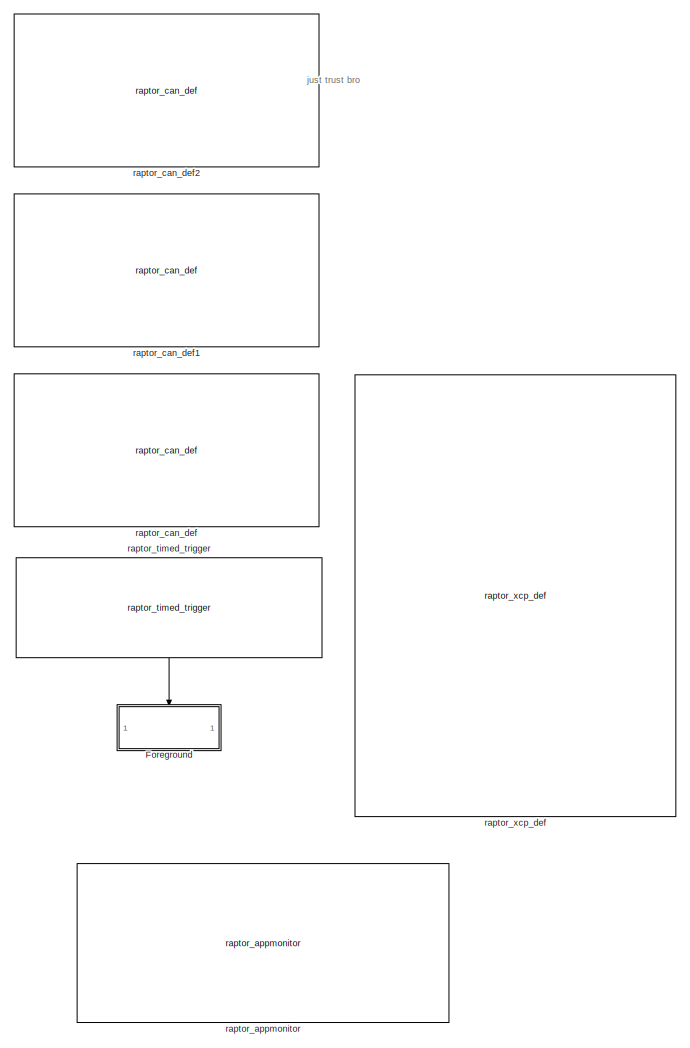
[diagram: root canvas - part 1/2, right side, full height]
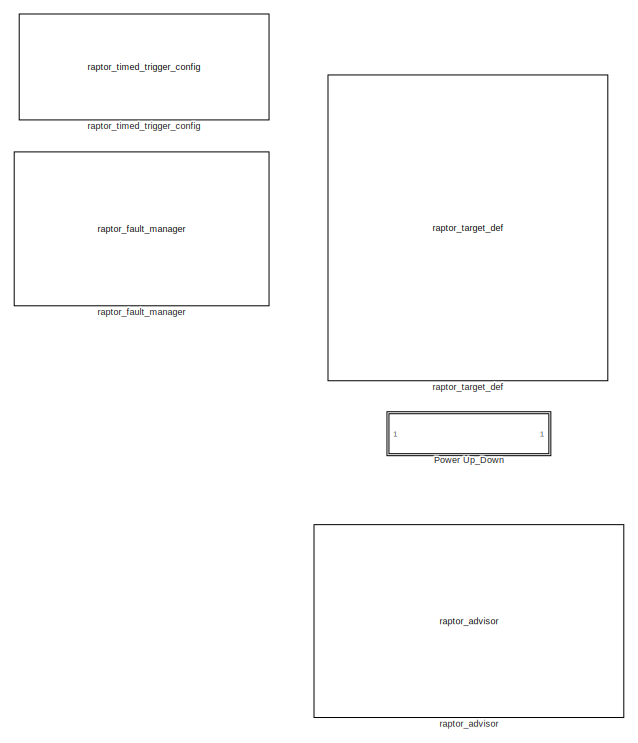
[diagram: root canvas - part 2/2, middle left region]
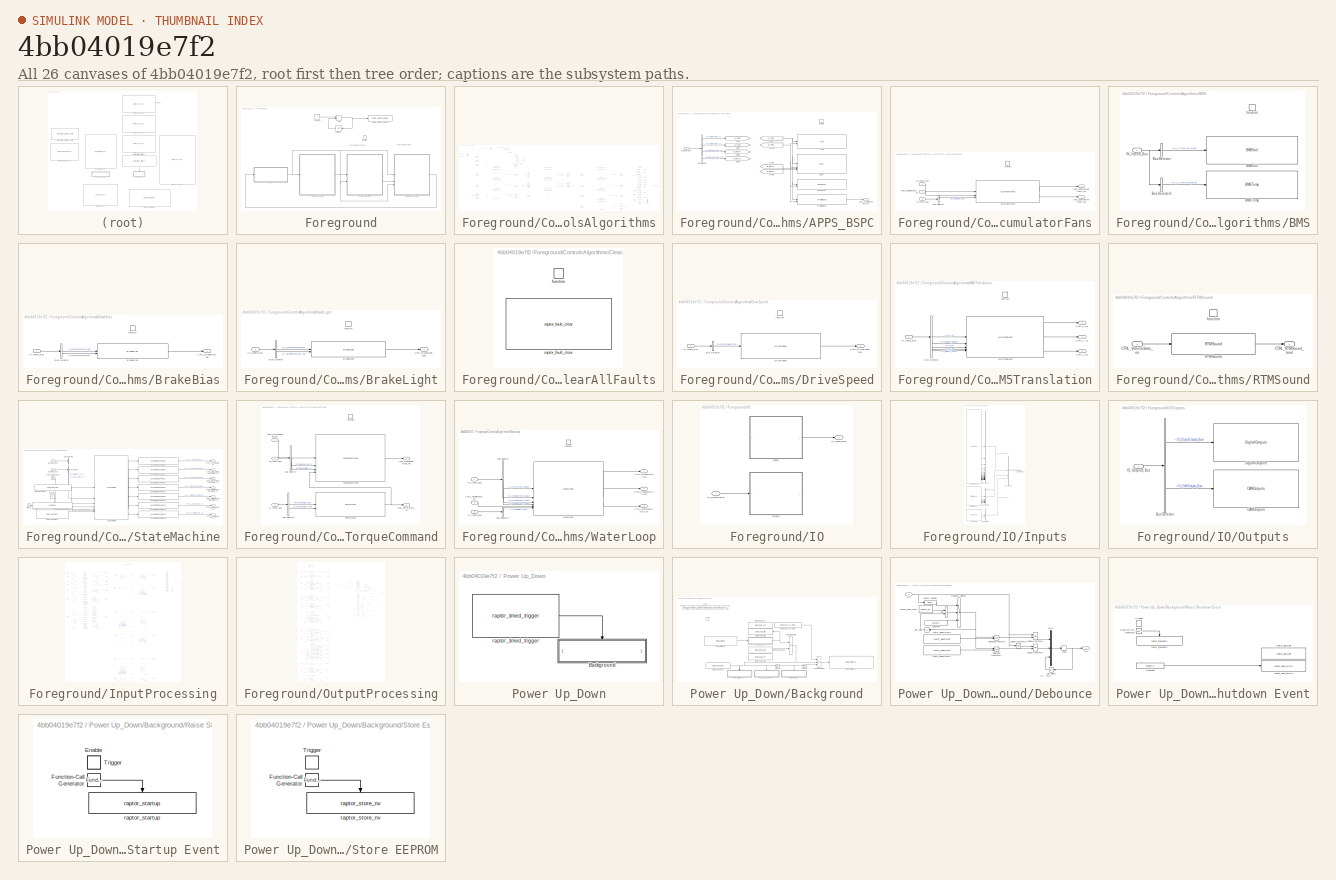
[diagram: thumbnail index - all 26 canvases of the model, root first then tree order]
MODEL slx_4bb04019e7f2
KIND model
CONFIG AbsTol = auto
CONFIG EnableMultiTasking = on
CONFIG FixedStep = 0.01
CONFIG InitFcn = try, model_open; catch, end
CONFIG MaxStep = auto
CONFIG MinStep = auto
CONFIG PreLoadFcn = try, model_open; catch, disp('Error occurred while executing model pre-load callback: model_open.m'); disp('Please assure that the MATLAB working directory is set to the model directory before opening.'); end
CONFIG RelTol = 1e-3
CONFIG SampleTimeConstraint = Unconstrained
CONFIG SolverName = FixedStepDiscrete
CONFIG StartTime = 0.0
CONFIG StopTime = 3600
BLOCK [SubSystem] Foreground
  RTWSystemCode = Nonreusable function
  TreatAsAtomicUnit = on
BLOCK [Sum] Foreground/Add
  Commented = on
  IconShape = rectangular
BLOCK [Constant] Foreground/Constant
  Commented = on
BLOCK [SubSystem] Foreground/ControlsAlgorithms
BLOCK [SubSystem] Foreground/ControlsAlgorithms/APPS_BSPC
  TreatAsAtomicUnit = on
BLOCK [Reference] Foreground/ControlsAlgorithms/APPS_BSPC/APPS  REF=APPS_BSPC/APPS
  SourceBlock = APPS_BSPC/APPS
  SourceType = SubSystem
BLOCK [Reference] Foreground/ControlsAlgorithms/APPS_BSPC/BSPC  REF=APPS_BSPC/BSPC
  SourceBlock = APPS_BSPC/BSPC
  SourceType = SubSystem
BLOCK [Reference] Foreground/ControlsAlgorithms/APPS_BSPC/BSPCReset  REF=APPS_BSPC/BSPCReset
  SourceBlock = APPS_BSPC/BSPCReset
  SourceType = SubSystem
BLOCK [BusSelector] Foreground/ControlsAlgorithms/APPS_BSPC/Bus Selector
  OutputSignals = IN_ThrottlePosition_Bus.IN_ThrottlePosition1_pct,IN_ThrottlePosition_Bus.IN_ThrottlePosition2_pct,IN_BrakePressure_Bus.IN_BrakePressureF_psi,IN_BrakePressure_Bus.IN_BrakePressureR_psi
BLOCK [Outport] Foreground/ControlsAlgorithms/APPS_BSPC/CTRL_ThrottlePosition_pct
BLOCK [From] Foreground/ControlsAlgorithms/APPS_BSPC/From
  GotoTag = IN_ThrottlePosition1_pct
BLOCK [From] Foreground/ControlsAlgorithms/APPS_BSPC/From1
  GotoTag = IN_ThrottlePosition2_pct
BLOCK [From] Foreground/ControlsAlgorithms/APPS_BSPC/From2
  GotoTag = IN_BrakePressureF_psi
BLOCK [From] Foreground/ControlsAlgorithms/APPS_BSPC/From3
  GotoTag = IN_BrakePressureR_psi
BLOCK [Goto] Foreground/ControlsAlgorithms/APPS_BSPC/Goto
  GotoTag = IN_ThrottlePosition1_pct
BLOCK [Goto] Foreground/ControlsAlgorithms/APPS_BSPC/Goto1
  GotoTag = IN_ThrottlePosition2_pct
BLOCK [Goto] Foreground/ControlsAlgorithms/APPS_BSPC/Goto2
  GotoTag = IN_BrakePressureF_psi
BLOCK [Goto] Foreground/ControlsAlgorithms/APPS_BSPC/Goto3
  GotoTag = IN_BrakePressureR_psi
BLOCK [Inport] Foreground/ControlsAlgorithms/APPS_BSPC/IN_Inputs_Bus
BLOCK [Reference] Foreground/ControlsAlgorithms/APPS_BSPC/ThrottleSignal  REF=APPS_BSPC/ThrottleSignal
  SourceBlock = APPS_BSPC/ThrottleSignal
  SourceType = SubSystem
BLOCK [TriggerPort] Foreground/ControlsAlgorithms/APPS_BSPC/function
  StatesWhenEnabling = held
  TriggerType = function-call
  VariantControl = (inherit)
BLOCK [SubSystem] Foreground/ControlsAlgorithms/AccumulatorFans
  Commented = on
  TreatAsAtomicUnit = on
BLOCK [Reference] Foreground/ControlsAlgorithms/AccumulatorFans/AccumulatorFans  REF=Cooling/AccumulatorFans
  SourceBlock = Cooling/AccumulatorFans
  SourceType = SubSystem
BLOCK [BusSelector] Foreground/ControlsAlgorithms/AccumulatorFans/Bus Selector
  OutputSignals = IO_DigitalInputs_Bus.IO_CoolSwitch_bool
BLOCK [Outport] Foreground/ControlsAlgorithms/AccumulatorFans/CTRL_SegmentHalf1Duty_pct
BLOCK [Outport] Foreground/ControlsAlgorithms/AccumulatorFans/CTRL_SegmentHalf2Duty_pct
  Port = 2
BLOCK [Inport] Foreground/ControlsAlgorithms/AccumulatorFans/CTRL_VehicleState_en
  Port = 2
BLOCK [Inport] Foreground/ControlsAlgorithms/AccumulatorFans/IN_Inputs_Bus
BLOCK [Inport] Foreground/ControlsAlgorithms/AccumulatorFans/IO_Inputs_Bus
  Port = 3
BLOCK [TriggerPort] Foreground/ControlsAlgorithms/AccumulatorFans/function
  StatesWhenEnabling = held
  TriggerType = function-call
  VariantControl = (inherit)
BLOCK [SubSystem] Foreground/ControlsAlgorithms/BMS
  TreatAsAtomicUnit = on
BLOCK [Reference] Foreground/ControlsAlgorithms/BMS/BMSTemp  REF=BMS/BMSTemp
  SourceBlock = BMS/BMSTemp
  SourceType = SubSystem
BLOCK [Reference] Foreground/ControlsAlgorithms/BMS/BMSVolt  REF=BMS/BMSVolt
  SourceBlock = BMS/BMSVolt
  SourceType = SubSystem
BLOCK [BusSelector] Foreground/ControlsAlgorithms/BMS/Bus Selector
  OutputSignals = IN_STMMVolt_Bus
BLOCK [BusSelector] Foreground/ControlsAlgorithms/BMS/Bus Selector1
  OutputSignals = IN_STMMTemp_Bus
BLOCK [Inport] Foreground/ControlsAlgorithms/BMS/IN_Inputs_Bus
BLOCK [TriggerPort] Foreground/ControlsAlgorithms/BMS/function
  StatesWhenEnabling = held
  TriggerType = function-call
  VariantControl = (inherit)
BLOCK [SubSystem] Foreground/ControlsAlgorithms/BrakeBias
  TreatAsAtomicUnit = on
BLOCK [Reference] Foreground/ControlsAlgorithms/BrakeBias/BrakeBias  REF=Brakes/BrakeBias
  SourceBlock = Brakes/BrakeBias
  SourceType = SubSystem
BLOCK [BusSelector] Foreground/ControlsAlgorithms/BrakeBias/Bus Selector
  OutputSignals = IN_BrakePressure_Bus.IN_BrakePressureF_psi,IN_BrakePressure_Bus.IN_BrakePressureR_psi
BLOCK [Outport] Foreground/ControlsAlgorithms/BrakeBias/CTRL_BrakeBias_pct
BLOCK [Inport] Foreground/ControlsAlgorithms/BrakeBias/IN_Inputs_Bus
BLOCK [TriggerPort] Foreground/ControlsAlgorithms/BrakeBias/function
  StatesWhenEnabling = held
  TriggerType = function-call
  VariantControl = (inherit)
BLOCK [SubSystem] Foreground/ControlsAlgorithms/BrakeLight
  TreatAsAtomicUnit = on
BLOCK [Reference] Foreground/ControlsAlgorithms/BrakeLight/BrakeLight  REF=Brakes/BrakeLight
  SourceBlock = Brakes/BrakeLight
  SourceType = SubSystem
BLOCK [BusSelector] Foreground/ControlsAlgorithms/BrakeLight/Bus Selector
  OutputSignals = IN_BrakePressure_Bus.IN_BrakePressureF_psi,IN_BrakePressure_Bus.IN_BrakePressureR_psi
BLOCK [Outport] Foreground/ControlsAlgorithms/BrakeLight/CTRL_BrakeLight_bool
BLOCK [Inport] Foreground/ControlsAlgorithms/BrakeLight/IN_Inputs_Bus
BLOCK [TriggerPort] Foreground/ControlsAlgorithms/BrakeLight/function
  StatesWhenEnabling = held
  TriggerType = function-call
  VariantControl = (inherit)
BLOCK [BusCreator] Foreground/ControlsAlgorithms/Bus Creator
  DisplayOption = bar
  InheritFromInputs = on
  Inputs = 22
BLOCK [Outport] Foreground/ControlsAlgorithms/CTRL_Controls_Bus
BLOCK [SubSystem] Foreground/ControlsAlgorithms/ClearAllFaults
  TreatAsAtomicUnit = on
BLOCK [TriggerPort] Foreground/ControlsAlgorithms/ClearAllFaults/function
  StatesWhenEnabling = held
  TriggerType = function-call
  VariantControl = (inherit)
BLOCK [Reference] Foreground/ControlsAlgorithms/ClearAllFaults/raptor_fault_clear  REF=Raptor_lib/Faults/raptor_fault_clear
  SourceBlock = Raptor_lib/Faults/raptor_fault_clear
  SourceProductName = Raptor
  SourceType = Clear Faults
BLOCK [SubSystem] Foreground/ControlsAlgorithms/DriveSpeed
  TreatAsAtomicUnit = on
BLOCK [BusSelector] Foreground/ControlsAlgorithms/DriveSpeed/Bus Selector
  OutputSignals = IN_PM100DX_Bus.IN_MotorSpeed_rpm
BLOCK [Outport] Foreground/ControlsAlgorithms/DriveSpeed/CTRL_DriveSpeed_mph
BLOCK [Reference] Foreground/ControlsAlgorithms/DriveSpeed/DriveSpeed  REF=VehicleDynamics/DriveSpeed
  SourceBlock = VehicleDynamics/DriveSpeed
  SourceType = SubSystem
BLOCK [Inport] Foreground/ControlsAlgorithms/DriveSpeed/IN_Inputs_Bus
BLOCK [TriggerPort] Foreground/ControlsAlgorithms/DriveSpeed/function
  StatesWhenEnabling = held
  TriggerType = function-call
  VariantControl = (inherit)
BLOCK [From] Foreground/ControlsAlgorithms/From
  GotoTag = IO_Inputs_Bus
BLOCK [From] Foreground/ControlsAlgorithms/From1
  GotoTag = IN_Inputs_Bus
BLOCK [From] Foreground/ControlsAlgorithms/From10
  GotoTag = IO_Inputs_Bus
BLOCK [From] Foreground/ControlsAlgorithms/From11
  GotoTag = IN_Inputs_Bus
BLOCK [From] Foreground/ControlsAlgorithms/From12
  GotoTag = CTRL_VehicleState_en
BLOCK [From] Foreground/ControlsAlgorithms/From13
  GotoTag = IO_Inputs_Bus
BLOCK [From] Foreground/ControlsAlgorithms/From14
  GotoTag = CTRL_VehicleState_en
BLOCK [From] Foreground/ControlsAlgorithms/From15
  GotoTag = CTRL_DischargeContactorState_en
BLOCK [From] Foreground/ControlsAlgorithms/From16
  GotoTag = CTRL_PrechargeContactorState_en
BLOCK [From] Foreground/ControlsAlgorithms/From17
  GotoTag = CTRL_MainPlusContactorState_en
BLOCK [From] Foreground/ControlsAlgorithms/From18
  GotoTag = CTRL_MainMinusContactorState_en
BLOCK [From] Foreground/ControlsAlgorithms/From19
  GotoTag = CTRL_DCDCEnable_en
BLOCK [From] Foreground/ControlsAlgorithms/From2
  GotoTag = IN_Inputs_Bus
BLOCK [From] Foreground/ControlsAlgorithms/From20
  GotoTag = CTRL_InverterEnable_en
BLOCK [From] Foreground/ControlsAlgorithms/From21
  GotoTag = CTRL_ThrottlePosition_pct
BLOCK [From] Foreground/ControlsAlgorithms/From22
  GotoTag = CTRL_TorqueCommand_Nm
BLOCK [From] Foreground/ControlsAlgorithms/From23
  GotoTag = CTRL_BrakeBias_pct
BLOCK [From] Foreground/ControlsAlgorithms/From24
  GotoTag = CTRL_BrakeLight_bool
BLOCK [From] Foreground/ControlsAlgorithms/From25
  GotoTag = CTRL_RTMSound_bool
BLOCK [From] Foreground/ControlsAlgorithms/From26
  GotoTag = CTRL_SegmentHalf1Duty_pct
BLOCK [From] Foreground/ControlsAlgorithms/From27
  GotoTag = CTRL_SegmentHalf2Duty_pct
BLOCK [From] Foreground/ControlsAlgorithms/From28
  GotoTag = CTRL_RadFanLDuty_pct
BLOCK [From] Foreground/ControlsAlgorithms/From29
  GotoTag = CTRL_RadFanRDuty_pct
BLOCK [From] Foreground/ControlsAlgorithms/From3
  GotoTag = IN_Inputs_Bus
BLOCK [From] Foreground/ControlsAlgorithms/From30
  GotoTag = CTRL_WaterPumpDuty_pct
BLOCK [From] Foreground/ControlsAlgorithms/From31
  GotoTag = IN_Inputs_Bus
BLOCK [From] Foreground/ControlsAlgorithms/From32
  GotoTag = IN_Inputs_Bus
BLOCK [From] Foreground/ControlsAlgorithms/From33
  GotoTag = CTRL_DriveSpeed_mph
BLOCK [From] Foreground/ControlsAlgorithms/From34
  GotoTag = IN_Inputs_Bus
BLOCK [From] Foreground/ControlsAlgorithms/From35
  GotoTag = IO_Inputs_Bus
BLOCK [From] Foreground/ControlsAlgorithms/From36
  GotoTag = CTRL_ShifterState_en
BLOCK [From] Foreground/ControlsAlgorithms/From37
  GotoTag = IN_Inputs_Bus
BLOCK [From] Foreground/ControlsAlgorithms/From38
  GotoTag = CTRL_Ax_g
BLOCK [From] Foreground/ControlsAlgorithms/From39
  GotoTag = CTRL_Ay_g
BLOCK [From] Foreground/ControlsAlgorithms/From4
  GotoTag = IN_Inputs_Bus
BLOCK [From] Foreground/ControlsAlgorithms/From40
  GotoTag = CTRL_Az_g
BLOCK [From] Foreground/ControlsAlgorithms/From5
  GotoTag = IN_Inputs_Bus
BLOCK [From] Foreground/ControlsAlgorithms/From6
  GotoTag = CTRL_VehicleState_en
BLOCK [From] Foreground/ControlsAlgorithms/From7
  GotoTag = CTRL_VehicleState_en
BLOCK [From] Foreground/ControlsAlgorithms/From8
  GotoTag = CTRL_ThrottlePosition_pct
BLOCK [From] Foreground/ControlsAlgorithms/From9
  GotoTag = CTRL_BrakeLight_bool
BLOCK [Reference] Foreground/ControlsAlgorithms/Function-Call Generator  REF=simulink/Ports &
Subsystems/Function-Call
Generator
  SourceBlock = simulink/Ports &\nSubsystems/Function-Call\nGenerator
  SourceType = Function-Call Generator
BLOCK [Goto] Foreground/ControlsAlgorithms/Goto
  GotoTag = IN_Inputs_Bus
BLOCK [Goto] Foreground/ControlsAlgorithms/Goto1
  GotoTag = IO_Inputs_Bus
BLOCK [Goto] Foreground/ControlsAlgorithms/Goto10
  GotoTag = CTRL_InverterEnable_en
BLOCK [Goto] Foreground/ControlsAlgorithms/Goto11
  GotoTag = CTRL_TorqueCommand_Nm
BLOCK [Goto] Foreground/ControlsAlgorithms/Goto12
  GotoTag = CTRL_BrakeBias_pct
BLOCK [Goto] Foreground/ControlsAlgorithms/Goto13
  GotoTag = CTRL_RTMSound_bool
BLOCK [Goto] Foreground/ControlsAlgorithms/Goto14
  GotoTag = CTRL_SegmentHalf1Duty_pct
BLOCK [Goto] Foreground/ControlsAlgorithms/Goto15
  GotoTag = CTRL_SegmentHalf2Duty_pct
BLOCK [Goto] Foreground/ControlsAlgorithms/Goto16
  GotoTag = CTRL_RadFanLDuty_pct
BLOCK [Goto] Foreground/ControlsAlgorithms/Goto17
  GotoTag = CTRL_RadFanRDuty_pct
BLOCK [Goto] Foreground/ControlsAlgorithms/Goto18
  GotoTag = CTRL_WaterPumpDuty_pct
BLOCK [Goto] Foreground/ControlsAlgorithms/Goto19
  GotoTag = CTRL_DriveSpeed_mph
BLOCK [Goto] Foreground/ControlsAlgorithms/Goto2
  GotoTag = CTRL_VehicleState_en
BLOCK [Goto] Foreground/ControlsAlgorithms/Goto20
  GotoTag = CTRL_ShifterState_en
BLOCK [Goto] Foreground/ControlsAlgorithms/Goto21
  GotoTag = CTRL_Ax_g
BLOCK [Goto] Foreground/ControlsAlgorithms/Goto22
  GotoTag = CTRL_Ay_g
BLOCK [Goto] Foreground/ControlsAlgorithms/Goto23
  GotoTag = CTRL_Az_g
BLOCK [Goto] Foreground/ControlsAlgorithms/Goto3
  GotoTag = CTRL_BrakeLight_bool
BLOCK [Goto] Foreground/ControlsAlgorithms/Goto4
  GotoTag = CTRL_ThrottlePosition_pct
BLOCK [Goto] Foreground/ControlsAlgorithms/Goto5
  GotoTag = CTRL_DischargeContactorState_en
BLOCK [Goto] Foreground/ControlsAlgorithms/Goto6
  GotoTag = CTRL_PrechargeContactorState_en
BLOCK [Goto] Foreground/ControlsAlgorithms/Goto7
  GotoTag = CTRL_MainPlusContactorState_en
BLOCK [Goto] Foreground/ControlsAlgorithms/Goto8
  GotoTag = CTRL_MainMinusContactorState_en
BLOCK [Goto] Foreground/ControlsAlgorithms/Goto9
  GotoTag = CTRL_DCDCEnable_en
BLOCK [Ground] Foreground/ControlsAlgorithms/Ground
BLOCK [Inport] Foreground/ControlsAlgorithms/IN_Inputs_Bus
  Port = 2
BLOCK [Inport] Foreground/ControlsAlgorithms/IO_Inputs_Bus
BLOCK [SubSystem] Foreground/ControlsAlgorithms/MM5Translation
  TreatAsAtomicUnit = on
BLOCK [BusSelector] Foreground/ControlsAlgorithms/MM5Translation/Bus Selector
  OutputSignals = IN_MM5_Bus.IN_Ay_g,IN_MM5_Bus.IN_YawRate_degps,IN_MM5_Bus.IN_Ax_g,IN_MM5_Bus.IN_RollRate_degps,IN_MM5_Bus.IN_Az_g
BLOCK [Outport] Foreground/ControlsAlgorithms/MM5Translation/CTRL_Ax_g
BLOCK [Outport] Foreground/ControlsAlgorithms/MM5Translation/CTRL_Ay_g
  Port = 2
BLOCK [Outport] Foreground/ControlsAlgorithms/MM5Translation/CTRL_Az_g
  Port = 3
BLOCK [Reference] Foreground/ControlsAlgorithms/MM5Translation/IMUTranslator  REF=VehicleDynamics/IMUTranslator
  SourceBlock = VehicleDynamics/IMUTranslator
  SourceType = SubSystem
BLOCK [Inport] Foreground/ControlsAlgorithms/MM5Translation/IN_Inputs_Bus
BLOCK [TriggerPort] Foreground/ControlsAlgorithms/MM5Translation/function
  StatesWhenEnabling = held
  TriggerType = function-call
  VariantControl = (inherit)
BLOCK [Reference] Foreground/ControlsAlgorithms/OverMeas  REF=Utilities/OverMeas
  SourceBlock = Utilities/OverMeas
BLOCK [SubSystem] Foreground/ControlsAlgorithms/RTMSound
  TreatAsAtomicUnit = on
BLOCK [Outport] Foreground/ControlsAlgorithms/RTMSound/CTRL_RTMSound_bool
BLOCK [Inport] Foreground/ControlsAlgorithms/RTMSound/CTRL_VehicleState_en
BLOCK [Reference] Foreground/ControlsAlgorithms/RTMSound/RTMSound  REF=StateMachine/RTMSound
  SourceBlock = StateMachine/RTMSound
  SourceType = SubSystem
BLOCK [TriggerPort] Foreground/ControlsAlgorithms/RTMSound/function
  StatesWhenEnabling = held
  TriggerType = function-call
  VariantControl = (inherit)
BLOCK [SubSystem] Foreground/ControlsAlgorithms/StateMachine
BLOCK [BusSelector] Foreground/ControlsAlgorithms/StateMachine/Bus Selector
  OutputSignals = IN_PM100DX_Bus.IN_DCBusVoltage_V
BLOCK [BusSelector] Foreground/ControlsAlgorithms/StateMachine/Bus Selector2
  OutputSignals = IO_DigitalInputs_Bus.IO_StartSwitch_bool
BLOCK [Inport] Foreground/ControlsAlgorithms/StateMachine/CTRL_BrakeLight_bool
  Port = 3
BLOCK [Outport] Foreground/ControlsAlgorithms/StateMachine/CTRL_DCDCEnable_en
  Port = 6
BLOCK [Outport] Foreground/ControlsAlgorithms/StateMachine/CTRL_DischargeContactorState_en
  Port = 2
BLOCK [Outport] Foreground/ControlsAlgorithms/StateMachine/CTRL_InverterEnable_en
  Port = 7
BLOCK [Outport] Foreground/ControlsAlgorithms/StateMachine/CTRL_MainMinusContactorState_en
  Port = 5
BLOCK [Outport] Foreground/ControlsAlgorithms/StateMachine/CTRL_MainPlusContactorState_en
  Port = 4
BLOCK [Outport] Foreground/ControlsAlgorithms/StateMachine/CTRL_PrechargeContactorState_en
  Port = 3
BLOCK [Outport] Foreground/ControlsAlgorithms/StateMachine/CTRL_VehicleState_en
BLOCK [Constant] Foreground/ControlsAlgorithms/StateMachine/Constant
  Value = dt
BLOCK [Reference] Foreground/ControlsAlgorithms/StateMachine/ContactorState  REF=StateMachine/ContactorState
  SourceBlock = StateMachine/ContactorState
  SourceType = SubSystem
BLOCK [Reference] Foreground/ControlsAlgorithms/StateMachine/EnumeratedOverMeas  REF=Utilities/EnumeratedOverMeas
  SourceBlock = Utilities/EnumeratedOverMeas
BLOCK [Reference] Foreground/ControlsAlgorithms/StateMachine/EnumeratedOverMeas1  REF=Utilities/EnumeratedOverMeas
  SourceBlock = Utilities/EnumeratedOverMeas
BLOCK [Reference] Foreground/ControlsAlgorithms/StateMachine/EnumeratedOverMeas2  REF=Utilities/EnumeratedOverMeas
  SourceBlock = Utilities/EnumeratedOverMeas
BLOCK [Reference] Foreground/ControlsAlgorithms/StateMachine/EnumeratedOverMeas3  REF=Utilities/EnumeratedOverMeas
  SourceBlock = Utilities/EnumeratedOverMeas
BLOCK [Reference] Foreground/ControlsAlgorithms/StateMachine/EnumeratedOverMeas4  REF=Utilities/EnumeratedOverMeas
  SourceBlock = Utilities/EnumeratedOverMeas
BLOCK [Reference] Foreground/ControlsAlgorithms/StateMachine/EnumeratedOverMeas5  REF=Utilities/EnumeratedOverMeas
  SourceBlock = Utilities/EnumeratedOverMeas
BLOCK [Reference] Foreground/ControlsAlgorithms/StateMachine/EnumeratedOverMeas6  REF=Utilities/EnumeratedOverMeas
  SourceBlock = Utilities/EnumeratedOverMeas
BLOCK [Ground] Foreground/ControlsAlgorithms/StateMachine/Ground
BLOCK [Inport] Foreground/ControlsAlgorithms/StateMachine/IN_Inputs_Bus
BLOCK [Inport] Foreground/ControlsAlgorithms/StateMachine/IO_Inputs_Bus
  Port = 2
BLOCK [Reference] Foreground/ControlsAlgorithms/StateMachine/OverMeas  REF=Utilities/OverMeas
  SourceBlock = Utilities/OverMeas
BLOCK [Reference] Foreground/ControlsAlgorithms/StateMachine/raptor_adjustment  REF=Raptor_lib/Data Storage/raptor_adjustment
  SourceBlock = Raptor_lib/Data Storage/raptor_adjustment
  SourceProductName = Raptor
  SourceType = Adjustment
BLOCK [Reference] Foreground/ControlsAlgorithms/StateMachine/raptor_fault_action  REF=Raptor_lib/Faults/raptor_fault_action
  SourceBlock = Raptor_lib/Faults/raptor_fault_action
  SourceProductName = Raptor
  SourceType = Fault Action
BLOCK [SubSystem] Foreground/ControlsAlgorithms/TorqueCommand
  TreatAsAtomicUnit = on
BLOCK [BusSelector] Foreground/ControlsAlgorithms/TorqueCommand/Bus Selector
  OutputSignals = IN_PM100DX_Bus.IN_DCBusCurrent_A,IN_PM100DX_Bus.IN_DCBusVoltage_V
BLOCK [BusSelector] Foreground/ControlsAlgorithms/TorqueCommand/Bus Selector1
  OutputSignals = IO_DigitalInputs_Bus.IO_PwrUpSwitch_bool,IO_DigitalInputs_Bus.IO_PwrDownSwitch_bool
BLOCK [Outport] Foreground/ControlsAlgorithms/TorqueCommand/CTRL_ShifterState_en
  Port = 2
BLOCK [Inport] Foreground/ControlsAlgorithms/TorqueCommand/CTRL_ThrottlePosition_pct
BLOCK [Outport] Foreground/ControlsAlgorithms/TorqueCommand/CTRL_TorqueCommand_Nm
BLOCK [Inport] Foreground/ControlsAlgorithms/TorqueCommand/IN_Inputs_Bus
  Port = 2
BLOCK [Inport] Foreground/ControlsAlgorithms/TorqueCommand/IO_Inputs_Bus
  Port = 3
BLOCK [Reference] Foreground/ControlsAlgorithms/TorqueCommand/ShifterState  REF=TorqueCommand/ShifterState
  SourceBlock = TorqueCommand/ShifterState
  SourceType = SubSystem
BLOCK [Reference] Foreground/ControlsAlgorithms/TorqueCommand/TorqueCommand  REF=TorqueCommand/TorqueCommand
  SourceBlock = TorqueCommand/TorqueCommand
  SourceType = SubSystem
BLOCK [TriggerPort] Foreground/ControlsAlgorithms/TorqueCommand/function
  StatesWhenEnabling = held
  TriggerType = function-call
  VariantControl = (inherit)
BLOCK [SubSystem] Foreground/ControlsAlgorithms/WaterLoop
  TreatAsAtomicUnit = on
BLOCK [BusSelector] Foreground/ControlsAlgorithms/WaterLoop/Bus Selector
  OutputSignals = IN_PM100DX_Bus.IN_MotorTemp_degC,IN_PM100DX_Bus.IN_ModuleATemp_degC,IN_PM100DX_Bus.IN_ModuleBTemp_degC,IN_PM100DX_Bus.IN_ModuleCTemp_degC
BLOCK [BusSelector] Foreground/ControlsAlgorithms/WaterLoop/Bus Selector1
  OutputSignals = IO_DigitalInputs_Bus.IO_CoolSwitch_bool
BLOCK [Outport] Foreground/ControlsAlgorithms/WaterLoop/CTRL_RadFanLDuty_pct
BLOCK [Outport] Foreground/ControlsAlgorithms/WaterLoop/CTRL_RadFanRDuty_pct
  Port = 2
BLOCK [Inport] Foreground/ControlsAlgorithms/WaterLoop/CTRL_VehicleState_en
  Port = 2
BLOCK [Outport] Foreground/ControlsAlgorithms/WaterLoop/CTRL_WaterPumpDuty_pct
  Port = 3
BLOCK [Inport] Foreground/ControlsAlgorithms/WaterLoop/IN_Inputs_Bus
BLOCK [Inport] Foreground/ControlsAlgorithms/WaterLoop/IO_Inputs_Bus
  Port = 3
BLOCK [Reference] Foreground/ControlsAlgorithms/WaterLoop/WaterLoop  REF=Cooling/WaterLoop
  SourceBlock = Cooling/WaterLoop
  SourceType = SubSystem
BLOCK [TriggerPort] Foreground/ControlsAlgorithms/WaterLoop/function
  StatesWhenEnabling = held
  TriggerType = function-call
  VariantControl = (inherit)
BLOCK [Reference] Foreground/ControlsAlgorithms/raptor_function_call_collector  REF=Raptor_lib/Triggers/raptor_function_call_collector
  NameLocation = left
  SourceBlock = Raptor_lib/Triggers/raptor_function_call_collector
  SourceProductName = Raptor
  SourceType = Function Call Collector Block
BLOCK [Reference] Foreground/ControlsAlgorithms/raptor_function_call_collector1  REF=Raptor_lib/Triggers/raptor_function_call_collector
  NameLocation = left
  SourceBlock = Raptor_lib/Triggers/raptor_function_call_collector
  SourceProductName = Raptor
  SourceType = Function Call Collector Block
BLOCK [Reference] Foreground/ControlsAlgorithms/raptor_function_call_collector2  REF=Raptor_lib/Triggers/raptor_function_call_collector
  NameLocation = left
  SourceBlock = Raptor_lib/Triggers/raptor_function_call_collector
  SourceProductName = Raptor
  SourceType = Function Call Collector Block
BLOCK [Reference] Foreground/ControlsAlgorithms/raptor_function_call_collector3  REF=Raptor_lib/Triggers/raptor_function_call_collector
  NameLocation = left
  SourceBlock = Raptor_lib/Triggers/raptor_function_call_collector
  SourceProductName = Raptor
  SourceType = Function Call Collector Block
BLOCK [Reference] Foreground/ControlsAlgorithms/raptor_function_call_collector4  REF=Raptor_lib/Triggers/raptor_function_call_collector
  NameLocation = left
  SourceBlock = Raptor_lib/Triggers/raptor_function_call_collector
  SourceProductName = Raptor
  SourceType = Function Call Collector Block
BLOCK [Reference] Foreground/ControlsAlgorithms/raptor_function_call_collector5  REF=Raptor_lib/Triggers/raptor_function_call_collector
  NameLocation = left
  SourceBlock = Raptor_lib/Triggers/raptor_function_call_collector
  SourceProductName = Raptor
  SourceType = Function Call Collector Block
BLOCK [Reference] Foreground/ControlsAlgorithms/raptor_function_call_collector6  REF=Raptor_lib/Triggers/raptor_function_call_collector
  Commented = on
  NameLocation = left
  SourceBlock = Raptor_lib/Triggers/raptor_function_call_collector
  SourceProductName = Raptor
  SourceType = Function Call Collector Block
BLOCK [Reference] Foreground/ControlsAlgorithms/raptor_function_call_collector7  REF=Raptor_lib/Triggers/raptor_function_call_collector
  NameLocation = left
  SourceBlock = Raptor_lib/Triggers/raptor_function_call_collector
  SourceProductName = Raptor
  SourceType = Function Call Collector Block
BLOCK [Reference] Foreground/ControlsAlgorithms/raptor_function_call_collector8  REF=Raptor_lib/Triggers/raptor_function_call_collector
  NameLocation = left
  SourceBlock = Raptor_lib/Triggers/raptor_function_call_collector
  SourceProductName = Raptor
  SourceType = Function Call Collector Block
BLOCK [Reference] Foreground/ControlsAlgorithms/raptor_function_call_collector9  REF=Raptor_lib/Triggers/raptor_function_call_collector
  NameLocation = left
  SourceBlock = Raptor_lib/Triggers/raptor_function_call_collector
  SourceProductName = Raptor
  SourceType = Function Call Collector Block
BLOCK [SubSystem] Foreground/IO
BLOCK [Outport] Foreground/IO/IO_Inputs_Bus
BLOCK [Inport] Foreground/IO/IO_Outputs_Bus
BLOCK [SubSystem] Foreground/IO/Inputs
BLOCK [Reference] Foreground/IO/Inputs/AnalogInputs  REF=IO/AnalogInputs
  SourceBlock = IO/AnalogInputs
  SourceType = SubSystem
BLOCK [BusCreator] Foreground/IO/Inputs/Bus Creator
  DisplayOption = bar
  InheritFromInputs = on
  Inputs = 24
BLOCK [BusCreator] Foreground/IO/Inputs/Bus Creator1
  DisplayOption = bar
  InheritFromInputs = on
  Inputs = 3
BLOCK [BusCreator] Foreground/IO/Inputs/Bus Creator2
  DisplayOption = bar
  InheritFromInputs = on
  Inputs = 7
BLOCK [BusCreator] Foreground/IO/Inputs/Bus Creator3
  DisplayOption = bar
  InheritFromInputs = on
  Inputs = 2
BLOCK [Reference] Foreground/IO/Inputs/CANInputs  REF=IO/CANInputs
  SourceBlock = IO/CANInputs
  SourceType = SubSystem
BLOCK [Reference] Foreground/IO/Inputs/DigitalInputs  REF=IO/DigitalInputs
  SourceBlock = IO/DigitalInputs
  SourceType = SubSystem
BLOCK [Outport] Foreground/IO/Inputs/IO_Inputs_Bus
BLOCK [SubSystem] Foreground/IO/Outputs
BLOCK [BusSelector] Foreground/IO/Outputs/Bus Selector
  OutputSignals = IO_DigitalOutputs_Bus,IO_CANOutputs_Bus
BLOCK [Reference] Foreground/IO/Outputs/CANOutputs  REF=IO/CANOutputs
  SourceBlock = IO/CANOutputs
  SourceType = SubSystem
BLOCK [Reference] Foreground/IO/Outputs/DigitalOutputs  REF=IO/DigitalOutputs
  SourceBlock = IO/DigitalOutputs
  SourceType = SubSystem
BLOCK [Inport] Foreground/IO/Outputs/IO_Outputs_Bus
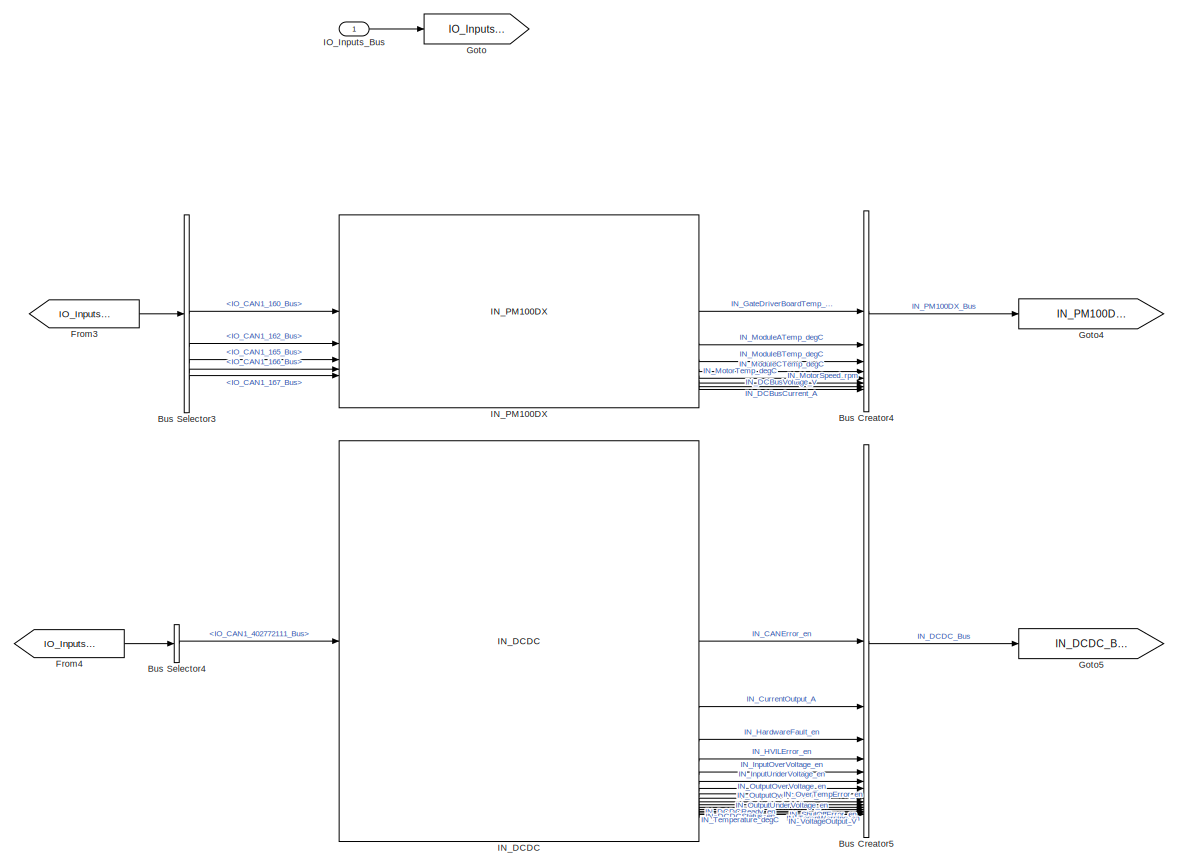
[diagram: Foreground/InputProcessing - part 1/8, top center region]
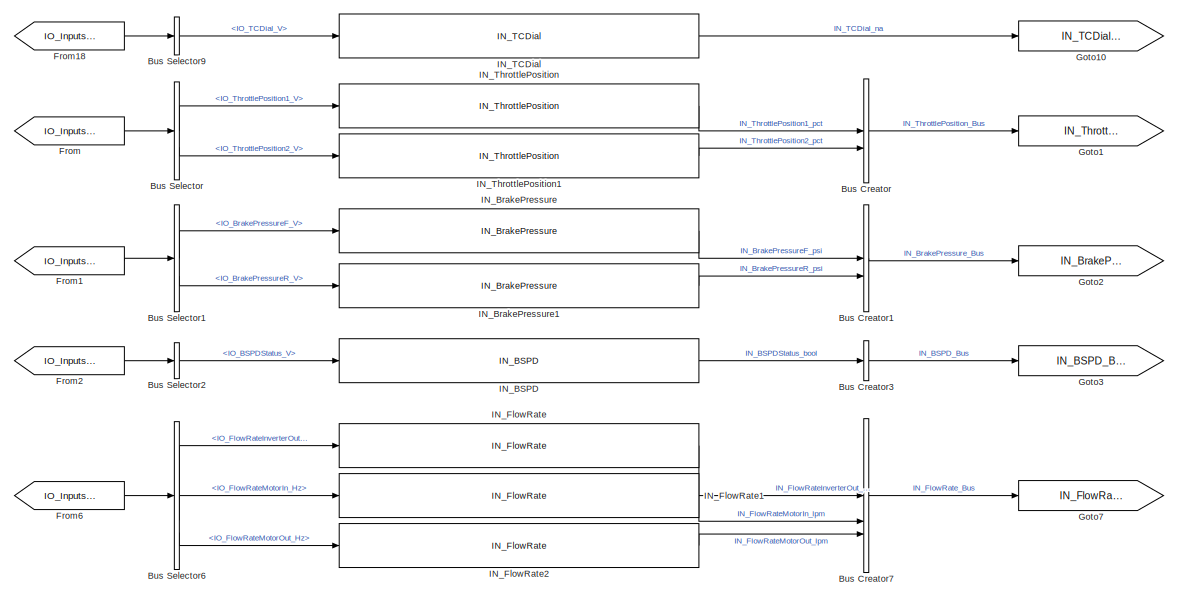
[diagram: Foreground/InputProcessing - part 2/8, top left region]
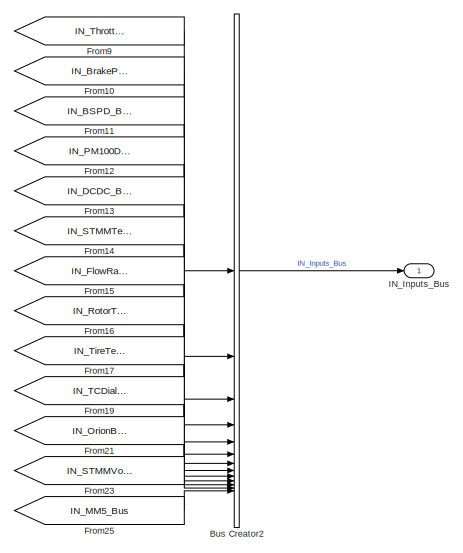
[diagram: Foreground/InputProcessing - part 3/8, top right region]
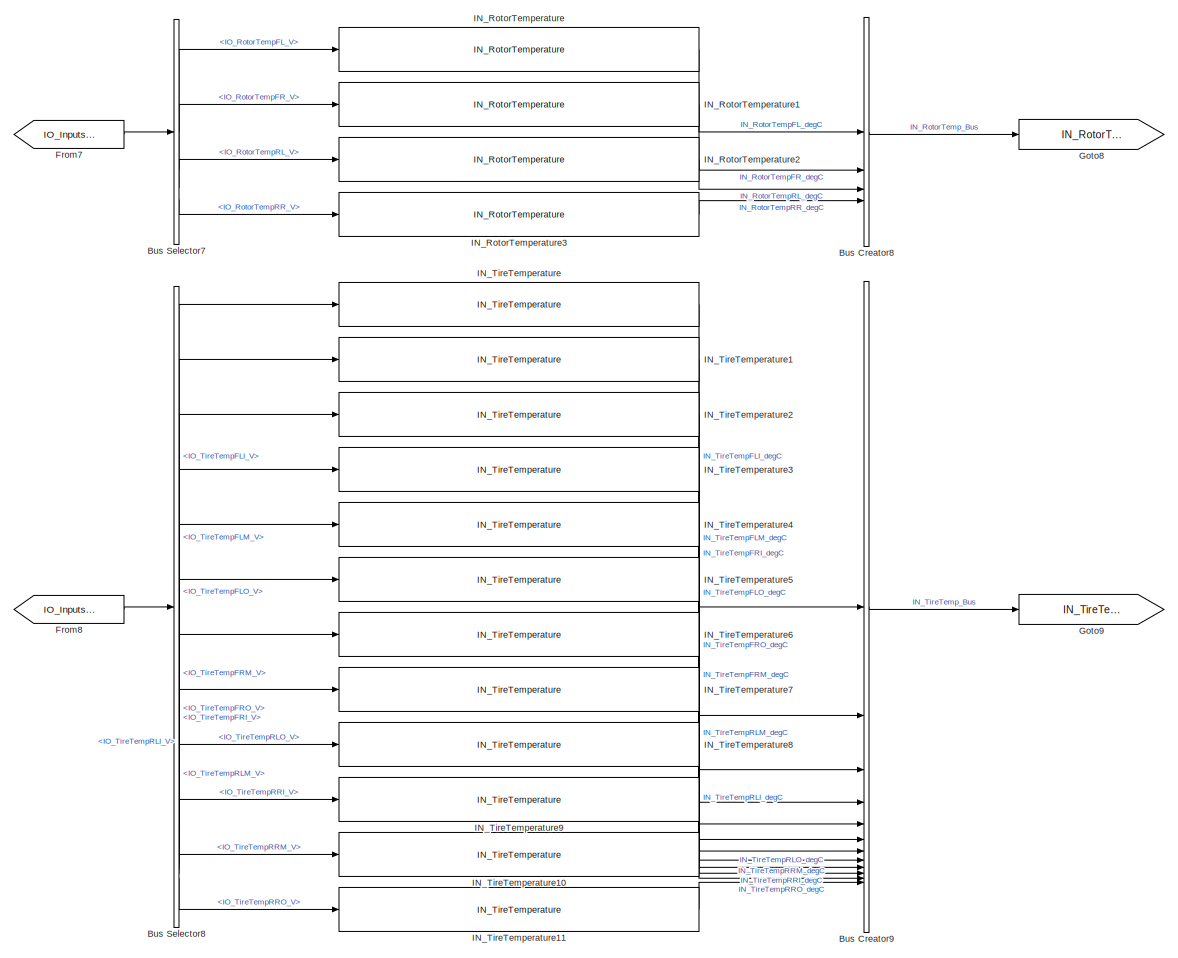
[diagram: Foreground/InputProcessing - part 4/8, middle left region]
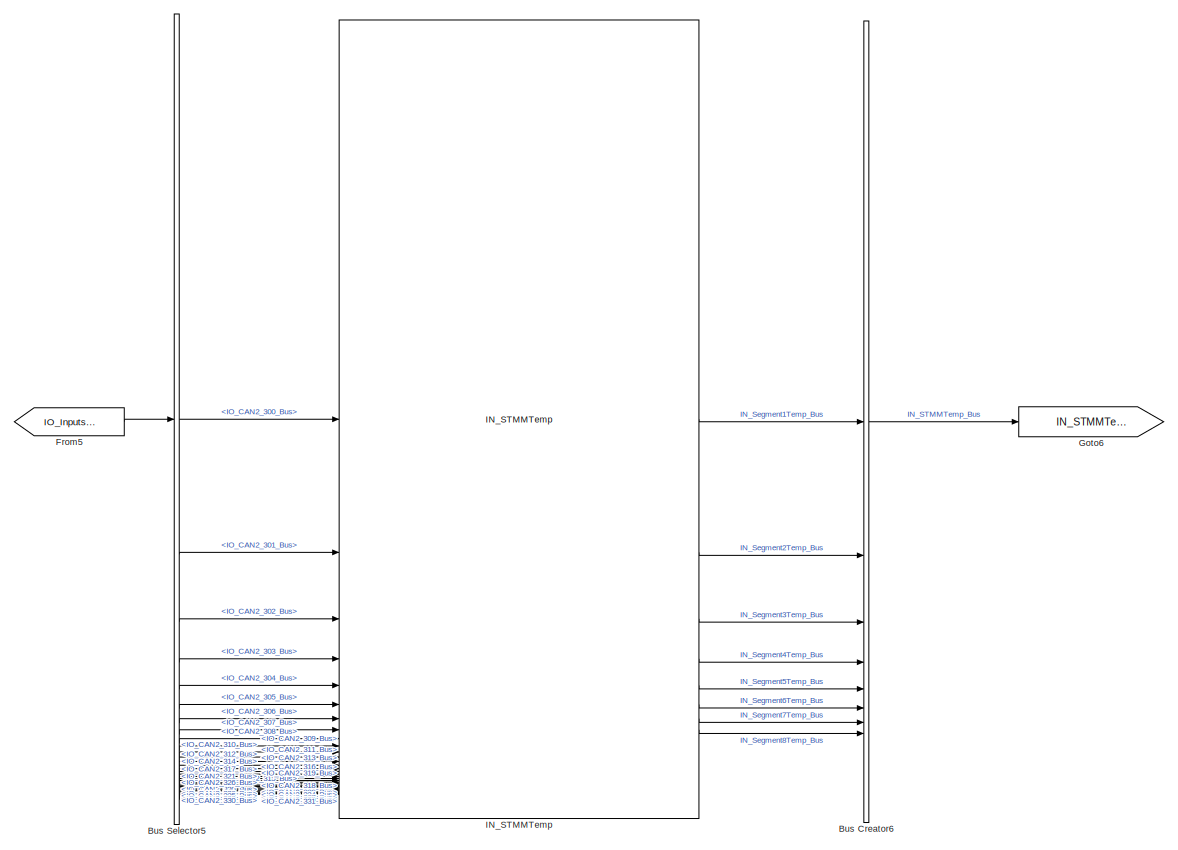
[diagram: Foreground/InputProcessing - part 5/8, central region]
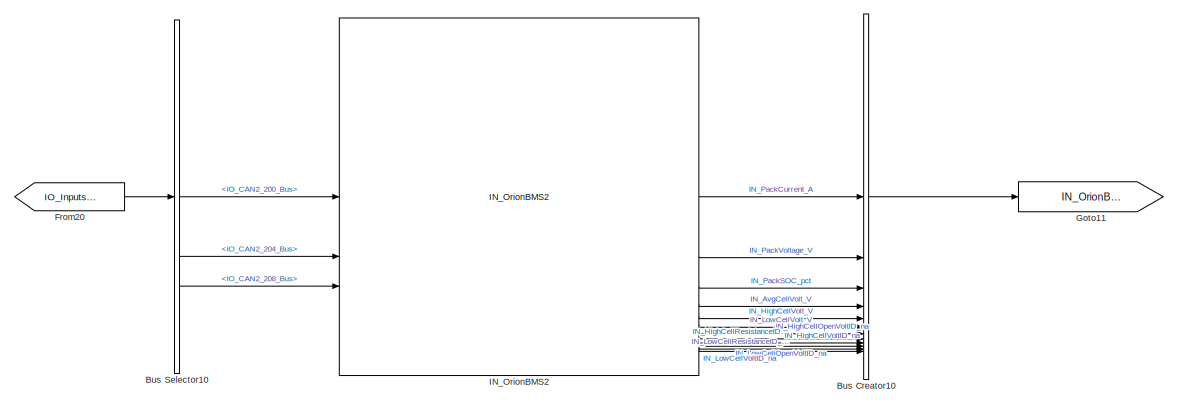
[diagram: Foreground/InputProcessing - part 6/8, central region]
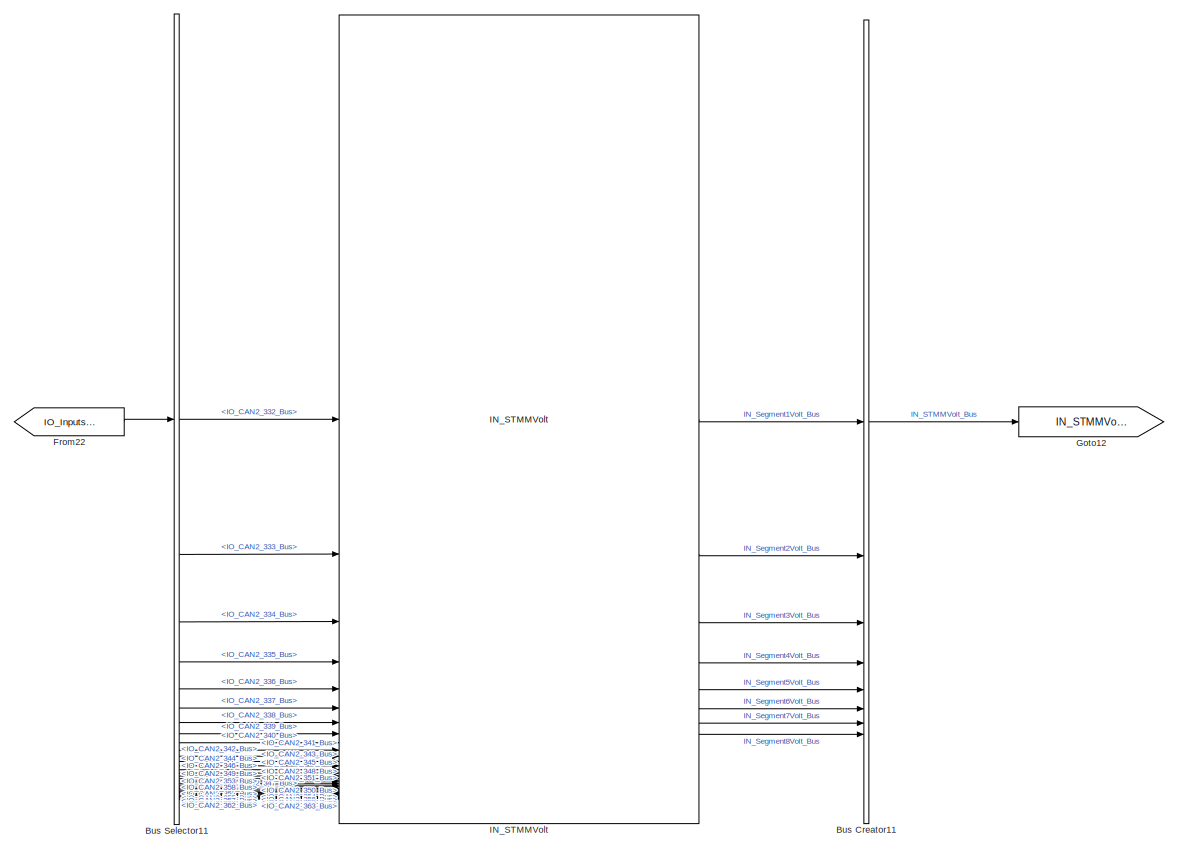
[diagram: Foreground/InputProcessing - part 7/8, bottom center region]
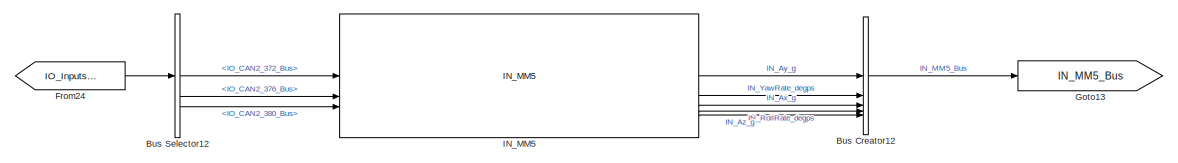
[diagram: Foreground/InputProcessing - part 8/8, bottom center region]
BLOCK [SubSystem] Foreground/InputProcessing
BLOCK [BusCreator] Foreground/InputProcessing/Bus Creator
  DisplayOption = bar
  InheritFromInputs = on
  Inputs = 2
BLOCK [BusCreator] Foreground/InputProcessing/Bus Creator1
  DisplayOption = bar
  InheritFromInputs = on
  Inputs = 2
BLOCK [BusCreator] Foreground/InputProcessing/Bus Creator10
  DisplayOption = bar
  InheritFromInputs = on
  Inputs = 12
BLOCK [BusCreator] Foreground/InputProcessing/Bus Creator11
  DisplayOption = bar
  InheritFromInputs = on
  Inputs = 8
BLOCK [BusCreator] Foreground/InputProcessing/Bus Creator12
  DisplayOption = bar
  InheritFromInputs = on
  Inputs = 5
BLOCK [BusCreator] Foreground/InputProcessing/Bus Creator2
  DisplayOption = bar
  InheritFromInputs = on
  Inputs = 13
BLOCK [BusCreator] Foreground/InputProcessing/Bus Creator3
  DisplayOption = bar
  InheritFromInputs = on
  Inputs = 1
BLOCK [BusCreator] Foreground/InputProcessing/Bus Creator4
  DisplayOption = bar
  InheritFromInputs = on
  Inputs = 8
BLOCK [BusCreator] Foreground/InputProcessing/Bus Creator5
  DisplayOption = bar
  InheritFromInputs = on
  Inputs = 16
BLOCK [BusCreator] Foreground/InputProcessing/Bus Creator6
  DisplayOption = bar
  InheritFromInputs = on
  Inputs = 8
BLOCK [BusCreator] Foreground/InputProcessing/Bus Creator7
  DisplayOption = bar
  InheritFromInputs = on
  Inputs = 3
BLOCK [BusCreator] Foreground/InputProcessing/Bus Creator8
  DisplayOption = bar
  InheritFromInputs = on
  Inputs = 4
BLOCK [BusCreator] Foreground/InputProcessing/Bus Creator9
  DisplayOption = bar
  InheritFromInputs = on
  Inputs = 12
BLOCK [BusSelector] Foreground/InputProcessing/Bus Selector
  OutputSignals = IO_AnalogInputs_Bus.IO_ThrottlePosition1_V,IO_AnalogInputs_Bus.IO_ThrottlePosition2_V
BLOCK [BusSelector] Foreground/InputProcessing/Bus Selector1
  OutputSignals = IO_AnalogInputs_Bus.IO_BrakePressureF_V,IO_AnalogInputs_Bus.IO_BrakePressureR_V
BLOCK [BusSelector] Foreground/InputProcessing/Bus Selector10
  OutputSignals = IO_CANInputs_Bus.IO_CAN2_Bus.IO_CAN2_BMS_Bus.IO_CAN2_200_Bus,IO_CANInputs_Bus.IO_CAN2_Bus.IO_CAN2_BMS_Bus.IO_CAN2_204_Bus,IO_CANInputs_Bus.IO_CAN2_Bus.IO_CAN2_BMS_Bus.IO_CAN2_208_Bus
BLOCK [BusSelector] Foreground/InputProcessing/Bus Selector11
  OutputSignals = IO_CANInputs_Bus.IO_CAN2_Bus.IO_CAN2_STMM_Bus.IO_CAN2_STMM_Volt_Bus.IO_CAN2_332_Bus,IO_CANInputs_Bus.IO_CAN2_Bus.IO_CAN2_STMM_Bus.IO_CAN2_STMM_Volt_Bus.IO_CAN2_333_Bus,IO_CANInputs_Bus.IO_CAN2_Bus.IO_CAN2_STMM_Bus.IO_CAN2_STMM_Volt_Bus.IO_CAN2_334_Bus,IO_CANInputs_Bus.IO_CAN2_Bus.IO_CAN2_STMM_Bus.IO_CAN2_STMM_Volt_Bus.IO_CAN2_335_Bus,IO_CANInputs_Bus.IO_CAN2_Bus.IO_CAN2_STMM_Bus.IO_CAN2_STMM_Volt_...<+2287ch>
BLOCK [BusSelector] Foreground/InputProcessing/Bus Selector12
  OutputSignals = IO_CANInputs_Bus.IO_CAN2_Bus.IO_CAN2_MM5_Bus.IO_CAN2_372_Bus,IO_CANInputs_Bus.IO_CAN2_Bus.IO_CAN2_MM5_Bus.IO_CAN2_376_Bus,IO_CANInputs_Bus.IO_CAN2_Bus.IO_CAN2_MM5_Bus.IO_CAN2_380_Bus
BLOCK [BusSelector] Foreground/InputProcessing/Bus Selector2
  OutputSignals = IO_AnalogInputs_Bus.IO_BSPDStatus_V
BLOCK [BusSelector] Foreground/InputProcessing/Bus Selector3
  OutputSignals = IO_CANInputs_Bus.IO_CAN1_Bus.IO_CAN1_PM100DX_Bus.IO_CAN1_160_Bus,IO_CANInputs_Bus.IO_CAN1_Bus.IO_CAN1_PM100DX_Bus.IO_CAN1_162_Bus,IO_CANInputs_Bus.IO_CAN1_Bus.IO_CAN1_PM100DX_Bus.IO_CAN1_165_Bus,IO_CANInputs_Bus.IO_CAN1_Bus.IO_CAN1_PM100DX_Bus.IO_CAN1_166_Bus,IO_CANInputs_Bus.IO_CAN1_Bus.IO_CAN1_PM100DX_Bus.IO_CAN1_167_Bus
BLOCK [BusSelector] Foreground/InputProcessing/Bus Selector4
  OutputSignals = IO_CANInputs_Bus.IO_CAN1_Bus.IO_CAN1_DCDC_Bus.IO_CAN1_402772111_Bus
BLOCK [BusSelector] Foreground/InputProcessing/Bus Selector5
  OutputSignals = IO_CANInputs_Bus.IO_CAN2_Bus.IO_CAN2_STMM_Bus.IO_CAN2_STMM_Temp_Bus.IO_CAN2_300_Bus,IO_CANInputs_Bus.IO_CAN2_Bus.IO_CAN2_STMM_Bus.IO_CAN2_STMM_Temp_Bus.IO_CAN2_301_Bus,IO_CANInputs_Bus.IO_CAN2_Bus.IO_CAN2_STMM_Bus.IO_CAN2_STMM_Temp_Bus.IO_CAN2_302_Bus,IO_CANInputs_Bus.IO_CAN2_Bus.IO_CAN2_STMM_Bus.IO_CAN2_STMM_Temp_Bus.IO_CAN2_303_Bus,IO_CANInputs_Bus.IO_CAN2_Bus.IO_CAN2_STMM_Bus.IO_CAN2_STMM_Temp_...<+2287ch>
BLOCK [BusSelector] Foreground/InputProcessing/Bus Selector6
  OutputSignals = IO_DigitalInputs_Bus.IO_FlowRateInverterOut_Hz,IO_DigitalInputs_Bus.IO_FlowRateMotorIn_Hz,IO_DigitalInputs_Bus.IO_FlowRateMotorOut_Hz
BLOCK [BusSelector] Foreground/InputProcessing/Bus Selector7
  OutputSignals = IO_AnalogInputs_Bus.IO_RotorTempFL_V,IO_AnalogInputs_Bus.IO_RotorTempFR_V,IO_AnalogInputs_Bus.IO_RotorTempRL_V,IO_AnalogInputs_Bus.IO_RotorTempRR_V
BLOCK [BusSelector] Foreground/InputProcessing/Bus Selector8
  OutputSignals = IO_AnalogInputs_Bus.IO_TireTempFLI_V,IO_AnalogInputs_Bus.IO_TireTempFLM_V,IO_AnalogInputs_Bus.IO_TireTempFLO_V,IO_AnalogInputs_Bus.IO_TireTempFRI_V,IO_AnalogInputs_Bus.IO_TireTempFRM_V,IO_AnalogInputs_Bus.IO_TireTempFRO_V,IO_AnalogInputs_Bus.IO_TireTempRLI_V,IO_AnalogInputs_Bus.IO_TireTempRLM_V,IO_AnalogInputs_Bus.IO_TireTempRLO_V,IO_AnalogInputs_Bus.IO_TireTempRRI_V,IO_AnalogInputs_Bus.IO_TireTem...<+43ch>
BLOCK [BusSelector] Foreground/InputProcessing/Bus Selector9
  OutputSignals = IO_AnalogInputs_Bus.IO_TCDial_V
BLOCK [From] Foreground/InputProcessing/From
  GotoTag = IO_Inputs_Bus
BLOCK [From] Foreground/InputProcessing/From1
  GotoTag = IO_Inputs_Bus
BLOCK [From] Foreground/InputProcessing/From10
  GotoTag = IN_BrakePressure_Bus
BLOCK [From] Foreground/InputProcessing/From11
  GotoTag = IN_BSPD_Bus
BLOCK [From] Foreground/InputProcessing/From12
  GotoTag = IN_PM100DX_Bus
BLOCK [From] Foreground/InputProcessing/From13
  GotoTag = IN_DCDC_Bus
BLOCK [From] Foreground/InputProcessing/From14
  GotoTag = IN_STMMTemp_Bus
BLOCK [From] Foreground/InputProcessing/From15
  GotoTag = IN_FlowRate_Bus
BLOCK [From] Foreground/InputProcessing/From16
  GotoTag = IN_RotorTemp_Bus
BLOCK [From] Foreground/InputProcessing/From17
  GotoTag = IN_TireTemp_Bus
BLOCK [From] Foreground/InputProcessing/From18
  GotoTag = IO_Inputs_Bus
BLOCK [From] Foreground/InputProcessing/From19
  GotoTag = IN_TCDial_na
BLOCK [From] Foreground/InputProcessing/From2
  GotoTag = IO_Inputs_Bus
BLOCK [From] Foreground/InputProcessing/From20
  GotoTag = IO_Inputs_Bus
BLOCK [From] Foreground/InputProcessing/From21
  GotoTag = IN_OrionBMS2_Bus
BLOCK [From] Foreground/InputProcessing/From22
  GotoTag = IO_Inputs_Bus
BLOCK [From] Foreground/InputProcessing/From23
  GotoTag = IN_STMMVolt_Bus
BLOCK [From] Foreground/InputProcessing/From24
  GotoTag = IO_Inputs_Bus
BLOCK [From] Foreground/InputProcessing/From25
  GotoTag = IN_MM5_Bus
BLOCK [From] Foreground/InputProcessing/From3
  GotoTag = IO_Inputs_Bus
BLOCK [From] Foreground/InputProcessing/From4
  GotoTag = IO_Inputs_Bus
BLOCK [From] Foreground/InputProcessing/From5
  GotoTag = IO_Inputs_Bus
BLOCK [From] Foreground/InputProcessing/From6
  GotoTag = IO_Inputs_Bus
BLOCK [From] Foreground/InputProcessing/From7
  GotoTag = IO_Inputs_Bus
BLOCK [From] Foreground/InputProcessing/From8
  GotoTag = IO_Inputs_Bus
BLOCK [From] Foreground/InputProcessing/From9
  GotoTag = IN_ThrottlePosition_Bus
BLOCK [Goto] Foreground/InputProcessing/Goto
  GotoTag = IO_Inputs_Bus
BLOCK [Goto] Foreground/InputProcessing/Goto1
  GotoTag = IN_ThrottlePosition_Bus
BLOCK [Goto] Foreground/InputProcessing/Goto10
  GotoTag = IN_TCDial_na
BLOCK [Goto] Foreground/InputProcessing/Goto11
  GotoTag = IN_OrionBMS2_Bus
BLOCK [Goto] Foreground/InputProcessing/Goto12
  GotoTag = IN_STMMVolt_Bus
BLOCK [Goto] Foreground/InputProcessing/Goto13
  GotoTag = IN_MM5_Bus
BLOCK [Goto] Foreground/InputProcessing/Goto2
  GotoTag = IN_BrakePressure_Bus
BLOCK [Goto] Foreground/InputProcessing/Goto3
  GotoTag = IN_BSPD_Bus
BLOCK [Goto] Foreground/InputProcessing/Goto4
  GotoTag = IN_PM100DX_Bus
BLOCK [Goto] Foreground/InputProcessing/Goto5
  GotoTag = IN_DCDC_Bus
BLOCK [Goto] Foreground/InputProcessing/Goto6
  GotoTag = IN_STMMTemp_Bus
BLOCK [Goto] Foreground/InputProcessing/Goto7
  GotoTag = IN_FlowRate_Bus
BLOCK [Goto] Foreground/InputProcessing/Goto8
  GotoTag = IN_RotorTemp_Bus
BLOCK [Goto] Foreground/InputProcessing/Goto9
  GotoTag = IN_TireTemp_Bus
BLOCK [Reference] Foreground/InputProcessing/IN_BSPD  REF=BSPD/IN_BSPD
  SourceBlock = BSPD/IN_BSPD
BLOCK [Reference] Foreground/InputProcessing/IN_BrakePressure  REF=BrakePressure/IN_BrakePressure
  SourceBlock = BrakePressure/IN_BrakePressure
BLOCK [Reference] Foreground/InputProcessing/IN_BrakePressure1  REF=BrakePressure/IN_BrakePressure
  SourceBlock = BrakePressure/IN_BrakePressure
BLOCK [Reference] Foreground/InputProcessing/IN_DCDC  REF=DCDC/IN_DCDC
  SourceBlock = DCDC/IN_DCDC
  SourceType = SubSystem
BLOCK [Reference] Foreground/InputProcessing/IN_FlowRate  REF=FlowRate/IN_FlowRate
  SourceBlock = FlowRate/IN_FlowRate
BLOCK [Reference] Foreground/InputProcessing/IN_FlowRate1  REF=FlowRate/IN_FlowRate
  SourceBlock = FlowRate/IN_FlowRate
BLOCK [Reference] Foreground/InputProcessing/IN_FlowRate2  REF=FlowRate/IN_FlowRate
  SourceBlock = FlowRate/IN_FlowRate
BLOCK [Outport] Foreground/InputProcessing/IN_Inputs_Bus
BLOCK [Reference] Foreground/InputProcessing/IN_MM5  REF=MM5/IN_MM5
  SourceBlock = MM5/IN_MM5
  SourceType = SubSystem
BLOCK [Reference] Foreground/InputProcessing/IN_OrionBMS2  REF=OrionBMS2/IN_OrionBMS2
  SourceBlock = OrionBMS2/IN_OrionBMS2
  SourceType = SubSystem
BLOCK [Reference] Foreground/InputProcessing/IN_PM100DX  REF=PM100DX/IN_PM100DX
  SourceBlock = PM100DX/IN_PM100DX
  SourceType = SubSystem
BLOCK [Reference] Foreground/InputProcessing/IN_RotorTemperature  REF=RotorTemperature/IN_RotorTemperature
  SourceBlock = RotorTemperature/IN_RotorTemperature
BLOCK [Reference] Foreground/InputProcessing/IN_RotorTemperature1  REF=RotorTemperature/IN_RotorTemperature
  SourceBlock = RotorTemperature/IN_RotorTemperature
BLOCK [Reference] Foreground/InputProcessing/IN_RotorTemperature2  REF=RotorTemperature/IN_RotorTemperature
  SourceBlock = RotorTemperature/IN_RotorTemperature
BLOCK [Reference] Foreground/InputProcessing/IN_RotorTemperature3  REF=RotorTemperature/IN_RotorTemperature
  SourceBlock = RotorTemperature/IN_RotorTemperature
BLOCK [Reference] Foreground/InputProcessing/IN_STMMTemp  REF=STMM/IN_STMMTemp
  SourceBlock = STMM/IN_STMMTemp
  SourceType = SubSystem
BLOCK [Reference] Foreground/InputProcessing/IN_STMMVolt  REF=STMM/IN_STMMVolt
  SourceBlock = STMM/IN_STMMVolt
  SourceType = SubSystem
BLOCK [Reference] Foreground/InputProcessing/IN_TCDial  REF=TCDial/IN_TCDial
  SourceBlock = TCDial/IN_TCDial
BLOCK [Reference] Foreground/InputProcessing/IN_ThrottlePosition  REF=ThrottlePosition/IN_ThrottlePosition
  SourceBlock = ThrottlePosition/IN_ThrottlePosition
BLOCK [Reference] Foreground/InputProcessing/IN_ThrottlePosition1  REF=ThrottlePosition/IN_ThrottlePosition
  SourceBlock = ThrottlePosition/IN_ThrottlePosition
BLOCK [Reference] Foreground/InputProcessing/IN_TireTemperature  REF=TireTemperature/IN_TireTemperature
  SourceBlock = TireTemperature/IN_TireTemperature
BLOCK [Reference] Foreground/InputProcessing/IN_TireTemperature1  REF=TireTemperature/IN_TireTemperature
  SourceBlock = TireTemperature/IN_TireTemperature
BLOCK [Reference] Foreground/InputProcessing/IN_TireTemperature10  REF=TireTemperature/IN_TireTemperature
  SourceBlock = TireTemperature/IN_TireTemperature
BLOCK [Reference] Foreground/InputProcessing/IN_TireTemperature11  REF=TireTemperature/IN_TireTemperature
  SourceBlock = TireTemperature/IN_TireTemperature
BLOCK [Reference] Foreground/InputProcessing/IN_TireTemperature2  REF=TireTemperature/IN_TireTemperature
  SourceBlock = TireTemperature/IN_TireTemperature
BLOCK [Reference] Foreground/InputProcessing/IN_TireTemperature3  REF=TireTemperature/IN_TireTemperature
  SourceBlock = TireTemperature/IN_TireTemperature
BLOCK [Reference] Foreground/InputProcessing/IN_TireTemperature4  REF=TireTemperature/IN_TireTemperature
  SourceBlock = TireTemperature/IN_TireTemperature
BLOCK [Reference] Foreground/InputProcessing/IN_TireTemperature5  REF=TireTemperature/IN_TireTemperature
  SourceBlock = TireTemperature/IN_TireTemperature
BLOCK [Reference] Foreground/InputProcessing/IN_TireTemperature6  REF=TireTemperature/IN_TireTemperature
  SourceBlock = TireTemperature/IN_TireTemperature
BLOCK [Reference] Foreground/InputProcessing/IN_TireTemperature7  REF=TireTemperature/IN_TireTemperature
  SourceBlock = TireTemperature/IN_TireTemperature
BLOCK [Reference] Foreground/InputProcessing/IN_TireTemperature8  REF=TireTemperature/IN_TireTemperature
  SourceBlock = TireTemperature/IN_TireTemperature
BLOCK [Reference] Foreground/InputProcessing/IN_TireTemperature9  REF=TireTemperature/IN_TireTemperature
  SourceBlock = TireTemperature/IN_TireTemperature
BLOCK [Inport] Foreground/InputProcessing/IO_Inputs_Bus
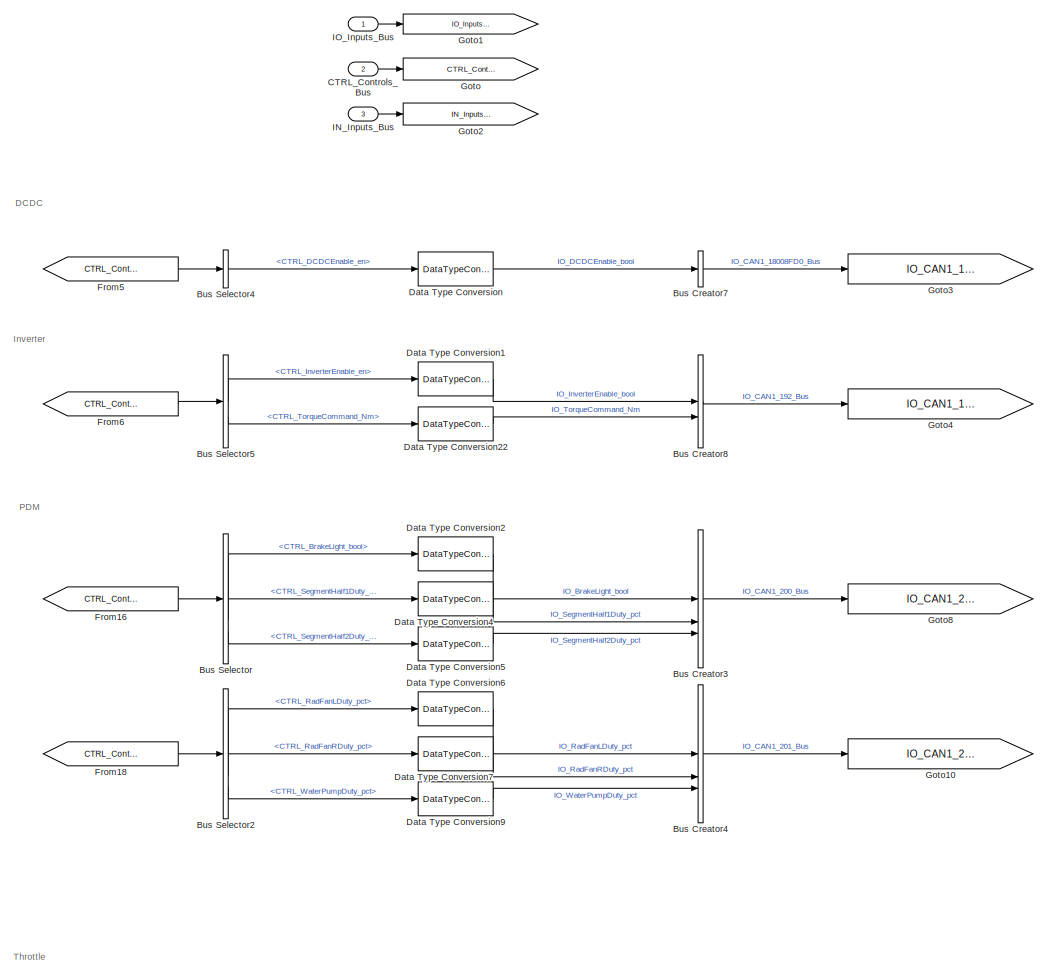
[diagram: Foreground/OutputProcessing - part 1/7, top left region]
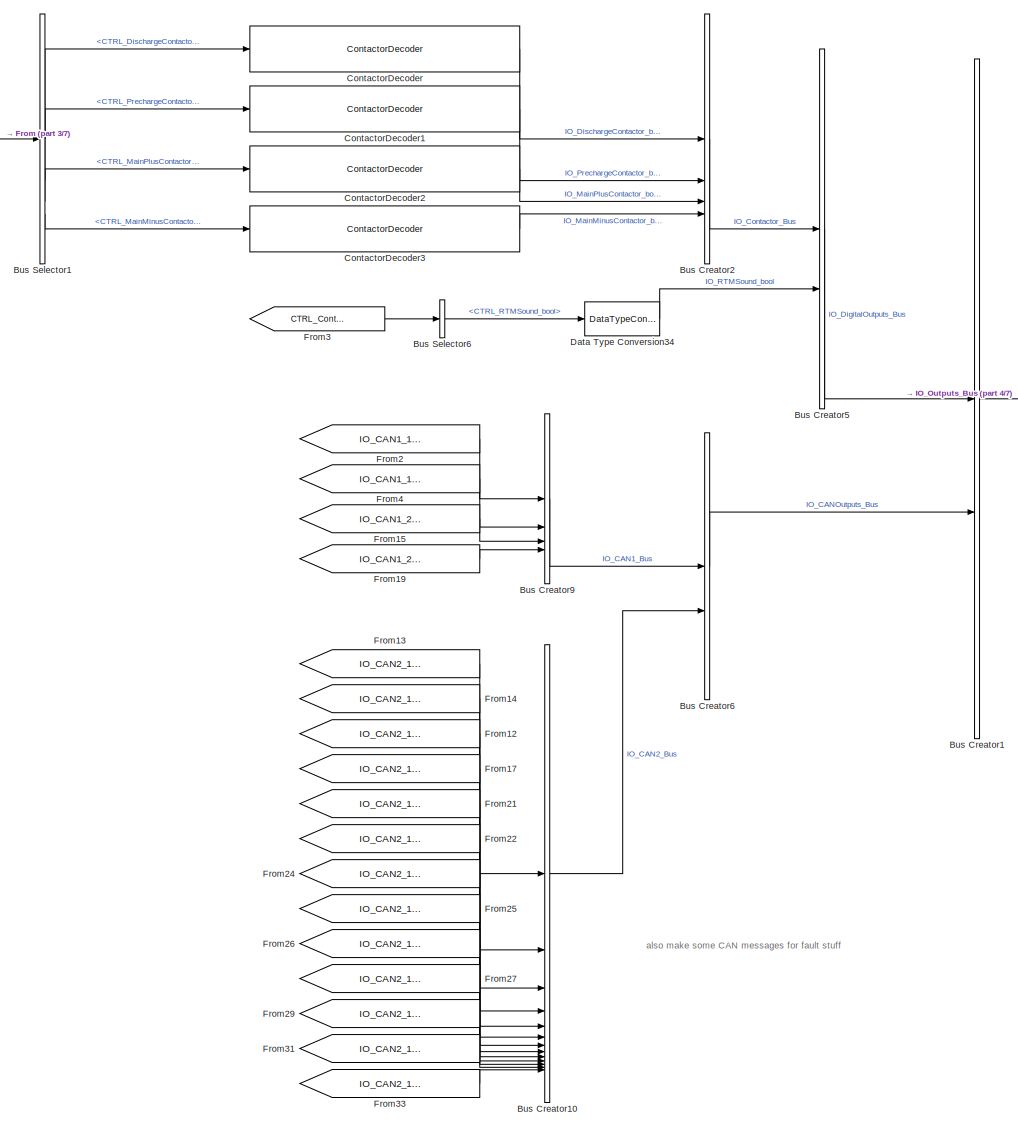
[diagram: Foreground/OutputProcessing - part 2/7, top right region]
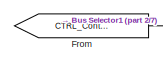
[diagram: Foreground/OutputProcessing - part 3/7, top center region]
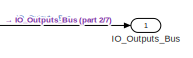
[diagram: Foreground/OutputProcessing - part 4/7, top right region]
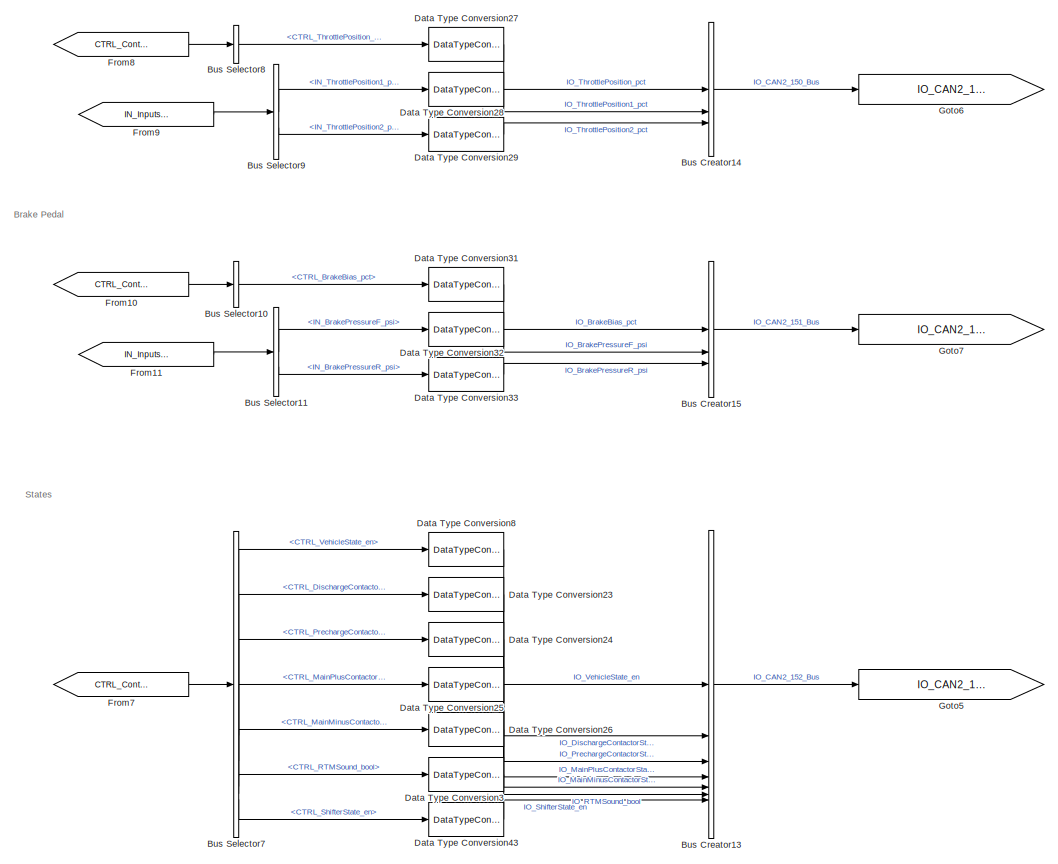
[diagram: Foreground/OutputProcessing - part 5/7, middle left region]
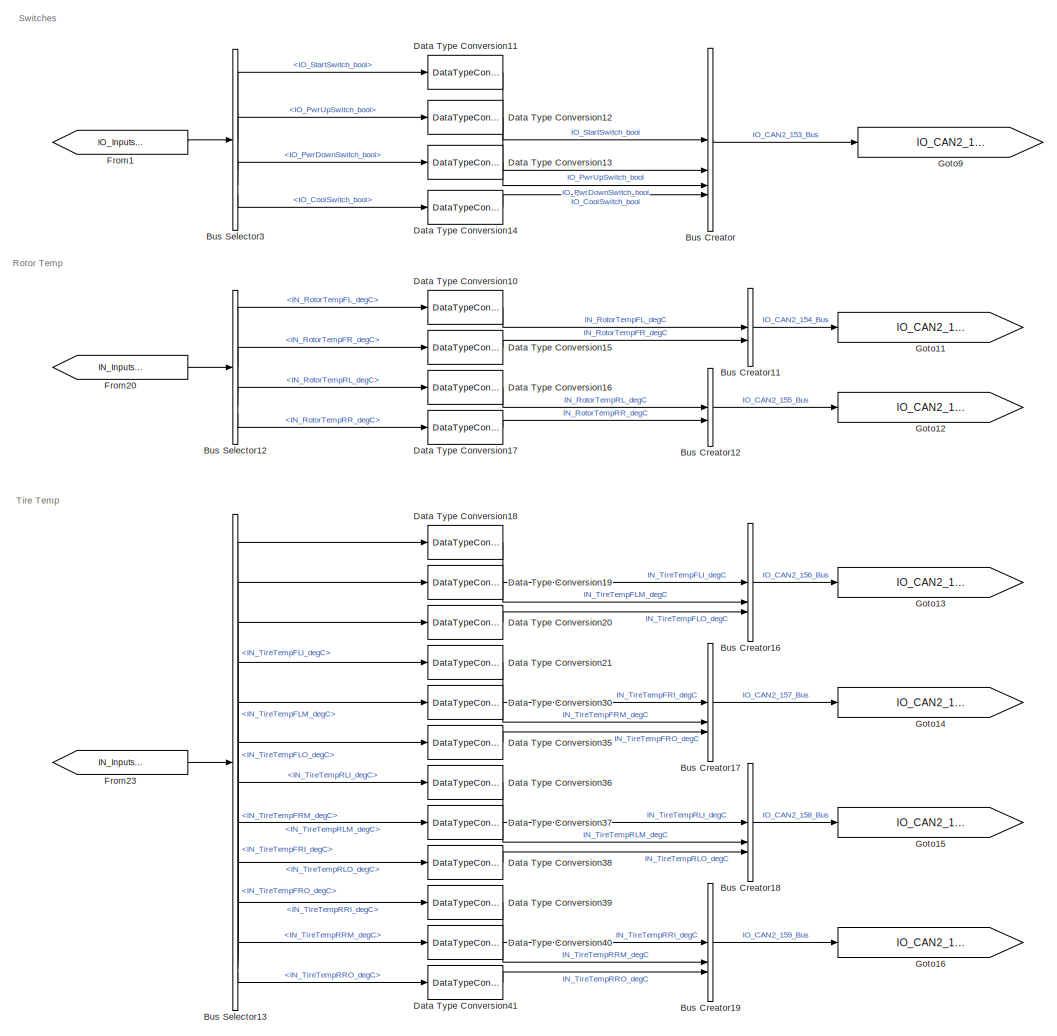
[diagram: Foreground/OutputProcessing - part 6/7, bottom left region]
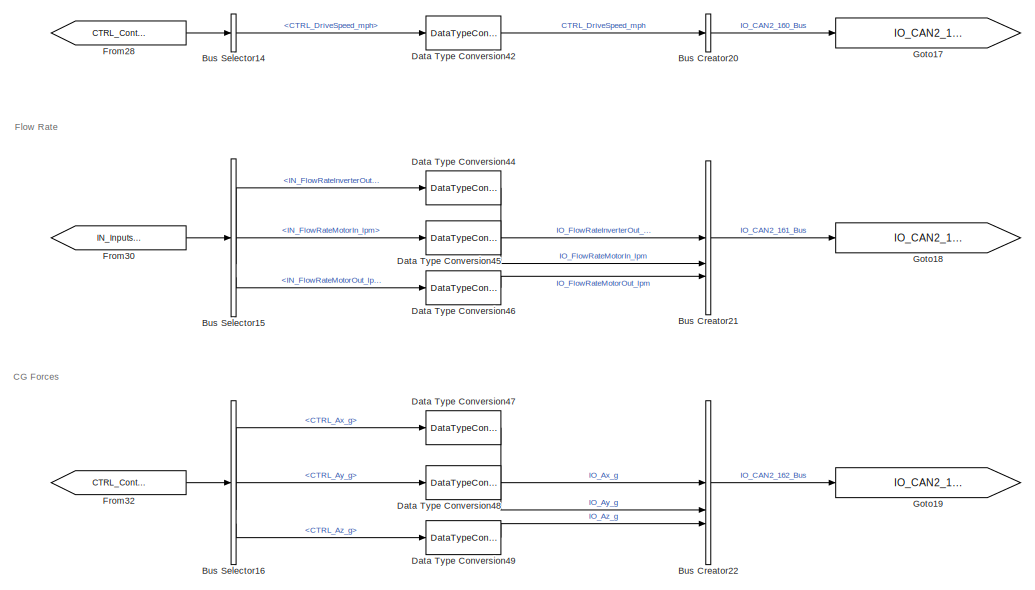
[diagram: Foreground/OutputProcessing - part 7/7, bottom left region]
BLOCK [SubSystem] Foreground/OutputProcessing
BLOCK [BusCreator] Foreground/OutputProcessing/Bus Creator
  DisplayOption = bar
  InheritFromInputs = on
  Inputs = 4
BLOCK [BusCreator] Foreground/OutputProcessing/Bus Creator1
  DisplayOption = bar
  InheritFromInputs = on
  Inputs = 2
BLOCK [BusCreator] Foreground/OutputProcessing/Bus Creator10
  DisplayOption = bar
  InheritFromInputs = on
  Inputs = 13
BLOCK [BusCreator] Foreground/OutputProcessing/Bus Creator11
  DisplayOption = bar
  InheritFromInputs = on
  Inputs = 2
BLOCK [BusCreator] Foreground/OutputProcessing/Bus Creator12
  DisplayOption = bar
  InheritFromInputs = on
  Inputs = 2
BLOCK [BusCreator] Foreground/OutputProcessing/Bus Creator13
  DisplayOption = bar
  InheritFromInputs = on
  Inputs = 7
BLOCK [BusCreator] Foreground/OutputProcessing/Bus Creator14
  DisplayOption = bar
  InheritFromInputs = on
  Inputs = 3
BLOCK [BusCreator] Foreground/OutputProcessing/Bus Creator15
  DisplayOption = bar
  InheritFromInputs = on
  Inputs = 3
BLOCK [BusCreator] Foreground/OutputProcessing/Bus Creator16
  DisplayOption = bar
  InheritFromInputs = on
  Inputs = 3
BLOCK [BusCreator] Foreground/OutputProcessing/Bus Creator17
  DisplayOption = bar
  InheritFromInputs = on
  Inputs = 3
BLOCK [BusCreator] Foreground/OutputProcessing/Bus Creator18
  DisplayOption = bar
  InheritFromInputs = on
  Inputs = 3
BLOCK [BusCreator] Foreground/OutputProcessing/Bus Creator19
  DisplayOption = bar
  InheritFromInputs = on
  Inputs = 3
BLOCK [BusCreator] Foreground/OutputProcessing/Bus Creator2
  DisplayOption = bar
  InheritFromInputs = on
  Inputs = 4
BLOCK [BusCreator] Foreground/OutputProcessing/Bus Creator20
  DisplayOption = bar
  InheritFromInputs = on
  Inputs = 1
BLOCK [BusCreator] Foreground/OutputProcessing/Bus Creator21
  DisplayOption = bar
  InheritFromInputs = on
  Inputs = 3
BLOCK [BusCreator] Foreground/OutputProcessing/Bus Creator22
  DisplayOption = bar
  InheritFromInputs = on
  Inputs = 3
BLOCK [BusCreator] Foreground/OutputProcessing/Bus Creator3
  DisplayOption = bar
  InheritFromInputs = on
  Inputs = 3
BLOCK [BusCreator] Foreground/OutputProcessing/Bus Creator4
  DisplayOption = bar
  InheritFromInputs = on
  Inputs = 3
BLOCK [BusCreator] Foreground/OutputProcessing/Bus Creator5
  DisplayOption = bar
  InheritFromInputs = on
  Inputs = 2
BLOCK [BusCreator] Foreground/OutputProcessing/Bus Creator6
  DisplayOption = bar
  InheritFromInputs = on
  Inputs = 2
BLOCK [BusCreator] Foreground/OutputProcessing/Bus Creator7
  DisplayOption = bar
  InheritFromInputs = on
  Inputs = 1
BLOCK [BusCreator] Foreground/OutputProcessing/Bus Creator8
  DisplayOption = bar
  InheritFromInputs = on
  Inputs = 2
BLOCK [BusCreator] Foreground/OutputProcessing/Bus Creator9
  DisplayOption = bar
  InheritFromInputs = on
  Inputs = 4
BLOCK [BusSelector] Foreground/OutputProcessing/Bus Selector
  OutputSignals = CTRL_BrakeLight_bool,CTRL_SegmentHalf1Duty_pct,CTRL_SegmentHalf2Duty_pct
BLOCK [BusSelector] Foreground/OutputProcessing/Bus Selector1
  OutputSignals = CTRL_DischargeContactorState_en,CTRL_PrechargeContactorState_en,CTRL_MainPlusContactorState_en,CTRL_MainMinusContactorState_en
BLOCK [BusSelector] Foreground/OutputProcessing/Bus Selector10
  OutputSignals = CTRL_BrakeBias_pct
BLOCK [BusSelector] Foreground/OutputProcessing/Bus Selector11
  OutputSignals = IN_BrakePressure_Bus.IN_BrakePressureF_psi,IN_BrakePressure_Bus.IN_BrakePressureR_psi
BLOCK [BusSelector] Foreground/OutputProcessing/Bus Selector12
  OutputSignals = IN_RotorTemp_Bus.IN_RotorTempFL_degC,IN_RotorTemp_Bus.IN_RotorTempFR_degC,IN_RotorTemp_Bus.IN_RotorTempRL_degC,IN_RotorTemp_Bus.IN_RotorTempRR_degC
BLOCK [BusSelector] Foreground/OutputProcessing/Bus Selector13
  OutputSignals = IN_TireTemp_Bus.IN_TireTempFLI_degC,IN_TireTemp_Bus.IN_TireTempFLM_degC,IN_TireTemp_Bus.IN_TireTempFLO_degC,IN_TireTemp_Bus.IN_TireTempFRI_degC,IN_TireTemp_Bus.IN_TireTempFRM_degC,IN_TireTemp_Bus.IN_TireTempFRO_degC,IN_TireTemp_Bus.IN_TireTempRLI_degC,IN_TireTemp_Bus.IN_TireTempRLM_degC,IN_TireTemp_Bus.IN_TireTempRLO_degC,IN_TireTemp_Bus.IN_TireTempRRI_degC,IN_TireTemp_Bus.IN_TireTempRRM_degC,IN_T...<+31ch>
BLOCK [BusSelector] Foreground/OutputProcessing/Bus Selector14
  OutputSignals = CTRL_DriveSpeed_mph
BLOCK [BusSelector] Foreground/OutputProcessing/Bus Selector15
  OutputSignals = IN_FlowRate_Bus.IN_FlowRateInverterOut_lpm,IN_FlowRate_Bus.IN_FlowRateMotorIn_lpm,IN_FlowRate_Bus.IN_FlowRateMotorOut_lpm
BLOCK [BusSelector] Foreground/OutputProcessing/Bus Selector16
  OutputSignals = CTRL_Ax_g,CTRL_Ay_g,CTRL_Az_g
BLOCK [BusSelector] Foreground/OutputProcessing/Bus Selector2
  OutputSignals = CTRL_RadFanLDuty_pct,CTRL_RadFanRDuty_pct,CTRL_WaterPumpDuty_pct
BLOCK [BusSelector] Foreground/OutputProcessing/Bus Selector3
  OutputSignals = IO_DigitalInputs_Bus.IO_StartSwitch_bool,IO_DigitalInputs_Bus.IO_PwrUpSwitch_bool,IO_DigitalInputs_Bus.IO_PwrDownSwitch_bool,IO_DigitalInputs_Bus.IO_CoolSwitch_bool
BLOCK [BusSelector] Foreground/OutputProcessing/Bus Selector4
  OutputSignals = CTRL_DCDCEnable_en
BLOCK [BusSelector] Foreground/OutputProcessing/Bus Selector5
  OutputSignals = CTRL_InverterEnable_en,CTRL_TorqueCommand_Nm
BLOCK [BusSelector] Foreground/OutputProcessing/Bus Selector6
  OutputSignals = CTRL_RTMSound_bool
BLOCK [BusSelector] Foreground/OutputProcessing/Bus Selector7
  OutputSignals = CTRL_VehicleState_en,CTRL_DischargeContactorState_en,CTRL_PrechargeContactorState_en,CTRL_MainPlusContactorState_en,CTRL_MainMinusContactorState_en,CTRL_RTMSound_bool,CTRL_ShifterState_en
BLOCK [BusSelector] Foreground/OutputProcessing/Bus Selector8
  OutputSignals = CTRL_ThrottlePosition_pct
BLOCK [BusSelector] Foreground/OutputProcessing/Bus Selector9
  OutputSignals = IN_ThrottlePosition_Bus.IN_ThrottlePosition1_pct,IN_ThrottlePosition_Bus.IN_ThrottlePosition2_pct
BLOCK [Inport] Foreground/OutputProcessing/CTRL_Controls_Bus
  Port = 2
BLOCK [Reference] Foreground/OutputProcessing/ContactorDecoder  REF=Utilities/ContactorDecoder
  SourceBlock = Utilities/ContactorDecoder
BLOCK [Reference] Foreground/OutputProcessing/ContactorDecoder1  REF=Utilities/ContactorDecoder
  SourceBlock = Utilities/ContactorDecoder
BLOCK [Reference] Foreground/OutputProcessing/ContactorDecoder2  REF=Utilities/ContactorDecoder
  SourceBlock = Utilities/ContactorDecoder
BLOCK [Reference] Foreground/OutputProcessing/ContactorDecoder3  REF=Utilities/ContactorDecoder
  SourceBlock = Utilities/ContactorDecoder
BLOCK [DataTypeConversion] Foreground/OutputProcessing/Data Type Conversion
  OutDataTypeStr = uint8
  RndMeth = Floor
  SaturateOnIntegerOverflow = off
BLOCK [DataTypeConversion] Foreground/OutputProcessing/Data Type Conversion1
  OutDataTypeStr = boolean
  RndMeth = Floor
  SaturateOnIntegerOverflow = off
BLOCK [DataTypeConversion] Foreground/OutputProcessing/Data Type Conversion10
  OutDataTypeStr = int16
  RndMeth = Floor
  SaturateOnIntegerOverflow = off
BLOCK [DataTypeConversion] Foreground/OutputProcessing/Data Type Conversion11
  OutDataTypeStr = boolean
  RndMeth = Floor
  SaturateOnIntegerOverflow = off
BLOCK [DataTypeConversion] Foreground/OutputProcessing/Data Type Conversion12
  OutDataTypeStr = boolean
  RndMeth = Floor
  SaturateOnIntegerOverflow = off
BLOCK [DataTypeConversion] Foreground/OutputProcessing/Data Type Conversion13
  OutDataTypeStr = boolean
  RndMeth = Floor
  SaturateOnIntegerOverflow = off
BLOCK [DataTypeConversion] Foreground/OutputProcessing/Data Type Conversion14
  OutDataTypeStr = boolean
  RndMeth = Floor
  SaturateOnIntegerOverflow = off
BLOCK [DataTypeConversion] Foreground/OutputProcessing/Data Type Conversion15
  OutDataTypeStr = int16
  RndMeth = Floor
  SaturateOnIntegerOverflow = off
BLOCK [DataTypeConversion] Foreground/OutputProcessing/Data Type Conversion16
  OutDataTypeStr = int16
  RndMeth = Floor
  SaturateOnIntegerOverflow = off
BLOCK [DataTypeConversion] Foreground/OutputProcessing/Data Type Conversion17
  OutDataTypeStr = int16
  RndMeth = Floor
  SaturateOnIntegerOverflow = off
BLOCK [DataTypeConversion] Foreground/OutputProcessing/Data Type Conversion18
  OutDataTypeStr = int16
  RndMeth = Floor
  SaturateOnIntegerOverflow = off
BLOCK [DataTypeConversion] Foreground/OutputProcessing/Data Type Conversion19
  OutDataTypeStr = int16
  RndMeth = Floor
  SaturateOnIntegerOverflow = off
BLOCK [DataTypeConversion] Foreground/OutputProcessing/Data Type Conversion2
  OutDataTypeStr = boolean
  RndMeth = Floor
  SaturateOnIntegerOverflow = off
BLOCK [DataTypeConversion] Foreground/OutputProcessing/Data Type Conversion20
  OutDataTypeStr = int16
  RndMeth = Floor
  SaturateOnIntegerOverflow = off
BLOCK [DataTypeConversion] Foreground/OutputProcessing/Data Type Conversion21
  OutDataTypeStr = int16
  RndMeth = Floor
  SaturateOnIntegerOverflow = off
BLOCK [DataTypeConversion] Foreground/OutputProcessing/Data Type Conversion22
  OutDataTypeStr = int16
  RndMeth = Floor
  SaturateOnIntegerOverflow = off
BLOCK [DataTypeConversion] Foreground/OutputProcessing/Data Type Conversion23
  OutDataTypeStr = uint8
  RndMeth = Floor
  SaturateOnIntegerOverflow = off
BLOCK [DataTypeConversion] Foreground/OutputProcessing/Data Type Conversion24
  OutDataTypeStr = uint8
  RndMeth = Floor
  SaturateOnIntegerOverflow = off
BLOCK [DataTypeConversion] Foreground/OutputProcessing/Data Type Conversion25
  OutDataTypeStr = uint8
  RndMeth = Floor
  SaturateOnIntegerOverflow = off
BLOCK [DataTypeConversion] Foreground/OutputProcessing/Data Type Conversion26
  OutDataTypeStr = uint8
  RndMeth = Floor
  SaturateOnIntegerOverflow = off
BLOCK [DataTypeConversion] Foreground/OutputProcessing/Data Type Conversion27
  OutDataTypeStr = int16
  RndMeth = Floor
  SaturateOnIntegerOverflow = off
BLOCK [DataTypeConversion] Foreground/OutputProcessing/Data Type Conversion28
  OutDataTypeStr = int16
  RndMeth = Floor
  SaturateOnIntegerOverflow = off
BLOCK [DataTypeConversion] Foreground/OutputProcessing/Data Type Conversion29
  OutDataTypeStr = int16
  RndMeth = Floor
  SaturateOnIntegerOverflow = off
BLOCK [DataTypeConversion] Foreground/OutputProcessing/Data Type Conversion3
  OutDataTypeStr = boolean
  RndMeth = Floor
  SaturateOnIntegerOverflow = off
BLOCK [DataTypeConversion] Foreground/OutputProcessing/Data Type Conversion30
  OutDataTypeStr = int16
  RndMeth = Floor
  SaturateOnIntegerOverflow = off
BLOCK [DataTypeConversion] Foreground/OutputProcessing/Data Type Conversion31
  OutDataTypeStr = int16
  RndMeth = Floor
  SaturateOnIntegerOverflow = off
BLOCK [DataTypeConversion] Foreground/OutputProcessing/Data Type Conversion32
  OutDataTypeStr = int16
  RndMeth = Floor
  SaturateOnIntegerOverflow = off
BLOCK [DataTypeConversion] Foreground/OutputProcessing/Data Type Conversion33
  OutDataTypeStr = int16
  RndMeth = Floor
  SaturateOnIntegerOverflow = off
BLOCK [DataTypeConversion] Foreground/OutputProcessing/Data Type Conversion34
  OutDataTypeStr = boolean
  RndMeth = Floor
  SaturateOnIntegerOverflow = off
BLOCK [DataTypeConversion] Foreground/OutputProcessing/Data Type Conversion35
  OutDataTypeStr = int16
  RndMeth = Floor
  SaturateOnIntegerOverflow = off
BLOCK [DataTypeConversion] Foreground/OutputProcessing/Data Type Conversion36
  OutDataTypeStr = int16
  RndMeth = Floor
  SaturateOnIntegerOverflow = off
BLOCK [DataTypeConversion] Foreground/OutputProcessing/Data Type Conversion37
  OutDataTypeStr = int16
  RndMeth = Floor
  SaturateOnIntegerOverflow = off
BLOCK [DataTypeConversion] Foreground/OutputProcessing/Data Type Conversion38
  OutDataTypeStr = int16
  RndMeth = Floor
  SaturateOnIntegerOverflow = off
BLOCK [DataTypeConversion] Foreground/OutputProcessing/Data Type Conversion39
  OutDataTypeStr = int16
  RndMeth = Floor
  SaturateOnIntegerOverflow = off
BLOCK [DataTypeConversion] Foreground/OutputProcessing/Data Type Conversion4
  OutDataTypeStr = int16
  RndMeth = Floor
  SaturateOnIntegerOverflow = off
BLOCK [DataTypeConversion] Foreground/OutputProcessing/Data Type Conversion40
  OutDataTypeStr = int16
  RndMeth = Floor
  SaturateOnIntegerOverflow = off
BLOCK [DataTypeConversion] Foreground/OutputProcessing/Data Type Conversion41
  OutDataTypeStr = int16
  RndMeth = Floor
  SaturateOnIntegerOverflow = off
BLOCK [DataTypeConversion] Foreground/OutputProcessing/Data Type Conversion42
  OutDataTypeStr = int16
  RndMeth = Floor
  SaturateOnIntegerOverflow = off
BLOCK [DataTypeConversion] Foreground/OutputProcessing/Data Type Conversion43
  OutDataTypeStr = uint8
  RndMeth = Floor
  SaturateOnIntegerOverflow = off
BLOCK [DataTypeConversion] Foreground/OutputProcessing/Data Type Conversion44
  OutDataTypeStr = int16
  RndMeth = Floor
  SaturateOnIntegerOverflow = off
BLOCK [DataTypeConversion] Foreground/OutputProcessing/Data Type Conversion45
  OutDataTypeStr = int16
  RndMeth = Floor
  SaturateOnIntegerOverflow = off
BLOCK [DataTypeConversion] Foreground/OutputProcessing/Data Type Conversion46
  OutDataTypeStr = int16
  RndMeth = Floor
  SaturateOnIntegerOverflow = off
BLOCK [DataTypeConversion] Foreground/OutputProcessing/Data Type Conversion47
  OutDataTypeStr = int16
  RndMeth = Floor
  SaturateOnIntegerOverflow = off
BLOCK [DataTypeConversion] Foreground/OutputProcessing/Data Type Conversion48
  OutDataTypeStr = int16
  RndMeth = Floor
  SaturateOnIntegerOverflow = off
BLOCK [DataTypeConversion] Foreground/OutputProcessing/Data Type Conversion49
  OutDataTypeStr = int16
  RndMeth = Floor
  SaturateOnIntegerOverflow = off
BLOCK [DataTypeConversion] Foreground/OutputProcessing/Data Type Conversion5
  OutDataTypeStr = int16
  RndMeth = Floor
  SaturateOnIntegerOverflow = off
BLOCK [DataTypeConversion] Foreground/OutputProcessing/Data Type Conversion6
  OutDataTypeStr = int16
  RndMeth = Floor
  SaturateOnIntegerOverflow = off
BLOCK [DataTypeConversion] Foreground/OutputProcessing/Data Type Conversion7
  OutDataTypeStr = int16
  RndMeth = Floor
  SaturateOnIntegerOverflow = off
BLOCK [DataTypeConversion] Foreground/OutputProcessing/Data Type Conversion8
  OutDataTypeStr = uint8
  RndMeth = Floor
  SaturateOnIntegerOverflow = off
BLOCK [DataTypeConversion] Foreground/OutputProcessing/Data Type Conversion9
  OutDataTypeStr = int16
  RndMeth = Floor
  SaturateOnIntegerOverflow = off
BLOCK [From] Foreground/OutputProcessing/From
  GotoTag = CTRL_Controls_Bus
BLOCK [From] Foreground/OutputProcessing/From1
  GotoTag = IO_Inputs_Bus
BLOCK [From] Foreground/OutputProcessing/From10
  GotoTag = CTRL_Controls_Bus
BLOCK [From] Foreground/OutputProcessing/From11
  GotoTag = IN_Inputs_Bus
BLOCK [From] Foreground/OutputProcessing/From12
  GotoTag = IO_CAN2_152_Bus
BLOCK [From] Foreground/OutputProcessing/From13
  GotoTag = IO_CAN2_150_Bus
BLOCK [From] Foreground/OutputProcessing/From14
  GotoTag = IO_CAN2_151_Bus
BLOCK [From] Foreground/OutputProcessing/From15
  GotoTag = IO_CAN1_200_Bus
BLOCK [From] Foreground/OutputProcessing/From16
  GotoTag = CTRL_Controls_Bus
BLOCK [From] Foreground/OutputProcessing/From17
  GotoTag = IO_CAN2_153_Bus
BLOCK [From] Foreground/OutputProcessing/From18
  GotoTag = CTRL_Controls_Bus
BLOCK [From] Foreground/OutputProcessing/From19
  GotoTag = IO_CAN1_201_Bus
BLOCK [From] Foreground/OutputProcessing/From2
  GotoTag = IO_CAN1_18008FD0_Bus
BLOCK [From] Foreground/OutputProcessing/From20
  GotoTag = IN_Inputs_Bus
BLOCK [From] Foreground/OutputProcessing/From21
  GotoTag = IO_CAN2_154_Bus
BLOCK [From] Foreground/OutputProcessing/From22
  GotoTag = IO_CAN2_155_Bus
BLOCK [From] Foreground/OutputProcessing/From23
  GotoTag = IN_Inputs_Bus
BLOCK [From] Foreground/OutputProcessing/From24
  GotoTag = IO_CAN2_156_Bus
BLOCK [From] Foreground/OutputProcessing/From25
  GotoTag = IO_CAN2_157_Bus
BLOCK [From] Foreground/OutputProcessing/From26
  GotoTag = IO_CAN2_158_Bus
BLOCK [From] Foreground/OutputProcessing/From27
  GotoTag = IO_CAN2_159_Bus
BLOCK [From] Foreground/OutputProcessing/From28
  GotoTag = CTRL_Controls_Bus
BLOCK [From] Foreground/OutputProcessing/From29
  GotoTag = IO_CAN2_160_Bus
BLOCK [From] Foreground/OutputProcessing/From3
  GotoTag = CTRL_Controls_Bus
BLOCK [From] Foreground/OutputProcessing/From30
  GotoTag = IN_Inputs_Bus
BLOCK [From] Foreground/OutputProcessing/From31
  GotoTag = IO_CAN2_161_Bus
BLOCK [From] Foreground/OutputProcessing/From32
  GotoTag = CTRL_Controls_Bus
BLOCK [From] Foreground/OutputProcessing/From33
  GotoTag = IO_CAN2_162_Bus
BLOCK [From] Foreground/OutputProcessing/From4
  GotoTag = IO_CAN1_192_Bus
BLOCK [From] Foreground/OutputProcessing/From5
  GotoTag = CTRL_Controls_Bus
BLOCK [From] Foreground/OutputProcessing/From6
  GotoTag = CTRL_Controls_Bus
BLOCK [From] Foreground/OutputProcessing/From7
  GotoTag = CTRL_Controls_Bus
BLOCK [From] Foreground/OutputProcessing/From8
  GotoTag = CTRL_Controls_Bus
BLOCK [From] Foreground/OutputProcessing/From9
  GotoTag = IN_Inputs_Bus
BLOCK [Goto] Foreground/OutputProcessing/Goto
  GotoTag = CTRL_Controls_Bus
BLOCK [Goto] Foreground/OutputProcessing/Goto1
  GotoTag = IO_Inputs_Bus
BLOCK [Goto] Foreground/OutputProcessing/Goto10
  GotoTag = IO_CAN1_201_Bus
BLOCK [Goto] Foreground/OutputProcessing/Goto11
  GotoTag = IO_CAN2_154_Bus
BLOCK [Goto] Foreground/OutputProcessing/Goto12
  GotoTag = IO_CAN2_155_Bus
BLOCK [Goto] Foreground/OutputProcessing/Goto13
  GotoTag = IO_CAN2_156_Bus
BLOCK [Goto] Foreground/OutputProcessing/Goto14
  GotoTag = IO_CAN2_157_Bus
BLOCK [Goto] Foreground/OutputProcessing/Goto15
  GotoTag = IO_CAN2_158_Bus
BLOCK [Goto] Foreground/OutputProcessing/Goto16
  GotoTag = IO_CAN2_159_Bus
BLOCK [Goto] Foreground/OutputProcessing/Goto17
  GotoTag = IO_CAN2_160_Bus
BLOCK [Goto] Foreground/OutputProcessing/Goto18
  GotoTag = IO_CAN2_161_Bus
BLOCK [Goto] Foreground/OutputProcessing/Goto19
  GotoTag = IO_CAN2_162_Bus
BLOCK [Goto] Foreground/OutputProcessing/Goto2
  GotoTag = IN_Inputs_Bus
BLOCK [Goto] Foreground/OutputProcessing/Goto3
  GotoTag = IO_CAN1_18008FD0_Bus
BLOCK [Goto] Foreground/OutputProcessing/Goto4
  GotoTag = IO_CAN1_192_Bus
BLOCK [Goto] Foreground/OutputProcessing/Goto5
  GotoTag = IO_CAN2_152_Bus
BLOCK [Goto] Foreground/OutputProcessing/Goto6
  GotoTag = IO_CAN2_150_Bus
BLOCK [Goto] Foreground/OutputProcessing/Goto7
  GotoTag = IO_CAN2_151_Bus
BLOCK [Goto] Foreground/OutputProcessing/Goto8
  GotoTag = IO_CAN1_200_Bus
BLOCK [Goto] Foreground/OutputProcessing/Goto9
  GotoTag = IO_CAN2_153_Bus
BLOCK [Inport] Foreground/OutputProcessing/IN_Inputs_Bus
  Port = 3
BLOCK [Inport] Foreground/OutputProcessing/IO_Inputs_Bus
BLOCK [Outport] Foreground/OutputProcessing/IO_Outputs_Bus
BLOCK [UnitDelay] Foreground/Unit Delay
  Commented = on
  HasFrameUpgradeWarning = on
  NameLocation = top
  SampleTime = -1
BLOCK [TriggerPort] Foreground/function
  StatesWhenEnabling = held
  TriggerType = function-call
  VariantControl = Variant
BLOCK [Reference] Foreground/raptor_measurement  REF=Raptor_lib/Data Storage/raptor_measurement
  Commented = on
  SourceBlock = Raptor_lib/Data Storage/raptor_measurement
  SourceProductName = Raptor
  SourceType = Measurement
BLOCK [SubSystem] Power Up_Down
BLOCK [SubSystem] Power Up_Down/Background
BLOCK [SubSystem] Power Up_Down/Background/Debounce
BLOCK [Sum] Power Up_Down/Background/Debounce/Add
  IconShape = rectangular
BLOCK [Constant] Power Up_Down/Background/Debounce/Constant
  Value = double(0)
BLOCK [Reference] Power Up_Down/Background/Debounce/Detect Change  REF=simulink/Logic and Bit
Operations/Detect
Change
  SourceBlock = simulink/Logic and Bit\nOperations/Detect\nChange
  SourceType = Detect Change
BLOCK [Inport] Power Up_Down/Background/Debounce/In
BLOCK [CombinatorialLogic] Power Up_Down/Background/Debounce/Logic
  TruthTable = [0;1;0;0;1;1;0;0]
BLOCK [Logic] Power Up_Down/Background/Debounce/Logical Operator1
  AllPortsSameDT = off
  OutDataTypeStr = boolean
BLOCK [Logic] Power Up_Down/Background/Debounce/Logical Operator2
  AllPortsSameDT = off
  OutDataTypeStr = boolean
BLOCK [Logic] Power Up_Down/Background/Debounce/Logical Operator3
  AllPortsSameDT = off
  Inputs = 1
  Operator = NOT
  OutDataTypeStr = boolean
BLOCK [MultiPortSwitch] Power Up_Down/Background/Debounce/Multiport Switch1
  DataPortOrder = Zero-based contiguous
  InputSameDT = off
  Inputs = 2
  SaturateOnIntegerOverflow = off
  zeroidx = on
BLOCK [Mux] Power Up_Down/Background/Debounce/Mux1
  DisplayOption = bar
  Inputs = 3
BLOCK [Outport] Power Up_Down/Background/Debounce/Out
  VectorParamsAs1DForOutWhenUnconnected = off
BLOCK [RelationalOperator] Power Up_Down/Background/Debounce/Relational Operator
  InputSameDT = off
  OutDataTypeStr = boolean
BLOCK [RelationalOperator] Power Up_Down/Background/Debounce/Relational Operator1
  InputSameDT = off
  OutDataTypeStr = boolean
BLOCK [UnitDelay] Power Up_Down/Background/Debounce/Unit Delay
  HasFrameUpgradeWarning = on
  SampleTime = -1
BLOCK [UnitDelay] Power Up_Down/Background/Debounce/Unit Delay2
  HasFrameUpgradeWarning = on
  InitialCondition = 1
  SampleTime = -1
BLOCK [Reference] Power Up_Down/Background/Debounce/raptor_adjustment3  REF=Raptor_lib/Data Storage/raptor_adjustment
  SourceBlock = Raptor_lib/Data Storage/raptor_adjustment
  SourceProductName = Raptor
  SourceType = Adjustment
BLOCK [Reference] Power Up_Down/Background/Debounce/raptor_adjustment4  REF=Raptor_lib/Data Storage/raptor_adjustment
  SourceBlock = Raptor_lib/Data Storage/raptor_adjustment
  SourceProductName = Raptor
  SourceType = Adjustment
BLOCK [Reference] Power Up_Down/Background/Debounce/raptor_delta_time1  REF=Raptor_lib/Triggers/raptor_delta_time
  SourceBlock = Raptor_lib/Triggers/raptor_delta_time
  SourceProductName = Raptor
  SourceType = Delta Time
BLOCK [Logic] Power Up_Down/Background/Logical Operator1
  Operator = OR
  OutDataTypeStr = boolean
BLOCK [Logic] Power Up_Down/Background/Logical Operator2
  Inputs = 3
  Operator = OR
  OutDataTypeStr = boolean
BLOCK [SubSystem] Power Up_Down/Background/Raise Shutdown Event
  TreatAsAtomicUnit = on
BLOCK [Constant] Power Up_Down/Background/Raise Shutdown Event/Constant
  Value = boolean(1)
BLOCK [Reference] Power Up_Down/Background/Raise Shutdown Event/Function-Call Generator  REF=simulink/Ports &
Subsystems/Function-Call
Generator
  SourceBlock = simulink/Ports &\nSubsystems/Function-Call\nGenerator
  SourceType = Function-Call Generator
BLOCK [TriggerPort] Power Up_Down/Background/Raise Shutdown Event/Trigger
  StatesWhenEnabling = held
  TriggerType = falling
  VariantControl = Variant
BLOCK [Reference] Power Up_Down/Background/Raise Shutdown Event/raptor_data_def  REF=Raptor_lib/Data Storage/raptor_data_def
  SourceBlock = Raptor_lib/Data Storage/raptor_data_def
  SourceProductName = Raptor
  SourceType = Data Store Definition Block
BLOCK [Reference] Power Up_Down/Background/Raise Shutdown Event/raptor_data_write  REF=Raptor_lib/Data Storage/raptor_data_write
  SourceBlock = Raptor_lib/Data Storage/raptor_data_write
  SourceProductName = Raptor
  SourceType = Data Write Block
BLOCK [Reference] Power Up_Down/Background/Raise Shutdown Event/raptor_shutdown  REF=Raptor_lib/Triggers/raptor_shutdown
  SourceBlock = Raptor_lib/Triggers/raptor_shutdown
  SourceProductName = Raptor
  SourceType = Shutdown
BLOCK [SubSystem] Power Up_Down/Background/Raise Startup Event
  TreatAsAtomicUnit = on
BLOCK [EnablePort] Power Up_Down/Background/Raise Startup Event/Enable
BLOCK [Reference] Power Up_Down/Background/Raise Startup Event/Function-Call Generator  REF=simulink/Ports &
Subsystems/Function-Call
Generator
  SourceBlock = simulink/Ports &\nSubsystems/Function-Call\nGenerator
  SourceType = Function-Call Generator
BLOCK [TriggerPort] Power Up_Down/Background/Raise Startup Event/Trigger
  StatesWhenEnabling = held
  VariantControl = Variant
BLOCK [Reference] Power Up_Down/Background/Raise Startup Event/raptor_startup  REF=Raptor_lib/Triggers/raptor_startup
  SourceBlock = Raptor_lib/Triggers/raptor_startup
  SourceProductName = Raptor
  SourceType = Startup
BLOCK [SubSystem] Power Up_Down/Background/Store EEPROM
  TreatAsAtomicUnit = on
BLOCK [Reference] Power Up_Down/Background/Store EEPROM/Function-Call Generator  REF=simulink/Ports &
Subsystems/Function-Call
Generator
  SourceBlock = simulink/Ports &\nSubsystems/Function-Call\nGenerator
  SourceType = Function-Call Generator
BLOCK [TriggerPort] Power Up_Down/Background/Store EEPROM/Trigger
  StatesWhenEnabling = held
  TriggerType = falling
  VariantControl = Variant
BLOCK [Reference] Power Up_Down/Background/Store EEPROM/raptor_store_nv  REF=Raptor_lib/Data Storage/raptor_store_nv
  SourceBlock = Raptor_lib/Data Storage/raptor_store_nv
  SourceProductName = Raptor
  SourceType = Store NonVolatile
BLOCK [UnitDelay] Power Up_Down/Background/Unit Delay
  HasFrameUpgradeWarning = on
  SampleTime = -1
BLOCK [UnitDelay] Power Up_Down/Background/Unit Delay1
  HasFrameUpgradeWarning = on
  SampleTime = -1
BLOCK [TriggerPort] Power Up_Down/Background/f
  TriggerType = function-call
  VariantControl = Variant
  ZeroCross = off
BLOCK [Reference] Power Up_Down/Background/raptor_data_def  REF=Raptor_lib/Data Storage/raptor_data_def
  SourceBlock = Raptor_lib/Data Storage/raptor_data_def
  SourceProductName = Raptor
  SourceType = Data Store Definition Block
BLOCK [Reference] Power Up_Down/Background/raptor_data_def1  REF=Raptor_lib/Data Storage/raptor_data_def
  SourceBlock = Raptor_lib/Data Storage/raptor_data_def
  SourceProductName = Raptor
  SourceType = Data Store Definition Block
BLOCK [Reference] Power Up_Down/Background/raptor_data_read  REF=Raptor_lib/Data Storage/raptor_data_read
  SourceBlock = Raptor_lib/Data Storage/raptor_data_read
  SourceProductName = Raptor
  SourceType = Data Read Block
BLOCK [Reference] Power Up_Down/Background/raptor_data_read1  REF=Raptor_lib/Data Storage/raptor_data_read
  SourceBlock = Raptor_lib/Data Storage/raptor_data_read
  SourceProductName = Raptor
  SourceType = Data Read Block
BLOCK [Reference] Power Up_Down/Background/raptor_data_write  REF=Raptor_lib/Data Storage/raptor_data_write
  SourceBlock = Raptor_lib/Data Storage/raptor_data_write
  SourceProductName = Raptor
  SourceType = Data Write Block
BLOCK [Reference] Power Up_Down/Background/raptor_digital_in1  REF=Raptor_lib/Input & Output/raptor_digital_in
  SourceBlock = Raptor_lib/Input & Output/raptor_digital_in
  SourceProductName = Raptor
  SourceType = Digital Input Block
BLOCK [Reference] Power Up_Down/Background/raptor_digital_out  REF=Raptor_lib/Input & Output/raptor_digital_out
  SourceBlock = Raptor_lib/Input & Output/raptor_digital_out
  SourceProductName = Raptor
  SourceType = Digital Output
BLOCK [Reference] Power Up_Down/Background/raptor_sfun_nv_status  REF=Raptor_lib/Data Storage/raptor_sfun_nv_status
  SourceBlock = Raptor_lib/Data Storage/raptor_sfun_nv_status
  SourceProductName = Raptor
  SourceType = Nonvolatile Status
BLOCK [Reference] Power Up_Down/raptor_timed_trigger  REF=Raptor_lib/Triggers/raptor_timed_trigger
  SourceBlock = Raptor_lib/Triggers/raptor_timed_trigger
  SourceProductName = Raptor
  SourceType = Timed Trigger Block
BLOCK [Reference] raptor_advisor  REF=Raptor_lib/Configuration/raptor_advisor
  SourceBlock = Raptor_lib/Configuration/raptor_advisor
  SourceProductName = Raptor
  SourceType = Model Advisor
BLOCK [Reference] raptor_appmonitor  REF=Raptor_lib/Application Monitoring/raptor_appmonitor
  SourceBlock = Raptor_lib/Application Monitoring/raptor_appmonitor
  SourceProductName = Raptor
  SourceType = Application Monitor
BLOCK [Reference] raptor_can_def  REF=Raptor_lib/CAN/raptor_can_def
  SourceBlock = Raptor_lib/CAN/raptor_can_def
  SourceProductName = Raptor
  SourceType = CAN Definition
BLOCK [Reference] raptor_can_def1  REF=Raptor_lib/CAN/raptor_can_def
  Commented = on
  SourceBlock = Raptor_lib/CAN/raptor_can_def
  SourceProductName = Raptor
  SourceType = CAN Definition
BLOCK [Reference] raptor_can_def2  REF=Raptor_lib/CAN/raptor_can_def
  SourceBlock = Raptor_lib/CAN/raptor_can_def
  SourceProductName = Raptor
  SourceType = CAN Definition
BLOCK [Reference] raptor_fault_manager  REF=Raptor_lib/Faults/raptor_fault_manager
  SourceBlock = Raptor_lib/Faults/raptor_fault_manager
  SourceProductName = Raptor
  SourceType = Fault Manager
BLOCK [Reference] raptor_target_def  REF=Raptor_lib/Configuration/raptor_target_def
  SourceBlock = Raptor_lib/Configuration/raptor_target_def
  SourceProductName = Raptor
  SourceType = Target Definition Block
BLOCK [Reference] raptor_timed_trigger  REF=Raptor_lib/Triggers/raptor_timed_trigger
  NameLocation = left
  SourceBlock = Raptor_lib/Triggers/raptor_timed_trigger
  SourceProductName = Raptor
  SourceType = Timed Trigger Block
BLOCK [Reference] raptor_timed_trigger_config  REF=Raptor_lib/Triggers/raptor_timed_trigger_config
  SourceBlock = Raptor_lib/Triggers/raptor_timed_trigger_config
  SourceProductName = Raptor
  SourceType = Timed Trigger Configuration Block
BLOCK [Reference] raptor_xcp_def  REF=Raptor_lib/Configuration/raptor_xcp_def
  SourceBlock = Raptor_lib/Configuration/raptor_xcp_def
  SourceProductName = Raptor
  SourceType = XCP Definition Block
ANNOTATION (root): just trust bro
ANNOTATION Foreground: abstracted for controls
ANNOTATION Foreground: abstracted for output
ANNOTATION Foreground/OutputProcessing: Brake Pedal
ANNOTATION Foreground/OutputProcessing: CG Forces
ANNOTATION Foreground/OutputProcessing: DCDC
ANNOTATION Foreground/OutputProcessing: Flow Rate
ANNOTATION Foreground/OutputProcessing: Inverter
ANNOTATION Foreground/OutputProcessing: PDM
ANNOTATION Foreground/OutputProcessing: Rotor Temp
ANNOTATION Foreground/OutputProcessing: States
ANNOTATION Foreground/OutputProcessing: Switches
ANNOTATION Foreground/OutputProcessing: Throttle
ANNOTATION Foreground/OutputProcessing: Tire Temp
ANNOTATION Foreground/OutputProcessing: also make some CAN messages for fault stuff
ANNOTATION Power Up_Down/Background: Notes : - Calling the shutdown task stops the foreground tasks. However, background tasks continue, so the reading of key switch must be in this subsystem to allow the module to resume operation (by calling the startup task) if keyswitch is turned back on before the module actually turns off. - The Startup Event is automatically called when the module is powered on after being completely off. The ...<+96ch>
ANNOTATION Power Up_Down/Background/Debounce: Set / Reset
NET Foreground/Add:1 -> Foreground/Unit Delay:1, Foreground/raptor_measurement:1
LINE Foreground/Constant:1 -> Foreground/Add:1
LINE Foreground/ControlsAlgorithms/APPS_BSPC/Bus Selector:1 -> Foreground/ControlsAlgorithms/APPS_BSPC/Goto:1
LINE Foreground/ControlsAlgorithms/APPS_BSPC/Bus Selector:2 -> Foreground/ControlsAlgorithms/APPS_BSPC/Goto1:1
LINE Foreground/ControlsAlgorithms/APPS_BSPC/Bus Selector:3 -> Foreground/ControlsAlgorithms/APPS_BSPC/Goto2:1
LINE Foreground/ControlsAlgorithms/APPS_BSPC/Bus Selector:4 -> Foreground/ControlsAlgorithms/APPS_BSPC/Goto3:1
NET Foreground/ControlsAlgorithms/APPS_BSPC/From1:1 -> Foreground/ControlsAlgorithms/APPS_BSPC/APPS:2, Foreground/ControlsAlgorithms/APPS_BSPC/BSPC:2, Foreground/ControlsAlgorithms/APPS_BSPC/BSPCReset:2, Foreground/ControlsAlgorithms/APPS_BSPC/ThrottleSignal:2
LINE Foreground/ControlsAlgorithms/APPS_BSPC/From2:1 -> Foreground/ControlsAlgorithms/APPS_BSPC/BSPC:3
LINE Foreground/ControlsAlgorithms/APPS_BSPC/From3:1 -> Foreground/ControlsAlgorithms/APPS_BSPC/BSPC:4
NET Foreground/ControlsAlgorithms/APPS_BSPC/From:1 -> Foreground/ControlsAlgorithms/APPS_BSPC/APPS:1, Foreground/ControlsAlgorithms/APPS_BSPC/BSPC:1, Foreground/ControlsAlgorithms/APPS_BSPC/BSPCReset:1, Foreground/ControlsAlgorithms/APPS_BSPC/ThrottleSignal:1
LINE Foreground/ControlsAlgorithms/APPS_BSPC/IN_Inputs_Bus:1 -> Foreground/ControlsAlgorithms/APPS_BSPC/Bus Selector:1
LINE Foreground/ControlsAlgorithms/APPS_BSPC/ThrottleSignal:1 -> Foreground/ControlsAlgorithms/APPS_BSPC/CTRL_ThrottlePosition_pct:1
LINE Foreground/ControlsAlgorithms/APPS_BSPC:1 -> Foreground/ControlsAlgorithms/Goto4:1
LINE Foreground/ControlsAlgorithms/AccumulatorFans/AccumulatorFans:1 -> Foreground/ControlsAlgorithms/AccumulatorFans/CTRL_SegmentHalf1Duty_pct:1
LINE Foreground/ControlsAlgorithms/AccumulatorFans/AccumulatorFans:2 -> Foreground/ControlsAlgorithms/AccumulatorFans/CTRL_SegmentHalf2Duty_pct:1
LINE Foreground/ControlsAlgorithms/AccumulatorFans/Bus Selector:1 -> Foreground/ControlsAlgorithms/AccumulatorFans/AccumulatorFans:3
LINE Foreground/ControlsAlgorithms/AccumulatorFans/CTRL_VehicleState_en:1 -> Foreground/ControlsAlgorithms/AccumulatorFans/AccumulatorFans:2
LINE Foreground/ControlsAlgorithms/AccumulatorFans/IN_Inputs_Bus:1 -> Foreground/ControlsAlgorithms/AccumulatorFans/AccumulatorFans:1
LINE Foreground/ControlsAlgorithms/AccumulatorFans/IO_Inputs_Bus:1 -> Foreground/ControlsAlgorithms/AccumulatorFans/Bus Selector:1
LINE Foreground/ControlsAlgorithms/AccumulatorFans:1 -> Foreground/ControlsAlgorithms/Goto14:1
LINE Foreground/ControlsAlgorithms/AccumulatorFans:2 -> Foreground/ControlsAlgorithms/Goto15:1
LINE Foreground/ControlsAlgorithms/BMS/Bus Selector1:1 -> Foreground/ControlsAlgorithms/BMS/BMSTemp:1
LINE Foreground/ControlsAlgorithms/BMS/Bus Selector:1 -> Foreground/ControlsAlgorithms/BMS/BMSVolt:1
NET Foreground/ControlsAlgorithms/BMS/IN_Inputs_Bus:1 -> Foreground/ControlsAlgorithms/BMS/Bus Selector1:1, Foreground/ControlsAlgorithms/BMS/Bus Selector:1
LINE Foreground/ControlsAlgorithms/BrakeBias/BrakeBias:1 -> Foreground/ControlsAlgorithms/BrakeBias/CTRL_BrakeBias_pct:1
LINE Foreground/ControlsAlgorithms/BrakeBias/Bus Selector:1 -> Foreground/ControlsAlgorithms/BrakeBias/BrakeBias:1
LINE Foreground/ControlsAlgorithms/BrakeBias/Bus Selector:2 -> Foreground/ControlsAlgorithms/BrakeBias/BrakeBias:2
LINE Foreground/ControlsAlgorithms/BrakeBias/IN_Inputs_Bus:1 -> Foreground/ControlsAlgorithms/BrakeBias/Bus Selector:1
LINE Foreground/ControlsAlgorithms/BrakeBias:1 -> Foreground/ControlsAlgorithms/Goto12:1
LINE Foreground/ControlsAlgorithms/BrakeLight/BrakeLight:1 -> Foreground/ControlsAlgorithms/BrakeLight/CTRL_BrakeLight_bool:1
LINE Foreground/ControlsAlgorithms/BrakeLight/Bus Selector:1 -> Foreground/ControlsAlgorithms/BrakeLight/BrakeLight:1
LINE Foreground/ControlsAlgorithms/BrakeLight/Bus Selector:2 -> Foreground/ControlsAlgorithms/BrakeLight/BrakeLight:2
LINE Foreground/ControlsAlgorithms/BrakeLight/IN_Inputs_Bus:1 -> Foreground/ControlsAlgorithms/BrakeLight/Bus Selector:1
LINE Foreground/ControlsAlgorithms/BrakeLight:1 -> Foreground/ControlsAlgorithms/Goto3:1
LINE Foreground/ControlsAlgorithms/Bus Creator:1 -> Foreground/ControlsAlgorithms/CTRL_Controls_Bus:1
LINE Foreground/ControlsAlgorithms/DriveSpeed/Bus Selector:1 -> Foreground/ControlsAlgorithms/DriveSpeed/DriveSpeed:1
LINE Foreground/ControlsAlgorithms/DriveSpeed/DriveSpeed:1 -> Foreground/ControlsAlgorithms/DriveSpeed/CTRL_DriveSpeed_mph:1
LINE Foreground/ControlsAlgorithms/DriveSpeed/IN_Inputs_Bus:1 -> Foreground/ControlsAlgorithms/DriveSpeed/Bus Selector:1
LINE Foreground/ControlsAlgorithms/DriveSpeed:1 -> Foreground/ControlsAlgorithms/Goto19:1
LINE Foreground/ControlsAlgorithms/From10:1 -> Foreground/ControlsAlgorithms/AccumulatorFans:3
LINE Foreground/ControlsAlgorithms/From11:1 -> Foreground/ControlsAlgorithms/WaterLoop:1
LINE Foreground/ControlsAlgorithms/From12:1 -> Foreground/ControlsAlgorithms/WaterLoop:2
LINE Foreground/ControlsAlgorithms/From13:1 -> Foreground/ControlsAlgorithms/WaterLoop:3
LINE Foreground/ControlsAlgorithms/From14:1 -> Foreground/ControlsAlgorithms/Bus Creator:1
LINE Foreground/ControlsAlgorithms/From15:1 -> Foreground/ControlsAlgorithms/Bus Creator:2
LINE Foreground/ControlsAlgorithms/From16:1 -> Foreground/ControlsAlgorithms/Bus Creator:3
LINE Foreground/ControlsAlgorithms/From17:1 -> Foreground/ControlsAlgorithms/Bus Creator:4
LINE Foreground/ControlsAlgorithms/From18:1 -> Foreground/ControlsAlgorithms/Bus Creator:5
LINE Foreground/ControlsAlgorithms/From19:1 -> Foreground/ControlsAlgorithms/Bus Creator:6
LINE Foreground/ControlsAlgorithms/From1:1 -> Foreground/ControlsAlgorithms/StateMachine:1
LINE Foreground/ControlsAlgorithms/From20:1 -> Foreground/ControlsAlgorithms/Bus Creator:7
LINE Foreground/ControlsAlgorithms/From21:1 -> Foreground/ControlsAlgorithms/Bus Creator:8
LINE Foreground/ControlsAlgorithms/From22:1 -> Foreground/ControlsAlgorithms/Bus Creator:9
LINE Foreground/ControlsAlgorithms/From23:1 -> Foreground/ControlsAlgorithms/Bus Creator:10
LINE Foreground/ControlsAlgorithms/From24:1 -> Foreground/ControlsAlgorithms/Bus Creator:11
LINE Foreground/ControlsAlgorithms/From25:1 -> Foreground/ControlsAlgorithms/Bus Creator:12
LINE Foreground/ControlsAlgorithms/From26:1 -> Foreground/ControlsAlgorithms/Bus Creator:13
LINE Foreground/ControlsAlgorithms/From27:1 -> Foreground/ControlsAlgorithms/Bus Creator:14
LINE Foreground/ControlsAlgorithms/From28:1 -> Foreground/ControlsAlgorithms/Bus Creator:15
LINE Foreground/ControlsAlgorithms/From29:1 -> Foreground/ControlsAlgorithms/Bus Creator:16
LINE Foreground/ControlsAlgorithms/From2:1 -> Foreground/ControlsAlgorithms/APPS_BSPC:1
LINE Foreground/ControlsAlgorithms/From30:1 -> Foreground/ControlsAlgorithms/Bus Creator:17
LINE Foreground/ControlsAlgorithms/From31:1 -> Foreground/ControlsAlgorithms/TorqueCommand:2
LINE Foreground/ControlsAlgorithms/From32:1 -> Foreground/ControlsAlgorithms/DriveSpeed:1
LINE Foreground/ControlsAlgorithms/From33:1 -> Foreground/ControlsAlgorithms/Bus Creator:18
LINE Foreground/ControlsAlgorithms/From34:1 -> Foreground/ControlsAlgorithms/BMS:1
LINE Foreground/ControlsAlgorithms/From35:1 -> Foreground/ControlsAlgorithms/TorqueCommand:3
LINE Foreground/ControlsAlgorithms/From36:1 -> Foreground/ControlsAlgorithms/Bus Creator:19
LINE Foreground/ControlsAlgorithms/From37:1 -> Foreground/ControlsAlgorithms/MM5Translation:1
LINE Foreground/ControlsAlgorithms/From38:1 -> Foreground/ControlsAlgorithms/Bus Creator:20
LINE Foreground/ControlsAlgorithms/From39:1 -> Foreground/ControlsAlgorithms/Bus Creator:21
LINE Foreground/ControlsAlgorithms/From3:1 -> Foreground/ControlsAlgorithms/BrakeBias:1
LINE Foreground/ControlsAlgorithms/From40:1 -> Foreground/ControlsAlgorithms/Bus Creator:22
LINE Foreground/ControlsAlgorithms/From4:1 -> Foreground/ControlsAlgorithms/BrakeLight:1
LINE Foreground/ControlsAlgorithms/From5:1 -> Foreground/ControlsAlgorithms/AccumulatorFans:1
LINE Foreground/ControlsAlgorithms/From6:1 -> Foreground/ControlsAlgorithms/RTMSound:1
LINE Foreground/ControlsAlgorithms/From7:1 -> Foreground/ControlsAlgorithms/AccumulatorFans:2
LINE Foreground/ControlsAlgorithms/From8:1 -> Foreground/ControlsAlgorithms/TorqueCommand:1
LINE Foreground/ControlsAlgorithms/From9:1 -> Foreground/ControlsAlgorithms/StateMachine:3
LINE Foreground/ControlsAlgorithms/From:1 -> Foreground/ControlsAlgorithms/StateMachine:2
LINE Foreground/ControlsAlgorithms/Function-Call Generator:1 -> Foreground/ControlsAlgorithms/ClearAllFaults:trigger
LINE Foreground/ControlsAlgorithms/Ground:1 -> Foreground/ControlsAlgorithms/OverMeas:1
LINE Foreground/ControlsAlgorithms/IN_Inputs_Bus:1 -> Foreground/ControlsAlgorithms/Goto:1
LINE Foreground/ControlsAlgorithms/IO_Inputs_Bus:1 -> Foreground/ControlsAlgorithms/Goto1:1
LINE Foreground/ControlsAlgorithms/MM5Translation/Bus Selector:1 -> Foreground/ControlsAlgorithms/MM5Translation/IMUTranslator:1
LINE Foreground/ControlsAlgorithms/MM5Translation/Bus Selector:2 -> Foreground/ControlsAlgorithms/MM5Translation/IMUTranslator:2
LINE Foreground/ControlsAlgorithms/MM5Translation/Bus Selector:3 -> Foreground/ControlsAlgorithms/MM5Translation/IMUTranslator:3
LINE Foreground/ControlsAlgorithms/MM5Translation/Bus Selector:4 -> Foreground/ControlsAlgorithms/MM5Translation/IMUTranslator:4
LINE Foreground/ControlsAlgorithms/MM5Translation/Bus Selector:5 -> Foreground/ControlsAlgorithms/MM5Translation/IMUTranslator:5
LINE Foreground/ControlsAlgorithms/MM5Translation/IMUTranslator:1 -> Foreground/ControlsAlgorithms/MM5Translation/CTRL_Ax_g:1
LINE Foreground/ControlsAlgorithms/MM5Translation/IMUTranslator:2 -> Foreground/ControlsAlgorithms/MM5Translation/CTRL_Ay_g:1
LINE Foreground/ControlsAlgorithms/MM5Translation/IMUTranslator:3 -> Foreground/ControlsAlgorithms/MM5Translation/CTRL_Az_g:1
LINE Foreground/ControlsAlgorithms/MM5Translation/IN_Inputs_Bus:1 -> Foreground/ControlsAlgorithms/MM5Translation/Bus Selector:1
LINE Foreground/ControlsAlgorithms/MM5Translation:1 -> Foreground/ControlsAlgorithms/Goto21:1
LINE Foreground/ControlsAlgorithms/MM5Translation:2 -> Foreground/ControlsAlgorithms/Goto22:1
LINE Foreground/ControlsAlgorithms/MM5Translation:3 -> Foreground/ControlsAlgorithms/Goto23:1
LINE Foreground/ControlsAlgorithms/OverMeas:1 -> Foreground/ControlsAlgorithms/Function-Call Generator:1
LINE Foreground/ControlsAlgorithms/RTMSound/CTRL_VehicleState_en:1 -> Foreground/ControlsAlgorithms/RTMSound/RTMSound:1
LINE Foreground/ControlsAlgorithms/RTMSound/RTMSound:1 -> Foreground/ControlsAlgorithms/RTMSound/CTRL_RTMSound_bool:1
LINE Foreground/ControlsAlgorithms/RTMSound:1 -> Foreground/ControlsAlgorithms/Goto13:1
LINE Foreground/ControlsAlgorithms/StateMachine/Bus Selector2:1 -> Foreground/ControlsAlgorithms/StateMachine/ContactorState:1
LINE Foreground/ControlsAlgorithms/StateMachine/Bus Selector:1 -> Foreground/ControlsAlgorithms/StateMachine/ContactorState:2
LINE Foreground/ControlsAlgorithms/StateMachine/CTRL_BrakeLight_bool:1 -> Foreground/ControlsAlgorithms/StateMachine/ContactorState:3
LINE Foreground/ControlsAlgorithms/StateMachine/Constant:1 -> Foreground/ControlsAlgorithms/StateMachine/ContactorState:5
LINE Foreground/ControlsAlgorithms/StateMachine/ContactorState:1 -> Foreground/ControlsAlgorithms/StateMachine/EnumeratedOverMeas:1
LINE Foreground/ControlsAlgorithms/StateMachine/ContactorState:2 -> Foreground/ControlsAlgorithms/StateMachine/EnumeratedOverMeas1:1
LINE Foreground/ControlsAlgorithms/StateMachine/ContactorState:3 -> Foreground/ControlsAlgorithms/StateMachine/EnumeratedOverMeas2:1
LINE Foreground/ControlsAlgorithms/StateMachine/ContactorState:4 -> Foreground/ControlsAlgorithms/StateMachine/EnumeratedOverMeas3:1
LINE Foreground/ControlsAlgorithms/StateMachine/ContactorState:5 -> Foreground/ControlsAlgorithms/StateMachine/EnumeratedOverMeas4:1
LINE Foreground/ControlsAlgorithms/StateMachine/ContactorState:6 -> Foreground/ControlsAlgorithms/StateMachine/EnumeratedOverMeas5:1
LINE Foreground/ControlsAlgorithms/StateMachine/ContactorState:7 -> Foreground/ControlsAlgorithms/StateMachine/EnumeratedOverMeas6:1
LINE Foreground/ControlsAlgorithms/StateMachine/EnumeratedOverMeas1:1 -> Foreground/ControlsAlgorithms/StateMachine/CTRL_DischargeContactorState_en:1
LINE Foreground/ControlsAlgorithms/StateMachine/EnumeratedOverMeas2:1 -> Foreground/ControlsAlgorithms/StateMachine/CTRL_PrechargeContactorState_en:1
LINE Foreground/ControlsAlgorithms/StateMachine/EnumeratedOverMeas3:1 -> Foreground/ControlsAlgorithms/StateMachine/CTRL_MainPlusContactorState_en:1
LINE Foreground/ControlsAlgorithms/StateMachine/EnumeratedOverMeas4:1 -> Foreground/ControlsAlgorithms/StateMachine/CTRL_MainMinusContactorState_en:1
LINE Foreground/ControlsAlgorithms/StateMachine/EnumeratedOverMeas5:1 -> Foreground/ControlsAlgorithms/StateMachine/CTRL_DCDCEnable_en:1
LINE Foreground/ControlsAlgorithms/StateMachine/EnumeratedOverMeas6:1 -> Foreground/ControlsAlgorithms/StateMachine/CTRL_InverterEnable_en:1
LINE Foreground/ControlsAlgorithms/StateMachine/EnumeratedOverMeas:1 -> Foreground/ControlsAlgorithms/StateMachine/CTRL_VehicleState_en:1
LINE Foreground/ControlsAlgorithms/StateMachine/Ground:1 -> Foreground/ControlsAlgorithms/StateMachine/OverMeas:1
LINE Foreground/ControlsAlgorithms/StateMachine/IN_Inputs_Bus:1 -> Foreground/ControlsAlgorithms/StateMachine/Bus Selector:1
LINE Foreground/ControlsAlgorithms/StateMachine/IO_Inputs_Bus:1 -> Foreground/ControlsAlgorithms/StateMachine/Bus Selector2:1
LINE Foreground/ControlsAlgorithms/StateMachine/OverMeas:1 -> Foreground/ControlsAlgorithms/StateMachine/ContactorState:6
LINE Foreground/ControlsAlgorithms/StateMachine/raptor_adjustment:1 -> Foreground/ControlsAlgorithms/StateMachine/ContactorState:7
LINE Foreground/ControlsAlgorithms/StateMachine/raptor_fault_action:1 -> Foreground/ControlsAlgorithms/StateMachine/ContactorState:4
LINE Foreground/ControlsAlgorithms/StateMachine:1 -> Foreground/ControlsAlgorithms/Goto2:1
LINE Foreground/ControlsAlgorithms/StateMachine:2 -> Foreground/ControlsAlgorithms/Goto5:1
LINE Foreground/ControlsAlgorithms/StateMachine:3 -> Foreground/ControlsAlgorithms/Goto6:1
LINE Foreground/ControlsAlgorithms/StateMachine:4 -> Foreground/ControlsAlgorithms/Goto7:1
LINE Foreground/ControlsAlgorithms/StateMachine:5 -> Foreground/ControlsAlgorithms/Goto8:1
LINE Foreground/ControlsAlgorithms/StateMachine:6 -> Foreground/ControlsAlgorithms/Goto9:1
LINE Foreground/ControlsAlgorithms/StateMachine:7 -> Foreground/ControlsAlgorithms/Goto10:1
LINE Foreground/ControlsAlgorithms/TorqueCommand/Bus Selector1:1 -> Foreground/ControlsAlgorithms/TorqueCommand/ShifterState:1
LINE Foreground/ControlsAlgorithms/TorqueCommand/Bus Selector1:2 -> Foreground/ControlsAlgorithms/TorqueCommand/ShifterState:2
LINE Foreground/ControlsAlgorithms/TorqueCommand/Bus Selector:1 -> Foreground/ControlsAlgorithms/TorqueCommand/TorqueCommand:2
LINE Foreground/ControlsAlgorithms/TorqueCommand/Bus Selector:2 -> Foreground/ControlsAlgorithms/TorqueCommand/TorqueCommand:3
LINE Foreground/ControlsAlgorithms/TorqueCommand/CTRL_ThrottlePosition_pct:1 -> Foreground/ControlsAlgorithms/TorqueCommand/TorqueCommand:1
LINE Foreground/ControlsAlgorithms/TorqueCommand/IN_Inputs_Bus:1 -> Foreground/ControlsAlgorithms/TorqueCommand/Bus Selector:1
LINE Foreground/ControlsAlgorithms/TorqueCommand/IO_Inputs_Bus:1 -> Foreground/ControlsAlgorithms/TorqueCommand/Bus Selector1:1
NET Foreground/ControlsAlgorithms/TorqueCommand/ShifterState:1 -> Foreground/ControlsAlgorithms/TorqueCommand/CTRL_ShifterState_en:1, Foreground/ControlsAlgorithms/TorqueCommand/TorqueCommand:4
LINE Foreground/ControlsAlgorithms/TorqueCommand/TorqueCommand:1 -> Foreground/ControlsAlgorithms/TorqueCommand/CTRL_TorqueCommand_Nm:1
LINE Foreground/ControlsAlgorithms/TorqueCommand:1 -> Foreground/ControlsAlgorithms/Goto11:1
LINE Foreground/ControlsAlgorithms/TorqueCommand:2 -> Foreground/ControlsAlgorithms/Goto20:1
LINE Foreground/ControlsAlgorithms/WaterLoop/Bus Selector1:1 -> Foreground/ControlsAlgorithms/WaterLoop/WaterLoop:6
LINE Foreground/ControlsAlgorithms/WaterLoop/Bus Selector:1 -> Foreground/ControlsAlgorithms/WaterLoop/WaterLoop:1
LINE Foreground/ControlsAlgorithms/WaterLoop/Bus Selector:2 -> Foreground/ControlsAlgorithms/WaterLoop/WaterLoop:2
LINE Foreground/ControlsAlgorithms/WaterLoop/Bus Selector:3 -> Foreground/ControlsAlgorithms/WaterLoop/WaterLoop:3
LINE Foreground/ControlsAlgorithms/WaterLoop/Bus Selector:4 -> Foreground/ControlsAlgorithms/WaterLoop/WaterLoop:4
LINE Foreground/ControlsAlgorithms/WaterLoop/CTRL_VehicleState_en:1 -> Foreground/ControlsAlgorithms/WaterLoop/WaterLoop:5
LINE Foreground/ControlsAlgorithms/WaterLoop/IN_Inputs_Bus:1 -> Foreground/ControlsAlgorithms/WaterLoop/Bus Selector:1
LINE Foreground/ControlsAlgorithms/WaterLoop/IO_Inputs_Bus:1 -> Foreground/ControlsAlgorithms/WaterLoop/Bus Selector1:1
LINE Foreground/ControlsAlgorithms/WaterLoop/WaterLoop:1 -> Foreground/ControlsAlgorithms/WaterLoop/CTRL_RadFanLDuty_pct:1
LINE Foreground/ControlsAlgorithms/WaterLoop/WaterLoop:2 -> Foreground/ControlsAlgorithms/WaterLoop/CTRL_RadFanRDuty_pct:1
LINE Foreground/ControlsAlgorithms/WaterLoop/WaterLoop:3 -> Foreground/ControlsAlgorithms/WaterLoop/CTRL_WaterPumpDuty_pct:1
LINE Foreground/ControlsAlgorithms/WaterLoop:1 -> Foreground/ControlsAlgorithms/Goto16:1
LINE Foreground/ControlsAlgorithms/WaterLoop:2 -> Foreground/ControlsAlgorithms/Goto17:1
LINE Foreground/ControlsAlgorithms/WaterLoop:3 -> Foreground/ControlsAlgorithms/Goto18:1
LINE Foreground/ControlsAlgorithms/raptor_function_call_collector1:1 -> Foreground/ControlsAlgorithms/TorqueCommand:trigger
LINE Foreground/ControlsAlgorithms/raptor_function_call_collector2:1 -> Foreground/ControlsAlgorithms/BrakeBias:trigger
LINE Foreground/ControlsAlgorithms/raptor_function_call_collector3:1 -> Foreground/ControlsAlgorithms/BrakeLight:trigger
LINE Foreground/ControlsAlgorithms/raptor_function_call_collector4:1 -> Foreground/ControlsAlgorithms/WaterLoop:trigger
LINE Foreground/ControlsAlgorithms/raptor_function_call_collector5:1 -> Foreground/ControlsAlgorithms/RTMSound:trigger
LINE Foreground/ControlsAlgorithms/raptor_function_call_collector6:1 -> Foreground/ControlsAlgorithms/AccumulatorFans:trigger
LINE Foreground/ControlsAlgorithms/raptor_function_call_collector7:1 -> Foreground/ControlsAlgorithms/DriveSpeed:trigger
LINE Foreground/ControlsAlgorithms/raptor_function_call_collector8:1 -> Foreground/ControlsAlgorithms/BMS:trigger
LINE Foreground/ControlsAlgorithms/raptor_function_call_collector9:1 -> Foreground/ControlsAlgorithms/MM5Translation:trigger
LINE Foreground/ControlsAlgorithms/raptor_function_call_collector:1 -> Foreground/ControlsAlgorithms/APPS_BSPC:trigger
LINE Foreground/ControlsAlgorithms:1 -> Foreground/OutputProcessing:2
LINE Foreground/IO/IO_Outputs_Bus:1 -> Foreground/IO/Outputs:1
LINE Foreground/IO/Inputs/AnalogInputs:1 -> Foreground/IO/Inputs/Bus Creator:1
LINE Foreground/IO/Inputs/AnalogInputs:10 -> Foreground/IO/Inputs/Bus Creator:10
LINE Foreground/IO/Inputs/AnalogInputs:11 -> Foreground/IO/Inputs/Bus Creator:11
LINE Foreground/IO/Inputs/AnalogInputs:12 -> Foreground/IO/Inputs/Bus Creator:12
LINE Foreground/IO/Inputs/AnalogInputs:13 -> Foreground/IO/Inputs/Bus Creator:13
LINE Foreground/IO/Inputs/AnalogInputs:14 -> Foreground/IO/Inputs/Bus Creator:14
LINE Foreground/IO/Inputs/AnalogInputs:15 -> Foreground/IO/Inputs/Bus Creator:15
LINE Foreground/IO/Inputs/AnalogInputs:16 -> Foreground/IO/Inputs/Bus Creator:16
LINE Foreground/IO/Inputs/AnalogInputs:17 -> Foreground/IO/Inputs/Bus Creator:17
LINE Foreground/IO/Inputs/AnalogInputs:18 -> Foreground/IO/Inputs/Bus Creator:18
LINE Foreground/IO/Inputs/AnalogInputs:19 -> Foreground/IO/Inputs/Bus Creator:19
LINE Foreground/IO/Inputs/AnalogInputs:2 -> Foreground/IO/Inputs/Bus Creator:2
LINE Foreground/IO/Inputs/AnalogInputs:20 -> Foreground/IO/Inputs/Bus Creator:20
LINE Foreground/IO/Inputs/AnalogInputs:21 -> Foreground/IO/Inputs/Bus Creator:21
LINE Foreground/IO/Inputs/AnalogInputs:22 -> Foreground/IO/Inputs/Bus Creator:22
LINE Foreground/IO/Inputs/AnalogInputs:23 -> Foreground/IO/Inputs/Bus Creator:23
LINE Foreground/IO/Inputs/AnalogInputs:24 -> Foreground/IO/Inputs/Bus Creator:24
LINE Foreground/IO/Inputs/AnalogInputs:3 -> Foreground/IO/Inputs/Bus Creator:3
LINE Foreground/IO/Inputs/AnalogInputs:4 -> Foreground/IO/Inputs/Bus Creator:4
LINE Foreground/IO/Inputs/AnalogInputs:5 -> Foreground/IO/Inputs/Bus Creator:5
LINE Foreground/IO/Inputs/AnalogInputs:6 -> Foreground/IO/Inputs/Bus Creator:6
LINE Foreground/IO/Inputs/AnalogInputs:7 -> Foreground/IO/Inputs/Bus Creator:7
LINE Foreground/IO/Inputs/AnalogInputs:8 -> Foreground/IO/Inputs/Bus Creator:8
LINE Foreground/IO/Inputs/AnalogInputs:9 -> Foreground/IO/Inputs/Bus Creator:9
LINE Foreground/IO/Inputs/Bus Creator1:1 -> Foreground/IO/Inputs/IO_Inputs_Bus:1
LINE Foreground/IO/Inputs/Bus Creator2:1 -> Foreground/IO/Inputs/Bus Creator1:2
LINE Foreground/IO/Inputs/Bus Creator3:1 -> Foreground/IO/Inputs/Bus Creator1:3
LINE Foreground/IO/Inputs/Bus Creator:1 -> Foreground/IO/Inputs/Bus Creator1:1
LINE Foreground/IO/Inputs/CANInputs:1 -> Foreground/IO/Inputs/Bus Creator3:1
LINE Foreground/IO/Inputs/CANInputs:2 -> Foreground/IO/Inputs/Bus Creator3:2
LINE Foreground/IO/Inputs/DigitalInputs:1 -> Foreground/IO/Inputs/Bus Creator2:1
LINE Foreground/IO/Inputs/DigitalInputs:2 -> Foreground/IO/Inputs/Bus Creator2:2
LINE Foreground/IO/Inputs/DigitalInputs:3 -> Foreground/IO/Inputs/Bus Creator2:3
LINE Foreground/IO/Inputs/DigitalInputs:4 -> Foreground/IO/Inputs/Bus Creator2:4
LINE Foreground/IO/Inputs/DigitalInputs:5 -> Foreground/IO/Inputs/Bus Creator2:5
LINE Foreground/IO/Inputs/DigitalInputs:6 -> Foreground/IO/Inputs/Bus Creator2:6
LINE Foreground/IO/Inputs/DigitalInputs:7 -> Foreground/IO/Inputs/Bus Creator2:7
LINE Foreground/IO/Inputs:1 -> Foreground/IO/IO_Inputs_Bus:1
LINE Foreground/IO/Outputs/Bus Selector:1 -> Foreground/IO/Outputs/DigitalOutputs:1
LINE Foreground/IO/Outputs/Bus Selector:2 -> Foreground/IO/Outputs/CANOutputs:1
LINE Foreground/IO/Outputs/IO_Outputs_Bus:1 -> Foreground/IO/Outputs/Bus Selector:1
NET Foreground/IO:1 -> Foreground/ControlsAlgorithms:1, Foreground/InputProcessing:1, Foreground/OutputProcessing:1
LINE Foreground/InputProcessing/Bus Creator10:1 -> Foreground/InputProcessing/Goto11:1
LINE Foreground/InputProcessing/Bus Creator11:1 -> Foreground/InputProcessing/Goto12:1
LINE Foreground/InputProcessing/Bus Creator12:1 -> Foreground/InputProcessing/Goto13:1
LINE Foreground/InputProcessing/Bus Creator1:1 -> Foreground/InputProcessing/Goto2:1
LINE Foreground/InputProcessing/Bus Creator2:1 -> Foreground/InputProcessing/IN_Inputs_Bus:1
LINE Foreground/InputProcessing/Bus Creator3:1 -> Foreground/InputProcessing/Goto3:1
LINE Foreground/InputProcessing/Bus Creator4:1 -> Foreground/InputProcessing/Goto4:1
LINE Foreground/InputProcessing/Bus Creator5:1 -> Foreground/InputProcessing/Goto5:1
LINE Foreground/InputProcessing/Bus Creator6:1 -> Foreground/InputProcessing/Goto6:1
LINE Foreground/InputProcessing/Bus Creator7:1 -> Foreground/InputProcessing/Goto7:1
LINE Foreground/InputProcessing/Bus Creator8:1 -> Foreground/InputProcessing/Goto8:1
LINE Foreground/InputProcessing/Bus Creator9:1 -> Foreground/InputProcessing/Goto9:1
LINE Foreground/InputProcessing/Bus Creator:1 -> Foreground/InputProcessing/Goto1:1
LINE Foreground/InputProcessing/Bus Selector10:1 -> Foreground/InputProcessing/IN_OrionBMS2:1
LINE Foreground/InputProcessing/Bus Selector10:2 -> Foreground/InputProcessing/IN_OrionBMS2:2
LINE Foreground/InputProcessing/Bus Selector10:3 -> Foreground/InputProcessing/IN_OrionBMS2:3
LINE Foreground/InputProcessing/Bus Selector11:1 -> Foreground/InputProcessing/IN_STMMVolt:1
LINE Foreground/InputProcessing/Bus Selector11:10 -> Foreground/InputProcessing/IN_STMMVolt:10
LINE Foreground/InputProcessing/Bus Selector11:11 -> Foreground/InputProcessing/IN_STMMVolt:11
LINE Foreground/InputProcessing/Bus Selector11:12 -> Foreground/InputProcessing/IN_STMMVolt:12
LINE Foreground/InputProcessing/Bus Selector11:13 -> Foreground/InputProcessing/IN_STMMVolt:13
LINE Foreground/InputProcessing/Bus Selector11:14 -> Foreground/InputProcessing/IN_STMMVolt:14
LINE Foreground/InputProcessing/Bus Selector11:15 -> Foreground/InputProcessing/IN_STMMVolt:15
LINE Foreground/InputProcessing/Bus Selector11:16 -> Foreground/InputProcessing/IN_STMMVolt:16
LINE Foreground/InputProcessing/Bus Selector11:17 -> Foreground/InputProcessing/IN_STMMVolt:17
LINE Foreground/InputProcessing/Bus Selector11:18 -> Foreground/InputProcessing/IN_STMMVolt:18
LINE Foreground/InputProcessing/Bus Selector11:19 -> Foreground/InputProcessing/IN_STMMVolt:19
LINE Foreground/InputProcessing/Bus Selector11:2 -> Foreground/InputProcessing/IN_STMMVolt:2
LINE Foreground/InputProcessing/Bus Selector11:20 -> Foreground/InputProcessing/IN_STMMVolt:20
LINE Foreground/InputProcessing/Bus Selector11:21 -> Foreground/InputProcessing/IN_STMMVolt:21
LINE Foreground/InputProcessing/Bus Selector11:22 -> Foreground/InputProcessing/IN_STMMVolt:22
LINE Foreground/InputProcessing/Bus Selector11:23 -> Foreground/InputProcessing/IN_STMMVolt:23
LINE Foreground/InputProcessing/Bus Selector11:24 -> Foreground/InputProcessing/IN_STMMVolt:24
LINE Foreground/InputProcessing/Bus Selector11:25 -> Foreground/InputProcessing/IN_STMMVolt:25
LINE Foreground/InputProcessing/Bus Selector11:26 -> Foreground/InputProcessing/IN_STMMVolt:26
LINE Foreground/InputProcessing/Bus Selector11:27 -> Foreground/InputProcessing/IN_STMMVolt:27
LINE Foreground/InputProcessing/Bus Selector11:28 -> Foreground/InputProcessing/IN_STMMVolt:28
LINE Foreground/InputProcessing/Bus Selector11:29 -> Foreground/InputProcessing/IN_STMMVolt:29
LINE Foreground/InputProcessing/Bus Selector11:3 -> Foreground/InputProcessing/IN_STMMVolt:3
LINE Foreground/InputProcessing/Bus Selector11:30 -> Foreground/InputProcessing/IN_STMMVolt:30
LINE Foreground/InputProcessing/Bus Selector11:31 -> Foreground/InputProcessing/IN_STMMVolt:31
LINE Foreground/InputProcessing/Bus Selector11:32 -> Foreground/InputProcessing/IN_STMMVolt:32
LINE Foreground/InputProcessing/Bus Selector11:4 -> Foreground/InputProcessing/IN_STMMVolt:4
LINE Foreground/InputProcessing/Bus Selector11:5 -> Foreground/InputProcessing/IN_STMMVolt:5
LINE Foreground/InputProcessing/Bus Selector11:6 -> Foreground/InputProcessing/IN_STMMVolt:6
LINE Foreground/InputProcessing/Bus Selector11:7 -> Foreground/InputProcessing/IN_STMMVolt:7
LINE Foreground/InputProcessing/Bus Selector11:8 -> Foreground/InputProcessing/IN_STMMVolt:8
LINE Foreground/InputProcessing/Bus Selector11:9 -> Foreground/InputProcessing/IN_STMMVolt:9
LINE Foreground/InputProcessing/Bus Selector12:1 -> Foreground/InputProcessing/IN_MM5:1
LINE Foreground/InputProcessing/Bus Selector12:2 -> Foreground/InputProcessing/IN_MM5:2
LINE Foreground/InputProcessing/Bus Selector12:3 -> Foreground/InputProcessing/IN_MM5:3
LINE Foreground/InputProcessing/Bus Selector1:1 -> Foreground/InputProcessing/IN_BrakePressure:1
LINE Foreground/InputProcessing/Bus Selector1:2 -> Foreground/InputProcessing/IN_BrakePressure1:1
LINE Foreground/InputProcessing/Bus Selector2:1 -> Foreground/InputProcessing/IN_BSPD:1
LINE Foreground/InputProcessing/Bus Selector3:1 -> Foreground/InputProcessing/IN_PM100DX:1
LINE Foreground/InputProcessing/Bus Selector3:2 -> Foreground/InputProcessing/IN_PM100DX:2
LINE Foreground/InputProcessing/Bus Selector3:3 -> Foreground/InputProcessing/IN_PM100DX:3
LINE Foreground/InputProcessing/Bus Selector3:4 -> Foreground/InputProcessing/IN_PM100DX:4
LINE Foreground/InputProcessing/Bus Selector3:5 -> Foreground/InputProcessing/IN_PM100DX:5
LINE Foreground/InputProcessing/Bus Selector4:1 -> Foreground/InputProcessing/IN_DCDC:1
LINE Foreground/InputProcessing/Bus Selector5:1 -> Foreground/InputProcessing/IN_STMMTemp:1
LINE Foreground/InputProcessing/Bus Selector5:10 -> Foreground/InputProcessing/IN_STMMTemp:10
LINE Foreground/InputProcessing/Bus Selector5:11 -> Foreground/InputProcessing/IN_STMMTemp:11
LINE Foreground/InputProcessing/Bus Selector5:12 -> Foreground/InputProcessing/IN_STMMTemp:12
LINE Foreground/InputProcessing/Bus Selector5:13 -> Foreground/InputProcessing/IN_STMMTemp:13
LINE Foreground/InputProcessing/Bus Selector5:14 -> Foreground/InputProcessing/IN_STMMTemp:14
LINE Foreground/InputProcessing/Bus Selector5:15 -> Foreground/InputProcessing/IN_STMMTemp:15
LINE Foreground/InputProcessing/Bus Selector5:16 -> Foreground/InputProcessing/IN_STMMTemp:16
LINE Foreground/InputProcessing/Bus Selector5:17 -> Foreground/InputProcessing/IN_STMMTemp:17
LINE Foreground/InputProcessing/Bus Selector5:18 -> Foreground/InputProcessing/IN_STMMTemp:18
LINE Foreground/InputProcessing/Bus Selector5:19 -> Foreground/InputProcessing/IN_STMMTemp:19
LINE Foreground/InputProcessing/Bus Selector5:2 -> Foreground/InputProcessing/IN_STMMTemp:2
LINE Foreground/InputProcessing/Bus Selector5:20 -> Foreground/InputProcessing/IN_STMMTemp:20
LINE Foreground/InputProcessing/Bus Selector5:21 -> Foreground/InputProcessing/IN_STMMTemp:21
LINE Foreground/InputProcessing/Bus Selector5:22 -> Foreground/InputProcessing/IN_STMMTemp:22
LINE Foreground/InputProcessing/Bus Selector5:23 -> Foreground/InputProcessing/IN_STMMTemp:23
LINE Foreground/InputProcessing/Bus Selector5:24 -> Foreground/InputProcessing/IN_STMMTemp:24
LINE Foreground/InputProcessing/Bus Selector5:25 -> Foreground/InputProcessing/IN_STMMTemp:25
LINE Foreground/InputProcessing/Bus Selector5:26 -> Foreground/InputProcessing/IN_STMMTemp:26
LINE Foreground/InputProcessing/Bus Selector5:27 -> Foreground/InputProcessing/IN_STMMTemp:27
LINE Foreground/InputProcessing/Bus Selector5:28 -> Foreground/InputProcessing/IN_STMMTemp:28
LINE Foreground/InputProcessing/Bus Selector5:29 -> Foreground/InputProcessing/IN_STMMTemp:29
LINE Foreground/InputProcessing/Bus Selector5:3 -> Foreground/InputProcessing/IN_STMMTemp:3
LINE Foreground/InputProcessing/Bus Selector5:30 -> Foreground/InputProcessing/IN_STMMTemp:30
LINE Foreground/InputProcessing/Bus Selector5:31 -> Foreground/InputProcessing/IN_STMMTemp:31
LINE Foreground/InputProcessing/Bus Selector5:32 -> Foreground/InputProcessing/IN_STMMTemp:32
LINE Foreground/InputProcessing/Bus Selector5:4 -> Foreground/InputProcessing/IN_STMMTemp:4
LINE Foreground/InputProcessing/Bus Selector5:5 -> Foreground/InputProcessing/IN_STMMTemp:5
LINE Foreground/InputProcessing/Bus Selector5:6 -> Foreground/InputProcessing/IN_STMMTemp:6
LINE Foreground/InputProcessing/Bus Selector5:7 -> Foreground/InputProcessing/IN_STMMTemp:7
LINE Foreground/InputProcessing/Bus Selector5:8 -> Foreground/InputProcessing/IN_STMMTemp:8
LINE Foreground/InputProcessing/Bus Selector5:9 -> Foreground/InputProcessing/IN_STMMTemp:9
LINE Foreground/InputProcessing/Bus Selector6:1 -> Foreground/InputProcessing/IN_FlowRate:1
LINE Foreground/InputProcessing/Bus Selector6:2 -> Foreground/InputProcessing/IN_FlowRate1:1
LINE Foreground/InputProcessing/Bus Selector6:3 -> Foreground/InputProcessing/IN_FlowRate2:1
LINE Foreground/InputProcessing/Bus Selector7:1 -> Foreground/InputProcessing/IN_RotorTemperature:1
LINE Foreground/InputProcessing/Bus Selector7:2 -> Foreground/InputProcessing/IN_RotorTemperature1:1
LINE Foreground/InputProcessing/Bus Selector7:3 -> Foreground/InputProcessing/IN_RotorTemperature2:1
LINE Foreground/InputProcessing/Bus Selector7:4 -> Foreground/InputProcessing/IN_RotorTemperature3:1
LINE Foreground/InputProcessing/Bus Selector8:1 -> Foreground/InputProcessing/IN_TireTemperature:1
LINE Foreground/InputProcessing/Bus Selector8:10 -> Foreground/InputProcessing/IN_TireTemperature9:1
LINE Foreground/InputProcessing/Bus Selector8:11 -> Foreground/InputProcessing/IN_TireTemperature10:1
LINE Foreground/InputProcessing/Bus Selector8:12 -> Foreground/InputProcessing/IN_TireTemperature11:1
LINE Foreground/InputProcessing/Bus Selector8:2 -> Foreground/InputProcessing/IN_TireTemperature1:1
LINE Foreground/InputProcessing/Bus Selector8:3 -> Foreground/InputProcessing/IN_TireTemperature2:1
LINE Foreground/InputProcessing/Bus Selector8:4 -> Foreground/InputProcessing/IN_TireTemperature3:1
LINE Foreground/InputProcessing/Bus Selector8:5 -> Foreground/InputProcessing/IN_TireTemperature4:1
LINE Foreground/InputProcessing/Bus Selector8:6 -> Foreground/InputProcessing/IN_TireTemperature5:1
LINE Foreground/InputProcessing/Bus Selector8:7 -> Foreground/InputProcessing/IN_TireTemperature6:1
LINE Foreground/InputProcessing/Bus Selector8:8 -> Foreground/InputProcessing/IN_TireTemperature7:1
LINE Foreground/InputProcessing/Bus Selector8:9 -> Foreground/InputProcessing/IN_TireTemperature8:1
LINE Foreground/InputProcessing/Bus Selector9:1 -> Foreground/InputProcessing/IN_TCDial:1
LINE Foreground/InputProcessing/Bus Selector:1 -> Foreground/InputProcessing/IN_ThrottlePosition:1
LINE Foreground/InputProcessing/Bus Selector:2 -> Foreground/InputProcessing/IN_ThrottlePosition1:1
LINE Foreground/InputProcessing/From10:1 -> Foreground/InputProcessing/Bus Creator2:2
LINE Foreground/InputProcessing/From11:1 -> Foreground/InputProcessing/Bus Creator2:3
LINE Foreground/InputProcessing/From12:1 -> Foreground/InputProcessing/Bus Creator2:4
LINE Foreground/InputProcessing/From13:1 -> Foreground/InputProcessing/Bus Creator2:5
LINE Foreground/InputProcessing/From14:1 -> Foreground/InputProcessing/Bus Creator2:6
LINE Foreground/InputProcessing/From15:1 -> Foreground/InputProcessing/Bus Creator2:7
LINE Foreground/InputProcessing/From16:1 -> Foreground/InputProcessing/Bus Creator2:8
LINE Foreground/InputProcessing/From17:1 -> Foreground/InputProcessing/Bus Creator2:9
LINE Foreground/InputProcessing/From18:1 -> Foreground/InputProcessing/Bus Selector9:1
LINE Foreground/InputProcessing/From19:1 -> Foreground/InputProcessing/Bus Creator2:10
LINE Foreground/InputProcessing/From1:1 -> Foreground/InputProcessing/Bus Selector1:1
LINE Foreground/InputProcessing/From20:1 -> Foreground/InputProcessing/Bus Selector10:1
LINE Foreground/InputProcessing/From21:1 -> Foreground/InputProcessing/Bus Creator2:11
LINE Foreground/InputProcessing/From22:1 -> Foreground/InputProcessing/Bus Selector11:1
LINE Foreground/InputProcessing/From23:1 -> Foreground/InputProcessing/Bus Creator2:12
LINE Foreground/InputProcessing/From24:1 -> Foreground/InputProcessing/Bus Selector12:1
LINE Foreground/InputProcessing/From25:1 -> Foreground/InputProcessing/Bus Creator2:13
LINE Foreground/InputProcessing/From2:1 -> Foreground/InputProcessing/Bus Selector2:1
LINE Foreground/InputProcessing/From3:1 -> Foreground/InputProcessing/Bus Selector3:1
LINE Foreground/InputProcessing/From4:1 -> Foreground/InputProcessing/Bus Selector4:1
LINE Foreground/InputProcessing/From5:1 -> Foreground/InputProcessing/Bus Selector5:1
LINE Foreground/InputProcessing/From6:1 -> Foreground/InputProcessing/Bus Selector6:1
LINE Foreground/InputProcessing/From7:1 -> Foreground/InputProcessing/Bus Selector7:1
LINE Foreground/InputProcessing/From8:1 -> Foreground/InputProcessing/Bus Selector8:1
LINE Foreground/InputProcessing/From9:1 -> Foreground/InputProcessing/Bus Creator2:1
LINE Foreground/InputProcessing/From:1 -> Foreground/InputProcessing/Bus Selector:1
LINE Foreground/InputProcessing/IN_BSPD:1 -> Foreground/InputProcessing/Bus Creator3:1
LINE Foreground/InputProcessing/IN_BrakePressure1:1 -> Foreground/InputProcessing/Bus Creator1:2
LINE Foreground/InputProcessing/IN_BrakePressure:1 -> Foreground/InputProcessing/Bus Creator1:1
LINE Foreground/InputProcessing/IN_DCDC:1 -> Foreground/InputProcessing/Bus Creator5:1
LINE Foreground/InputProcessing/IN_DCDC:10 -> Foreground/InputProcessing/Bus Creator5:10
LINE Foreground/InputProcessing/IN_DCDC:11 -> Foreground/InputProcessing/Bus Creator5:11
LINE Foreground/InputProcessing/IN_DCDC:12 -> Foreground/InputProcessing/Bus Creator5:12
LINE Foreground/InputProcessing/IN_DCDC:13 -> Foreground/InputProcessing/Bus Creator5:13
LINE Foreground/InputProcessing/IN_DCDC:14 -> Foreground/InputProcessing/Bus Creator5:14
LINE Foreground/InputProcessing/IN_DCDC:15 -> Foreground/InputProcessing/Bus Creator5:15
LINE Foreground/InputProcessing/IN_DCDC:16 -> Foreground/InputProcessing/Bus Creator5:16
LINE Foreground/InputProcessing/IN_DCDC:2 -> Foreground/InputProcessing/Bus Creator5:2
LINE Foreground/InputProcessing/IN_DCDC:3 -> Foreground/InputProcessing/Bus Creator5:3
LINE Foreground/InputProcessing/IN_DCDC:4 -> Foreground/InputProcessing/Bus Creator5:4
LINE Foreground/InputProcessing/IN_DCDC:5 -> Foreground/InputProcessing/Bus Creator5:5
LINE Foreground/InputProcessing/IN_DCDC:6 -> Foreground/InputProcessing/Bus Creator5:6
LINE Foreground/InputProcessing/IN_DCDC:7 -> Foreground/InputProcessing/Bus Creator5:7
LINE Foreground/InputProcessing/IN_DCDC:8 -> Foreground/InputProcessing/Bus Creator5:8
LINE Foreground/InputProcessing/IN_DCDC:9 -> Foreground/InputProcessing/Bus Creator5:9
LINE Foreground/InputProcessing/IN_FlowRate1:1 -> Foreground/InputProcessing/Bus Creator7:2
LINE Foreground/InputProcessing/IN_FlowRate2:1 -> Foreground/InputProcessing/Bus Creator7:3
LINE Foreground/InputProcessing/IN_FlowRate:1 -> Foreground/InputProcessing/Bus Creator7:1
LINE Foreground/InputProcessing/IN_MM5:1 -> Foreground/InputProcessing/Bus Creator12:1
LINE Foreground/InputProcessing/IN_MM5:2 -> Foreground/InputProcessing/Bus Creator12:2
LINE Foreground/InputProcessing/IN_MM5:3 -> Foreground/InputProcessing/Bus Creator12:3
LINE Foreground/InputProcessing/IN_MM5:4 -> Foreground/InputProcessing/Bus Creator12:4
LINE Foreground/InputProcessing/IN_MM5:5 -> Foreground/InputProcessing/Bus Creator12:5
LINE Foreground/InputProcessing/IN_OrionBMS2:1 -> Foreground/InputProcessing/Bus Creator10:1
LINE Foreground/InputProcessing/IN_OrionBMS2:10 -> Foreground/InputProcessing/Bus Creator10:10
LINE Foreground/InputProcessing/IN_OrionBMS2:11 -> Foreground/InputProcessing/Bus Creator10:11
LINE Foreground/InputProcessing/IN_OrionBMS2:12 -> Foreground/InputProcessing/Bus Creator10:12
LINE Foreground/InputProcessing/IN_OrionBMS2:2 -> Foreground/InputProcessing/Bus Creator10:2
LINE Foreground/InputProcessing/IN_OrionBMS2:3 -> Foreground/InputProcessing/Bus Creator10:3
LINE Foreground/InputProcessing/IN_OrionBMS2:4 -> Foreground/InputProcessing/Bus Creator10:4
LINE Foreground/InputProcessing/IN_OrionBMS2:5 -> Foreground/InputProcessing/Bus Creator10:5
LINE Foreground/InputProcessing/IN_OrionBMS2:6 -> Foreground/InputProcessing/Bus Creator10:6
LINE Foreground/InputProcessing/IN_OrionBMS2:7 -> Foreground/InputProcessing/Bus Creator10:7
LINE Foreground/InputProcessing/IN_OrionBMS2:8 -> Foreground/InputProcessing/Bus Creator10:8
LINE Foreground/InputProcessing/IN_OrionBMS2:9 -> Foreground/InputProcessing/Bus Creator10:9
LINE Foreground/InputProcessing/IN_PM100DX:1 -> Foreground/InputProcessing/Bus Creator4:1
LINE Foreground/InputProcessing/IN_PM100DX:2 -> Foreground/InputProcessing/Bus Creator4:2
LINE Foreground/InputProcessing/IN_PM100DX:3 -> Foreground/InputProcessing/Bus Creator4:3
LINE Foreground/InputProcessing/IN_PM100DX:4 -> Foreground/InputProcessing/Bus Creator4:4
LINE Foreground/InputProcessing/IN_PM100DX:5 -> Foreground/InputProcessing/Bus Creator4:5
LINE Foreground/InputProcessing/IN_PM100DX:6 -> Foreground/InputProcessing/Bus Creator4:6
LINE Foreground/InputProcessing/IN_PM100DX:7 -> Foreground/InputProcessing/Bus Creator4:7
LINE Foreground/InputProcessing/IN_PM100DX:8 -> Foreground/InputProcessing/Bus Creator4:8
LINE Foreground/InputProcessing/IN_RotorTemperature1:1 -> Foreground/InputProcessing/Bus Creator8:2
LINE Foreground/InputProcessing/IN_RotorTemperature2:1 -> Foreground/InputProcessing/Bus Creator8:3
LINE Foreground/InputProcessing/IN_RotorTemperature3:1 -> Foreground/InputProcessing/Bus Creator8:4
LINE Foreground/InputProcessing/IN_RotorTemperature:1 -> Foreground/InputProcessing/Bus Creator8:1
LINE Foreground/InputProcessing/IN_STMMTemp:1 -> Foreground/InputProcessing/Bus Creator6:1
LINE Foreground/InputProcessing/IN_STMMTemp:2 -> Foreground/InputProcessing/Bus Creator6:2
LINE Foreground/InputProcessing/IN_STMMTemp:3 -> Foreground/InputProcessing/Bus Creator6:3
LINE Foreground/InputProcessing/IN_STMMTemp:4 -> Foreground/InputProcessing/Bus Creator6:4
LINE Foreground/InputProcessing/IN_STMMTemp:5 -> Foreground/InputProcessing/Bus Creator6:5
LINE Foreground/InputProcessing/IN_STMMTemp:6 -> Foreground/InputProcessing/Bus Creator6:6
LINE Foreground/InputProcessing/IN_STMMTemp:7 -> Foreground/InputProcessing/Bus Creator6:7
LINE Foreground/InputProcessing/IN_STMMTemp:8 -> Foreground/InputProcessing/Bus Creator6:8
LINE Foreground/InputProcessing/IN_STMMVolt:1 -> Foreground/InputProcessing/Bus Creator11:1
LINE Foreground/InputProcessing/IN_STMMVolt:2 -> Foreground/InputProcessing/Bus Creator11:2
LINE Foreground/InputProcessing/IN_STMMVolt:3 -> Foreground/InputProcessing/Bus Creator11:3
LINE Foreground/InputProcessing/IN_STMMVolt:4 -> Foreground/InputProcessing/Bus Creator11:4
LINE Foreground/InputProcessing/IN_STMMVolt:5 -> Foreground/InputProcessing/Bus Creator11:5
LINE Foreground/InputProcessing/IN_STMMVolt:6 -> Foreground/InputProcessing/Bus Creator11:6
LINE Foreground/InputProcessing/IN_STMMVolt:7 -> Foreground/InputProcessing/Bus Creator11:7
LINE Foreground/InputProcessing/IN_STMMVolt:8 -> Foreground/InputProcessing/Bus Creator11:8
LINE Foreground/InputProcessing/IN_TCDial:1 -> Foreground/InputProcessing/Goto10:1
LINE Foreground/InputProcessing/IN_ThrottlePosition1:1 -> Foreground/InputProcessing/Bus Creator:2
LINE Foreground/InputProcessing/IN_ThrottlePosition:1 -> Foreground/InputProcessing/Bus Creator:1
LINE Foreground/InputProcessing/IN_TireTemperature10:1 -> Foreground/InputProcessing/Bus Creator9:11
LINE Foreground/InputProcessing/IN_TireTemperature11:1 -> Foreground/InputProcessing/Bus Creator9:12
LINE Foreground/InputProcessing/IN_TireTemperature1:1 -> Foreground/InputProcessing/Bus Creator9:2
LINE Foreground/InputProcessing/IN_TireTemperature2:1 -> Foreground/InputProcessing/Bus Creator9:3
LINE Foreground/InputProcessing/IN_TireTemperature3:1 -> Foreground/InputProcessing/Bus Creator9:4
LINE Foreground/InputProcessing/IN_TireTemperature4:1 -> Foreground/InputProcessing/Bus Creator9:5
LINE Foreground/InputProcessing/IN_TireTemperature5:1 -> Foreground/InputProcessing/Bus Creator9:6
LINE Foreground/InputProcessing/IN_TireTemperature6:1 -> Foreground/InputProcessing/Bus Creator9:7
LINE Foreground/InputProcessing/IN_TireTemperature7:1 -> Foreground/InputProcessing/Bus Creator9:8
LINE Foreground/InputProcessing/IN_TireTemperature8:1 -> Foreground/InputProcessing/Bus Creator9:9
LINE Foreground/InputProcessing/IN_TireTemperature9:1 -> Foreground/InputProcessing/Bus Creator9:10
LINE Foreground/InputProcessing/IN_TireTemperature:1 -> Foreground/InputProcessing/Bus Creator9:1
LINE Foreground/InputProcessing/IO_Inputs_Bus:1 -> Foreground/InputProcessing/Goto:1
NET Foreground/InputProcessing:1 -> Foreground/ControlsAlgorithms:2, Foreground/OutputProcessing:3
LINE Foreground/OutputProcessing/Bus Creator10:1 -> Foreground/OutputProcessing/Bus Creator6:2
LINE Foreground/OutputProcessing/Bus Creator11:1 -> Foreground/OutputProcessing/Goto11:1
LINE Foreground/OutputProcessing/Bus Creator12:1 -> Foreground/OutputProcessing/Goto12:1
LINE Foreground/OutputProcessing/Bus Creator13:1 -> Foreground/OutputProcessing/Goto5:1
LINE Foreground/OutputProcessing/Bus Creator14:1 -> Foreground/OutputProcessing/Goto6:1
LINE Foreground/OutputProcessing/Bus Creator15:1 -> Foreground/OutputProcessing/Goto7:1
LINE Foreground/OutputProcessing/Bus Creator16:1 -> Foreground/OutputProcessing/Goto13:1
LINE Foreground/OutputProcessing/Bus Creator17:1 -> Foreground/OutputProcessing/Goto14:1
LINE Foreground/OutputProcessing/Bus Creator18:1 -> Foreground/OutputProcessing/Goto15:1
LINE Foreground/OutputProcessing/Bus Creator19:1 -> Foreground/OutputProcessing/Goto16:1
LINE Foreground/OutputProcessing/Bus Creator1:1 -> Foreground/OutputProcessing/IO_Outputs_Bus:1
LINE Foreground/OutputProcessing/Bus Creator20:1 -> Foreground/OutputProcessing/Goto17:1
LINE Foreground/OutputProcessing/Bus Creator21:1 -> Foreground/OutputProcessing/Goto18:1
LINE Foreground/OutputProcessing/Bus Creator22:1 -> Foreground/OutputProcessing/Goto19:1
LINE Foreground/OutputProcessing/Bus Creator2:1 -> Foreground/OutputProcessing/Bus Creator5:1
LINE Foreground/OutputProcessing/Bus Creator3:1 -> Foreground/OutputProcessing/Goto8:1
LINE Foreground/OutputProcessing/Bus Creator4:1 -> Foreground/OutputProcessing/Goto10:1
LINE Foreground/OutputProcessing/Bus Creator5:1 -> Foreground/OutputProcessing/Bus Creator1:1
LINE Foreground/OutputProcessing/Bus Creator6:1 -> Foreground/OutputProcessing/Bus Creator1:2
LINE Foreground/OutputProcessing/Bus Creator7:1 -> Foreground/OutputProcessing/Goto3:1
LINE Foreground/OutputProcessing/Bus Creator8:1 -> Foreground/OutputProcessing/Goto4:1
LINE Foreground/OutputProcessing/Bus Creator9:1 -> Foreground/OutputProcessing/Bus Creator6:1
LINE Foreground/OutputProcessing/Bus Creator:1 -> Foreground/OutputProcessing/Goto9:1
LINE Foreground/OutputProcessing/Bus Selector10:1 -> Foreground/OutputProcessing/Data Type Conversion31:1
LINE Foreground/OutputProcessing/Bus Selector11:1 -> Foreground/OutputProcessing/Data Type Conversion32:1
LINE Foreground/OutputProcessing/Bus Selector11:2 -> Foreground/OutputProcessing/Data Type Conversion33:1
LINE Foreground/OutputProcessing/Bus Selector12:1 -> Foreground/OutputProcessing/Data Type Conversion10:1
LINE Foreground/OutputProcessing/Bus Selector12:2 -> Foreground/OutputProcessing/Data Type Conversion15:1
LINE Foreground/OutputProcessing/Bus Selector12:3 -> Foreground/OutputProcessing/Data Type Conversion16:1
LINE Foreground/OutputProcessing/Bus Selector12:4 -> Foreground/OutputProcessing/Data Type Conversion17:1
LINE Foreground/OutputProcessing/Bus Selector13:1 -> Foreground/OutputProcessing/Data Type Conversion18:1
LINE Foreground/OutputProcessing/Bus Selector13:10 -> Foreground/OutputProcessing/Data Type Conversion39:1
LINE Foreground/OutputProcessing/Bus Selector13:11 -> Foreground/OutputProcessing/Data Type Conversion40:1
LINE Foreground/OutputProcessing/Bus Selector13:12 -> Foreground/OutputProcessing/Data Type Conversion41:1
LINE Foreground/OutputProcessing/Bus Selector13:2 -> Foreground/OutputProcessing/Data Type Conversion19:1
LINE Foreground/OutputProcessing/Bus Selector13:3 -> Foreground/OutputProcessing/Data Type Conversion20:1
LINE Foreground/OutputProcessing/Bus Selector13:4 -> Foreground/OutputProcessing/Data Type Conversion21:1
LINE Foreground/OutputProcessing/Bus Selector13:5 -> Foreground/OutputProcessing/Data Type Conversion30:1
LINE Foreground/OutputProcessing/Bus Selector13:6 -> Foreground/OutputProcessing/Data Type Conversion35:1
LINE Foreground/OutputProcessing/Bus Selector13:7 -> Foreground/OutputProcessing/Data Type Conversion36:1
LINE Foreground/OutputProcessing/Bus Selector13:8 -> Foreground/OutputProcessing/Data Type Conversion37:1
LINE Foreground/OutputProcessing/Bus Selector13:9 -> Foreground/OutputProcessing/Data Type Conversion38:1
LINE Foreground/OutputProcessing/Bus Selector14:1 -> Foreground/OutputProcessing/Data Type Conversion42:1
LINE Foreground/OutputProcessing/Bus Selector15:1 -> Foreground/OutputProcessing/Data Type Conversion44:1
LINE Foreground/OutputProcessing/Bus Selector15:2 -> Foreground/OutputProcessing/Data Type Conversion45:1
LINE Foreground/OutputProcessing/Bus Selector15:3 -> Foreground/OutputProcessing/Data Type Conversion46:1
LINE Foreground/OutputProcessing/Bus Selector16:1 -> Foreground/OutputProcessing/Data Type Conversion47:1
LINE Foreground/OutputProcessing/Bus Selector16:2 -> Foreground/OutputProcessing/Data Type Conversion48:1
LINE Foreground/OutputProcessing/Bus Selector16:3 -> Foreground/OutputProcessing/Data Type Conversion49:1
LINE Foreground/OutputProcessing/Bus Selector1:1 -> Foreground/OutputProcessing/ContactorDecoder:1
LINE Foreground/OutputProcessing/Bus Selector1:2 -> Foreground/OutputProcessing/ContactorDecoder1:1
LINE Foreground/OutputProcessing/Bus Selector1:3 -> Foreground/OutputProcessing/ContactorDecoder2:1
LINE Foreground/OutputProcessing/Bus Selector1:4 -> Foreground/OutputProcessing/ContactorDecoder3:1
LINE Foreground/OutputProcessing/Bus Selector2:1 -> Foreground/OutputProcessing/Data Type Conversion6:1
LINE Foreground/OutputProcessing/Bus Selector2:2 -> Foreground/OutputProcessing/Data Type Conversion7:1
LINE Foreground/OutputProcessing/Bus Selector2:3 -> Foreground/OutputProcessing/Data Type Conversion9:1
LINE Foreground/OutputProcessing/Bus Selector3:1 -> Foreground/OutputProcessing/Data Type Conversion11:1
LINE Foreground/OutputProcessing/Bus Selector3:2 -> Foreground/OutputProcessing/Data Type Conversion12:1
LINE Foreground/OutputProcessing/Bus Selector3:3 -> Foreground/OutputProcessing/Data Type Conversion13:1
LINE Foreground/OutputProcessing/Bus Selector3:4 -> Foreground/OutputProcessing/Data Type Conversion14:1
LINE Foreground/OutputProcessing/Bus Selector4:1 -> Foreground/OutputProcessing/Data Type Conversion:1
LINE Foreground/OutputProcessing/Bus Selector5:1 -> Foreground/OutputProcessing/Data Type Conversion1:1
LINE Foreground/OutputProcessing/Bus Selector5:2 -> Foreground/OutputProcessing/Data Type Conversion22:1
LINE Foreground/OutputProcessing/Bus Selector6:1 -> Foreground/OutputProcessing/Data Type Conversion34:1
LINE Foreground/OutputProcessing/Bus Selector7:1 -> Foreground/OutputProcessing/Data Type Conversion8:1
LINE Foreground/OutputProcessing/Bus Selector7:2 -> Foreground/OutputProcessing/Data Type Conversion23:1
LINE Foreground/OutputProcessing/Bus Selector7:3 -> Foreground/OutputProcessing/Data Type Conversion24:1
LINE Foreground/OutputProcessing/Bus Selector7:4 -> Foreground/OutputProcessing/Data Type Conversion25:1
LINE Foreground/OutputProcessing/Bus Selector7:5 -> Foreground/OutputProcessing/Data Type Conversion26:1
LINE Foreground/OutputProcessing/Bus Selector7:6 -> Foreground/OutputProcessing/Data Type Conversion3:1
LINE Foreground/OutputProcessing/Bus Selector7:7 -> Foreground/OutputProcessing/Data Type Conversion43:1
LINE Foreground/OutputProcessing/Bus Selector8:1 -> Foreground/OutputProcessing/Data Type Conversion27:1
LINE Foreground/OutputProcessing/Bus Selector9:1 -> Foreground/OutputProcessing/Data Type Conversion28:1
LINE Foreground/OutputProcessing/Bus Selector9:2 -> Foreground/OutputProcessing/Data Type Conversion29:1
LINE Foreground/OutputProcessing/Bus Selector:1 -> Foreground/OutputProcessing/Data Type Conversion2:1
LINE Foreground/OutputProcessing/Bus Selector:2 -> Foreground/OutputProcessing/Data Type Conversion4:1
LINE Foreground/OutputProcessing/Bus Selector:3 -> Foreground/OutputProcessing/Data Type Conversion5:1
LINE Foreground/OutputProcessing/CTRL_Controls_Bus:1 -> Foreground/OutputProcessing/Goto:1
LINE Foreground/OutputProcessing/ContactorDecoder1:1 -> Foreground/OutputProcessing/Bus Creator2:2
LINE Foreground/OutputProcessing/ContactorDecoder2:1 -> Foreground/OutputProcessing/Bus Creator2:3
LINE Foreground/OutputProcessing/ContactorDecoder3:1 -> Foreground/OutputProcessing/Bus Creator2:4
LINE Foreground/OutputProcessing/ContactorDecoder:1 -> Foreground/OutputProcessing/Bus Creator2:1
LINE Foreground/OutputProcessing/Data Type Conversion10:1 -> Foreground/OutputProcessing/Bus Creator11:1
LINE Foreground/OutputProcessing/Data Type Conversion11:1 -> Foreground/OutputProcessing/Bus Creator:1
LINE Foreground/OutputProcessing/Data Type Conversion12:1 -> Foreground/OutputProcessing/Bus Creator:2
LINE Foreground/OutputProcessing/Data Type Conversion13:1 -> Foreground/OutputProcessing/Bus Creator:3
LINE Foreground/OutputProcessing/Data Type Conversion14:1 -> Foreground/OutputProcessing/Bus Creator:4
LINE Foreground/OutputProcessing/Data Type Conversion15:1 -> Foreground/OutputProcessing/Bus Creator11:2
LINE Foreground/OutputProcessing/Data Type Conversion16:1 -> Foreground/OutputProcessing/Bus Creator12:1
LINE Foreground/OutputProcessing/Data Type Conversion17:1 -> Foreground/OutputProcessing/Bus Creator12:2
LINE Foreground/OutputProcessing/Data Type Conversion18:1 -> Foreground/OutputProcessing/Bus Creator16:1
LINE Foreground/OutputProcessing/Data Type Conversion19:1 -> Foreground/OutputProcessing/Bus Creator16:2
LINE Foreground/OutputProcessing/Data Type Conversion1:1 -> Foreground/OutputProcessing/Bus Creator8:1
LINE Foreground/OutputProcessing/Data Type Conversion20:1 -> Foreground/OutputProcessing/Bus Creator16:3
LINE Foreground/OutputProcessing/Data Type Conversion21:1 -> Foreground/OutputProcessing/Bus Creator17:1
LINE Foreground/OutputProcessing/Data Type Conversion22:1 -> Foreground/OutputProcessing/Bus Creator8:2
LINE Foreground/OutputProcessing/Data Type Conversion23:1 -> Foreground/OutputProcessing/Bus Creator13:2
LINE Foreground/OutputProcessing/Data Type Conversion24:1 -> Foreground/OutputProcessing/Bus Creator13:3
LINE Foreground/OutputProcessing/Data Type Conversion25:1 -> Foreground/OutputProcessing/Bus Creator13:4
LINE Foreground/OutputProcessing/Data Type Conversion26:1 -> Foreground/OutputProcessing/Bus Creator13:5
LINE Foreground/OutputProcessing/Data Type Conversion27:1 -> Foreground/OutputProcessing/Bus Creator14:1
LINE Foreground/OutputProcessing/Data Type Conversion28:1 -> Foreground/OutputProcessing/Bus Creator14:2
LINE Foreground/OutputProcessing/Data Type Conversion29:1 -> Foreground/OutputProcessing/Bus Creator14:3
LINE Foreground/OutputProcessing/Data Type Conversion2:1 -> Foreground/OutputProcessing/Bus Creator3:1
LINE Foreground/OutputProcessing/Data Type Conversion30:1 -> Foreground/OutputProcessing/Bus Creator17:2
LINE Foreground/OutputProcessing/Data Type Conversion31:1 -> Foreground/OutputProcessing/Bus Creator15:1
LINE Foreground/OutputProcessing/Data Type Conversion32:1 -> Foreground/OutputProcessing/Bus Creator15:2
LINE Foreground/OutputProcessing/Data Type Conversion33:1 -> Foreground/OutputProcessing/Bus Creator15:3
LINE Foreground/OutputProcessing/Data Type Conversion34:1 -> Foreground/OutputProcessing/Bus Creator5:2
LINE Foreground/OutputProcessing/Data Type Conversion35:1 -> Foreground/OutputProcessing/Bus Creator17:3
LINE Foreground/OutputProcessing/Data Type Conversion36:1 -> Foreground/OutputProcessing/Bus Creator18:1
LINE Foreground/OutputProcessing/Data Type Conversion37:1 -> Foreground/OutputProcessing/Bus Creator18:2
LINE Foreground/OutputProcessing/Data Type Conversion38:1 -> Foreground/OutputProcessing/Bus Creator18:3
LINE Foreground/OutputProcessing/Data Type Conversion39:1 -> Foreground/OutputProcessing/Bus Creator19:1
LINE Foreground/OutputProcessing/Data Type Conversion3:1 -> Foreground/OutputProcessing/Bus Creator13:6
LINE Foreground/OutputProcessing/Data Type Conversion40:1 -> Foreground/OutputProcessing/Bus Creator19:2
LINE Foreground/OutputProcessing/Data Type Conversion41:1 -> Foreground/OutputProcessing/Bus Creator19:3
LINE Foreground/OutputProcessing/Data Type Conversion42:1 -> Foreground/OutputProcessing/Bus Creator20:1
LINE Foreground/OutputProcessing/Data Type Conversion43:1 -> Foreground/OutputProcessing/Bus Creator13:7
LINE Foreground/OutputProcessing/Data Type Conversion44:1 -> Foreground/OutputProcessing/Bus Creator21:1
LINE Foreground/OutputProcessing/Data Type Conversion45:1 -> Foreground/OutputProcessing/Bus Creator21:2
LINE Foreground/OutputProcessing/Data Type Conversion46:1 -> Foreground/OutputProcessing/Bus Creator21:3
LINE Foreground/OutputProcessing/Data Type Conversion47:1 -> Foreground/OutputProcessing/Bus Creator22:1
LINE Foreground/OutputProcessing/Data Type Conversion48:1 -> Foreground/OutputProcessing/Bus Creator22:2
LINE Foreground/OutputProcessing/Data Type Conversion49:1 -> Foreground/OutputProcessing/Bus Creator22:3
LINE Foreground/OutputProcessing/Data Type Conversion4:1 -> Foreground/OutputProcessing/Bus Creator3:2
LINE Foreground/OutputProcessing/Data Type Conversion5:1 -> Foreground/OutputProcessing/Bus Creator3:3
LINE Foreground/OutputProcessing/Data Type Conversion6:1 -> Foreground/OutputProcessing/Bus Creator4:1
LINE Foreground/OutputProcessing/Data Type Conversion7:1 -> Foreground/OutputProcessing/Bus Creator4:2
LINE Foreground/OutputProcessing/Data Type Conversion8:1 -> Foreground/OutputProcessing/Bus Creator13:1
LINE Foreground/OutputProcessing/Data Type Conversion9:1 -> Foreground/OutputProcessing/Bus Creator4:3
LINE Foreground/OutputProcessing/Data Type Conversion:1 -> Foreground/OutputProcessing/Bus Creator7:1
LINE Foreground/OutputProcessing/From10:1 -> Foreground/OutputProcessing/Bus Selector10:1
LINE Foreground/OutputProcessing/From11:1 -> Foreground/OutputProcessing/Bus Selector11:1
LINE Foreground/OutputProcessing/From12:1 -> Foreground/OutputProcessing/Bus Creator10:3
LINE Foreground/OutputProcessing/From13:1 -> Foreground/OutputProcessing/Bus Creator10:1
LINE Foreground/OutputProcessing/From14:1 -> Foreground/OutputProcessing/Bus Creator10:2
LINE Foreground/OutputProcessing/From15:1 -> Foreground/OutputProcessing/Bus Creator9:3
LINE Foreground/OutputProcessing/From16:1 -> Foreground/OutputProcessing/Bus Selector:1
LINE Foreground/OutputProcessing/From17:1 -> Foreground/OutputProcessing/Bus Creator10:4
LINE Foreground/OutputProcessing/From18:1 -> Foreground/OutputProcessing/Bus Selector2:1
LINE Foreground/OutputProcessing/From19:1 -> Foreground/OutputProcessing/Bus Creator9:4
LINE Foreground/OutputProcessing/From1:1 -> Foreground/OutputProcessing/Bus Selector3:1
LINE Foreground/OutputProcessing/From20:1 -> Foreground/OutputProcessing/Bus Selector12:1
LINE Foreground/OutputProcessing/From21:1 -> Foreground/OutputProcessing/Bus Creator10:5
LINE Foreground/OutputProcessing/From22:1 -> Foreground/OutputProcessing/Bus Creator10:6
LINE Foreground/OutputProcessing/From23:1 -> Foreground/OutputProcessing/Bus Selector13:1
LINE Foreground/OutputProcessing/From24:1 -> Foreground/OutputProcessing/Bus Creator10:7
LINE Foreground/OutputProcessing/From25:1 -> Foreground/OutputProcessing/Bus Creator10:8
LINE Foreground/OutputProcessing/From26:1 -> Foreground/OutputProcessing/Bus Creator10:9
LINE Foreground/OutputProcessing/From27:1 -> Foreground/OutputProcessing/Bus Creator10:10
LINE Foreground/OutputProcessing/From28:1 -> Foreground/OutputProcessing/Bus Selector14:1
LINE Foreground/OutputProcessing/From29:1 -> Foreground/OutputProcessing/Bus Creator10:11
LINE Foreground/OutputProcessing/From2:1 -> Foreground/OutputProcessing/Bus Creator9:1
LINE Foreground/OutputProcessing/From30:1 -> Foreground/OutputProcessing/Bus Selector15:1
LINE Foreground/OutputProcessing/From31:1 -> Foreground/OutputProcessing/Bus Creator10:12
LINE Foreground/OutputProcessing/From32:1 -> Foreground/OutputProcessing/Bus Selector16:1
LINE Foreground/OutputProcessing/From33:1 -> Foreground/OutputProcessing/Bus Creator10:13
LINE Foreground/OutputProcessing/From3:1 -> Foreground/OutputProcessing/Bus Selector6:1
LINE Foreground/OutputProcessing/From4:1 -> Foreground/OutputProcessing/Bus Creator9:2
LINE Foreground/OutputProcessing/From5:1 -> Foreground/OutputProcessing/Bus Selector4:1
LINE Foreground/OutputProcessing/From6:1 -> Foreground/OutputProcessing/Bus Selector5:1
LINE Foreground/OutputProcessing/From7:1 -> Foreground/OutputProcessing/Bus Selector7:1
LINE Foreground/OutputProcessing/From8:1 -> Foreground/OutputProcessing/Bus Selector8:1
LINE Foreground/OutputProcessing/From9:1 -> Foreground/OutputProcessing/Bus Selector9:1
LINE Foreground/OutputProcessing/From:1 -> Foreground/OutputProcessing/Bus Selector1:1
LINE Foreground/OutputProcessing/IN_Inputs_Bus:1 -> Foreground/OutputProcessing/Goto2:1
LINE Foreground/OutputProcessing/IO_Inputs_Bus:1 -> Foreground/OutputProcessing/Goto1:1
LINE Foreground/OutputProcessing:1 -> Foreground/IO:1
LINE Foreground/Unit Delay:1 -> Foreground/Add:2
LINE Power Up_Down/Background/Debounce/Add:1 -> Power Up_Down/Background/Debounce/Multiport Switch1:2
LINE Power Up_Down/Background/Debounce/Constant:1 -> Power Up_Down/Background/Debounce/Multiport Switch1:3
LINE Power Up_Down/Background/Debounce/Detect Change:1 -> Power Up_Down/Background/Debounce/Multiport Switch1:1
NET Power Up_Down/Background/Debounce/In:1 -> Power Up_Down/Background/Debounce/Detect Change:1, Power Up_Down/Background/Debounce/Logical Operator1:1, Power Up_Down/Background/Debounce/Logical Operator3:1
NET Power Up_Down/Background/Debounce/Logic:1 -> Power Up_Down/Background/Debounce/Out:1, Power Up_Down/Background/Debounce/Unit Delay2:1
LINE Power Up_Down/Background/Debounce/Logical Operator1:1 -> Power Up_Down/Background/Debounce/Mux1:1
LINE Power Up_Down/Background/Debounce/Logical Operator2:1 -> Power Up_Down/Background/Debounce/Mux1:2
LINE Power Up_Down/Background/Debounce/Logical Operator3:1 -> Power Up_Down/Background/Debounce/Logical Operator2:1
NET Power Up_Down/Background/Debounce/Multiport Switch1:1 -> Power Up_Down/Background/Debounce/Relational Operator1:1, Power Up_Down/Background/Debounce/Relational Operator:1, Power Up_Down/Background/Debounce/Unit Delay:1
LINE Power Up_Down/Background/Debounce/Mux1:1 -> Power Up_Down/Background/Debounce/Logic:1
LINE Power Up_Down/Background/Debounce/Relational Operator1:1 -> Power Up_Down/Background/Debounce/Logical Operator2:2
LINE Power Up_Down/Background/Debounce/Relational Operator:1 -> Power Up_Down/Background/Debounce/Logical Operator1:2
LINE Power Up_Down/Background/Debounce/Unit Delay2:1 -> Power Up_Down/Background/Debounce/Mux1:3
LINE Power Up_Down/Background/Debounce/Unit Delay:1 -> Power Up_Down/Background/Debounce/Add:2
LINE Power Up_Down/Background/Debounce/raptor_adjustment3:1 -> Power Up_Down/Background/Debounce/Relational Operator:2
LINE Power Up_Down/Background/Debounce/raptor_adjustment4:1 -> Power Up_Down/Background/Debounce/Relational Operator1:2
LINE Power Up_Down/Background/Debounce/raptor_delta_time1:1 -> Power Up_Down/Background/Debounce/Add:1
NET Power Up_Down/Background/Debounce:1 -> Power Up_Down/Background/Logical Operator1:1, Power Up_Down/Background/raptor_data_write:1
NET Power Up_Down/Background/Logical Operator1:1 -> Power Up_Down/Background/Logical Operator2:2, Power Up_Down/Background/Raise Shutdown Event:trigger, Power Up_Down/Background/Raise Startup Event:trigger, Power Up_Down/Background/Unit Delay:1
LINE Power Up_Down/Background/Logical Operator2:1 -> Power Up_Down/Background/raptor_digital_out:1
LINE Power Up_Down/Background/Raise Shutdown Event/Constant:1 -> Power Up_Down/Background/Raise Shutdown Event/raptor_data_write:1
LINE Power Up_Down/Background/Raise Shutdown Event/Function-Call Generator:1 -> Power Up_Down/Background/Raise Shutdown Event/raptor_shutdown:trigger
LINE Power Up_Down/Background/Raise Startup Event/Function-Call Generator:1 -> Power Up_Down/Background/Raise Startup Event/raptor_startup:trigger
LINE Power Up_Down/Background/Store EEPROM/Function-Call Generator:1 -> Power Up_Down/Background/Store EEPROM/raptor_store_nv:trigger
LINE Power Up_Down/Background/Unit Delay1:1 -> Power Up_Down/Background/Logical Operator2:3
NET Power Up_Down/Background/Unit Delay:1 -> Power Up_Down/Background/Store EEPROM:trigger, Power Up_Down/Background/Unit Delay1:1
LINE Power Up_Down/Background/raptor_data_read1:1 -> Power Up_Down/Background/Logical Operator1:2
LINE Power Up_Down/Background/raptor_data_read:1 -> Power Up_Down/Background/Raise Startup Event:enable
LINE Power Up_Down/Background/raptor_digital_in1:1 -> Power Up_Down/Background/Debounce:1
LINE Power Up_Down/Background/raptor_sfun_nv_status:1 -> Power Up_Down/Background/Logical Operator2:1
LINE Power Up_Down/raptor_timed_trigger:1 -> Power Up_Down/Background:trigger
LINE raptor_timed_trigger:1 -> Foreground:trigger
note: NET lines group one-source signal fan-out (src -> all destinations, sorted); 1:1 wires keep LINE
